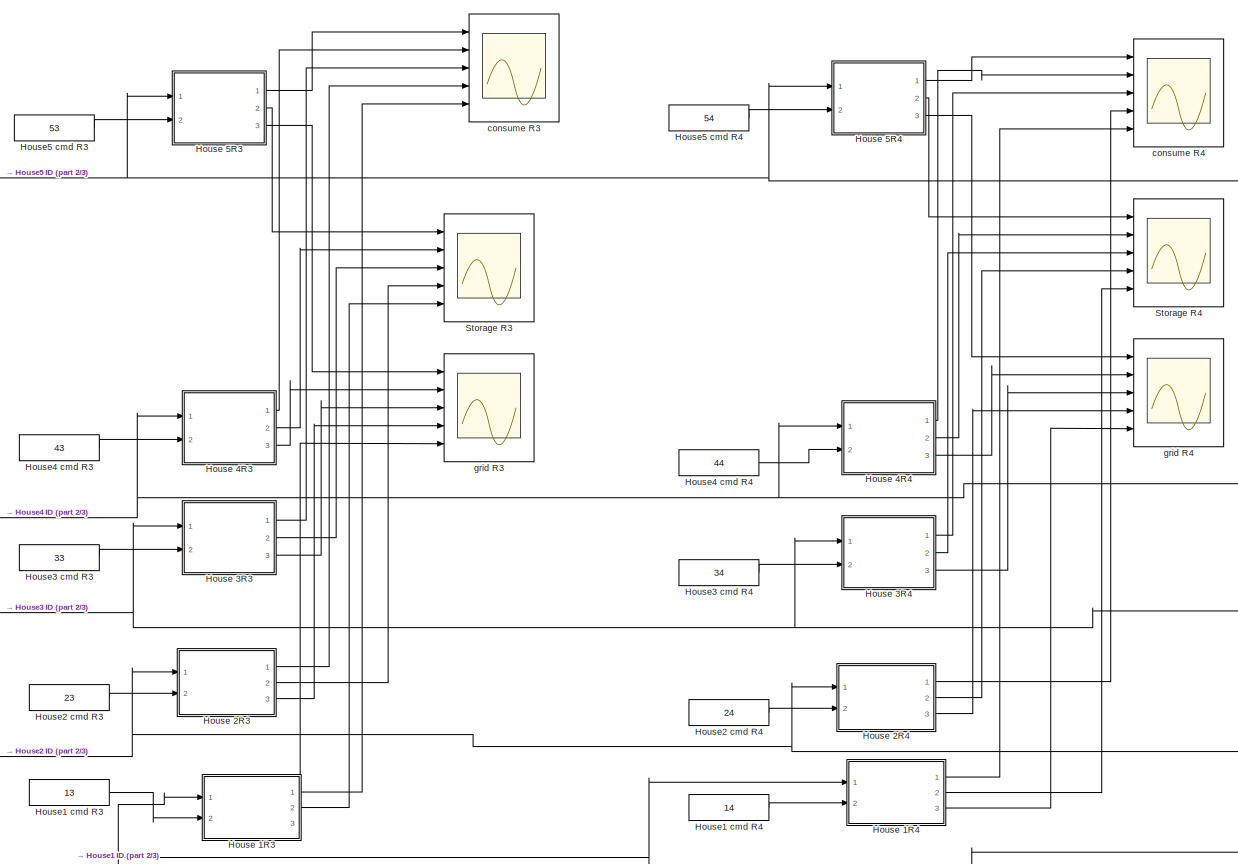
[diagram: root canvas - part 1/3, center side, full height]
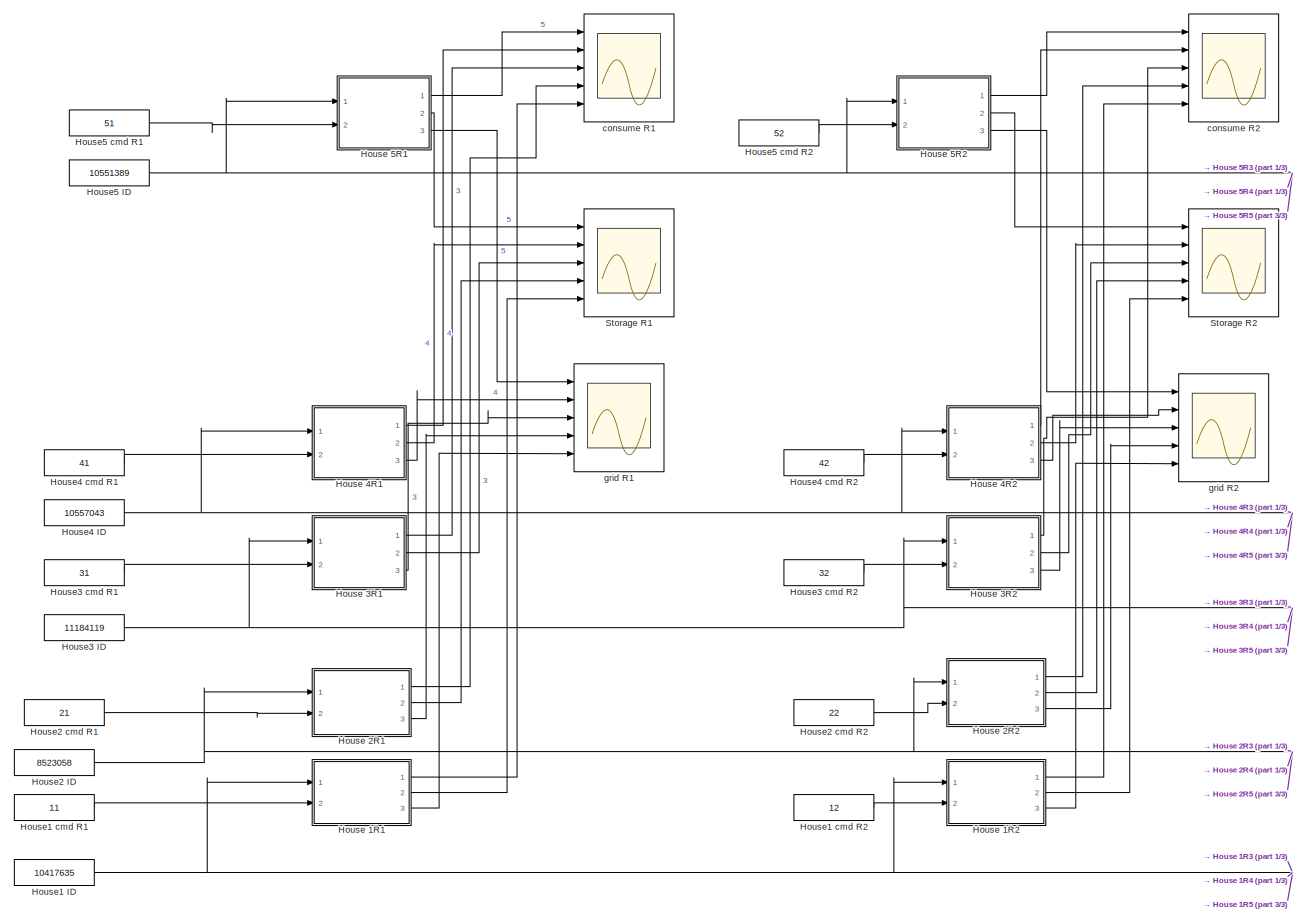
[diagram: root canvas - part 2/3, left side, full height]
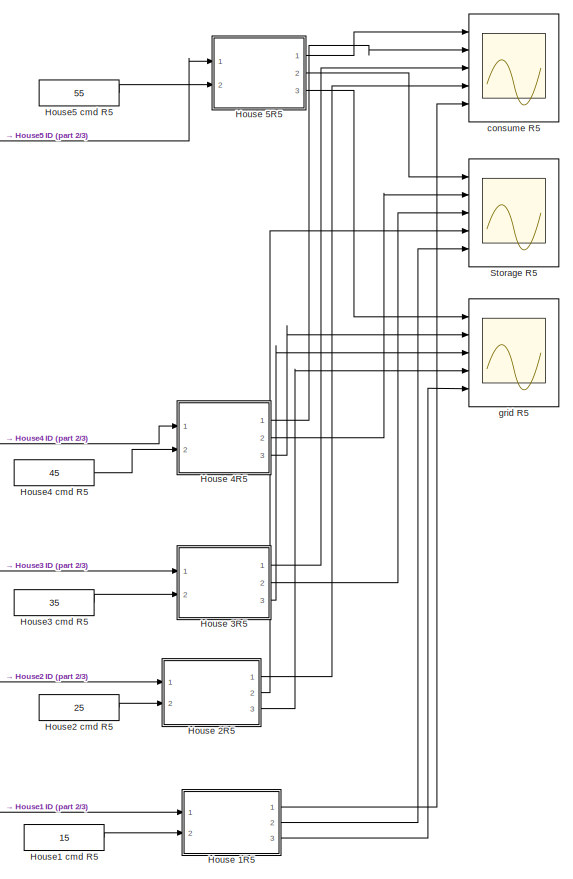
[diagram: root canvas - part 3/3, right side, full height]
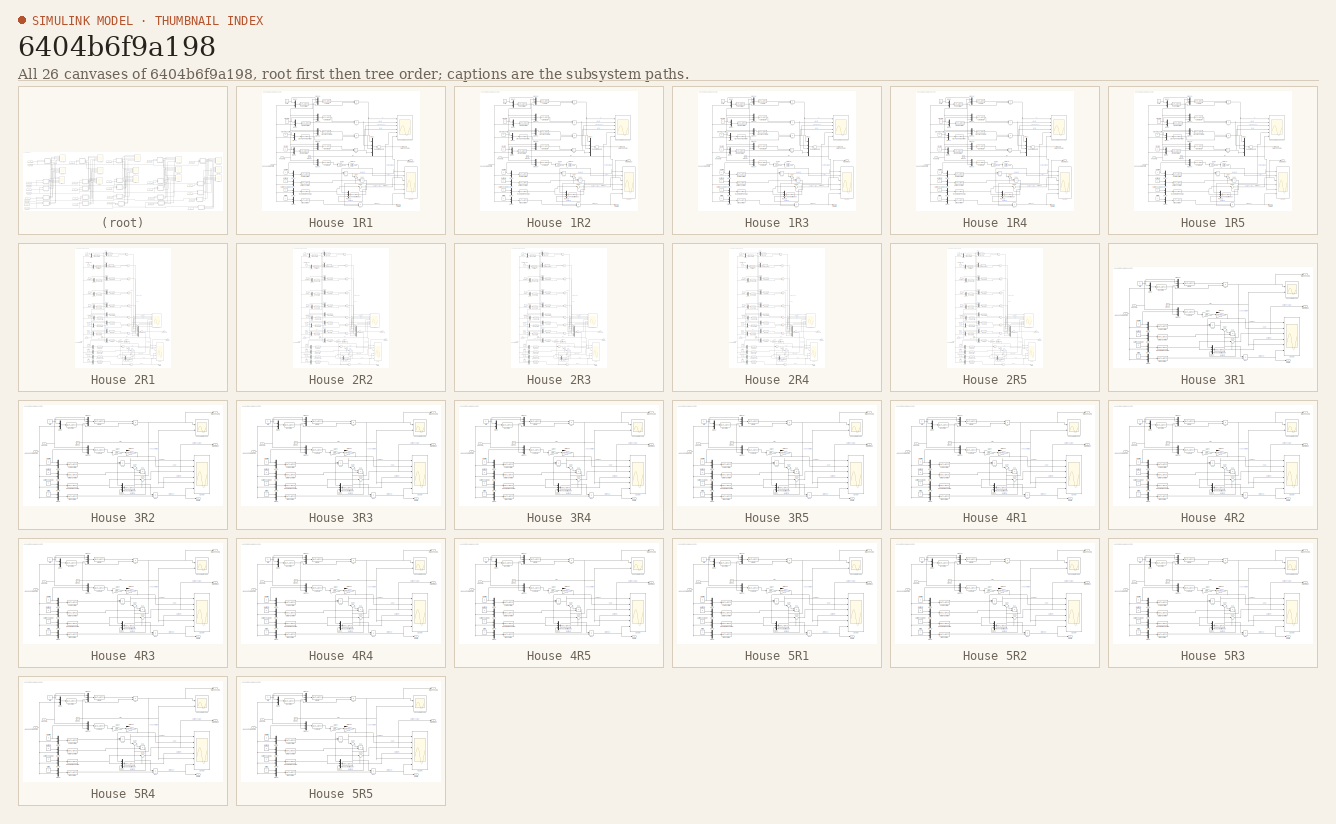
[diagram: thumbnail index - all 26 canvases of the model, root first then tree order]
MODEL slx_6404b6f9a198
KIND model
CONFIG AbsTol = auto
CONFIG EnableMultiTasking = off
CONFIG FixedStep = auto
CONFIG MaxStep = 60
CONFIG MinStep = auto
CONFIG PreLoadFcn = load('solar_load_data_24h.mat')
CONFIG RelTol = 1e-4
CONFIG SampleTimeConstraint = Unconstrained
CONFIG Solver = ode23tb
CONFIG SolverName = ode23tb
CONFIG StartTime = 0.0
CONFIG StopTime = 24*60*60
BLOCK [SubSystem] House 1R1
  Ports = [2, 3]
  RequestExecContextInheritance = off
BLOCK [Constant] House 1R1/Battery Charge ID
  Value = 2
BLOCK [MATLABFcn] House 1R1/Battery Controller
  MATLABFcn = ControllerFunc
  OutputSignalType = real
  Ports = [1, 1]
BLOCK [Constant] House 1R1/Battery ID
  Value = 3
BLOCK [Clock] House 1R1/Clock1
  Decimation = 1
BLOCK [Scope] House 1R1/Consumer Scope1R1
  Floating = off
  NumInputPorts = 6
  Ports = [6]
  ScopeSpecificationString = Simulink.scopes.TimeScopeBlockCfg('CurrentConfiguration', extmgr.ConfigurationSet(extmgr.Configuration('Core','General UI',true),extmgr.Configuration('Core','Source UI',true),extmgr.Configuration('Sources','WiredSimulink',true,'DataLoggingVariableName','ConsumeDataH1R1','DataLogging',true,'DataLoggingSaveFormat','StructureWithTime'),extmgr.Configuration('Visuals','Time Domain',true,'SerializedDisp...<+4846ch>
BLOCK [MATLABFcn] House 1R1/DishWasher Data
  MATLABFcn = LookupTable
  OutputSignalType = real
  Ports = [1, 1]
BLOCK [Constant] House 1R1/DishWasher ID
  Value = 6
BLOCK [MATLABFcn] House 1R1/Dishwasher Controller
  MATLABFcn = ControllerFunc
  OutputSignalType = real
  Ports = [1, 1]
BLOCK [MATLABFcn] House 1R1/Dryer Controller
  MATLABFcn = ControllerFunc
  OutputSignalType = real
  Ports = [1, 1]
BLOCK [MATLABFcn] House 1R1/Dryer Data
  MATLABFcn = LookupTable
  OutputSignalType = real
  Ports = [1, 1]
BLOCK [Constant] House 1R1/Dryer ID
  Value = 5
BLOCK [Gain] House 1R1/Gain10
  Gain = sqrt(2)
  OutDataTypeStr = Inherit: Inherit via internal rule
  ParamDataTypeStr = Inherit: Inherit via internal rule
  SaturateOnIntegerOverflow = off
BLOCK [Gain] House 1R1/Gain4
  Gain = 1/400
  OutDataTypeStr = Inherit: Inherit via internal rule
  ParamDataTypeStr = Inherit: Inherit via internal rule
  SaturateOnIntegerOverflow = off
BLOCK [Constant] House 1R1/Grid ID
BLOCK [Inport] House 1R1/House CommandID
  IconDisplay = Port number
  Port = 2
BLOCK [Inport] House 1R1/House ID
  IconDisplay = Port number
BLOCK [MATLABFcn] House 1R1/Light Controller
  MATLABFcn = ControllerFunc
  OutputSignalType = real
  Ports = [1, 1]
BLOCK [MATLABFcn] House 1R1/Light Data
  MATLABFcn = LookupTable
  OutputSignalType = real
  Ports = [1, 1]
BLOCK [Constant] House 1R1/Lights ID
  Value = 7
BLOCK [Mux] House 1R1/Mux1
  DisplayOption = bar
  Ports = [4, 1]
BLOCK [Mux] House 1R1/Mux10
  DisplayOption = bar
  Inputs = 3
  Ports = [3, 1]
BLOCK [Mux] House 1R1/Mux11
  DisplayOption = bar
  Inputs = 3
  Ports = [3, 1]
BLOCK [Mux] House 1R1/Mux12
  DisplayOption = bar
  Inputs = 3
  Ports = [3, 1]
BLOCK [Mux] House 1R1/Mux13
  DisplayOption = bar
  Inputs = 3
  Ports = [3, 1]
BLOCK [Mux] House 1R1/Mux14
  DisplayOption = bar
  Inputs = 3
  Ports = [3, 1]
BLOCK [Mux] House 1R1/Mux2
  DisplayOption = bar
  Inputs = 2
  Ports = [2, 1]
BLOCK [Mux] House 1R1/Mux23
  DisplayOption = bar
  Inputs = 3
  Ports = [3, 1]
BLOCK [Mux] House 1R1/Mux3
  DisplayOption = bar
  Inputs = 2
  Ports = [2, 1]
BLOCK [Mux] House 1R1/Mux4
  DisplayOption = bar
  Inputs = 2
  Ports = [2, 1]
BLOCK [Mux] House 1R1/Mux5
  DisplayOption = bar
  Inputs = 2
  Ports = [2, 1]
BLOCK [Mux] House 1R1/Mux6
  DisplayOption = bar
  Inputs = 2
  Ports = [2, 1]
BLOCK [Mux] House 1R1/Mux7
  DisplayOption = bar
  Inputs = 2
  Ports = [2, 1]
BLOCK [Mux] House 1R1/Mux8
  DisplayOption = bar
  Inputs = 2
  Ports = [2, 1]
BLOCK [Mux] House 1R1/Mux9
  DisplayOption = bar
  Inputs = 2
  Ports = [2, 1]
BLOCK [MATLABFcn] House 1R1/ProcessBatteryOut
  MATLABFcn = ProcessBatteryOutHFunc
  OutputSignalType = real
  Ports = [1, 1]
BLOCK [MATLABFcn] House 1R1/Read Batery Charge
  MATLABFcn = ControllerFunc
  OutputSignalType = real
  Ports = [1, 1]
BLOCK [Scope] House 1R1/Scope
  Floating = off
  NumInputPorts = 6
  Ports = [6]
  ScopeSpecificationString = Simulink.scopes.TimeScopeBlockCfg('CurrentConfiguration', extmgr.ConfigurationSet(extmgr.Configuration('Core','General UI',true),extmgr.Configuration('Core','Source UI',true),extmgr.Configuration('Sources','WiredSimulink',true,'DataLoggingVariableName','LinkDataH1R1','DataLogging',true,'DataLoggingSaveFormat','StructureWithTime'),extmgr.Configuration('Visuals','Time Domain',true,'SerializedDisplay...<+4765ch>
BLOCK [MATLABFcn] House 1R1/Solar Controller
  MATLABFcn = ControllerFunc
  OutputSignalType = real
  Ports = [1, 1]
BLOCK [MATLABFcn] House 1R1/Solar Data
  MATLABFcn = LookupTable
  OutputSignalType = real
  Ports = [1, 1]
BLOCK [Constant] House 1R1/Solar ID
  Value = 4
BLOCK [Sum] House 1R1/Sum
  IconShape = round
  InputSameDT = off
  Inputs = |+-
  OutDataTypeStr = Inherit: Inherit via internal rule
  Ports = [2, 1]
  SaturateOnIntegerOverflow = off
BLOCK [Sum] House 1R1/Sum of Elements
  InputSameDT = off
  Inputs = +
  OutDataTypeStr = Inherit: Inherit via internal rule
  Ports = [1, 1]
  SaturateOnIntegerOverflow = off
BLOCK [Sum] House 1R1/Sum1
  IconShape = round
  InputSameDT = off
  Inputs = |++
  OutDataTypeStr = Inherit: Inherit via internal rule
  Ports = [2, 1]
  SaturateOnIntegerOverflow = off
BLOCK [MATLABFcn] House 1R1/TV Controller
  MATLABFcn = ControllerFunc
  OutputSignalType = real
  Ports = [1, 1]
BLOCK [MATLABFcn] House 1R1/TV Data
  MATLABFcn = LookupTable
  OutputSignalType = real
  Ports = [1, 1]
BLOCK [Constant] House 1R1/TV ID
  Value = 8
BLOCK [MATLABFcn] House 1R1/grid Controller
  MATLABFcn = ControllerFunc
  OutputSignalType = real
  Ports = [1, 1]
BLOCK [Product] House 1R1/p1
  InputSameDT = off
  OutDataTypeStr = Inherit: Inherit via internal rule
  Ports = [2, 1]
  RndMeth = Floor
  SaturateOnIntegerOverflow = off
BLOCK [Product] House 1R1/p15
  InputSameDT = off
  OutDataTypeStr = Inherit: Inherit via internal rule
  Ports = [2, 1]
  RndMeth = Floor
  SaturateOnIntegerOverflow = off
BLOCK [Product] House 1R1/p16
  InputSameDT = off
  OutDataTypeStr = Inherit: Inherit via internal rule
  Ports = [2, 1]
  RndMeth = Floor
  SaturateOnIntegerOverflow = off
BLOCK [Product] House 1R1/p17
  InputSameDT = off
  OutDataTypeStr = Inherit: Inherit via internal rule
  Ports = [2, 1]
  RndMeth = Floor
  SaturateOnIntegerOverflow = off
BLOCK [Product] House 1R1/p2
  InputSameDT = off
  OutDataTypeStr = Inherit: Inherit via internal rule
  Ports = [2, 1]
  RndMeth = Floor
  SaturateOnIntegerOverflow = off
BLOCK [Product] House 1R1/p3
  InputSameDT = off
  OutDataTypeStr = Inherit: Inherit via internal rule
  Ports = [2, 1]
  RndMeth = Floor
  SaturateOnIntegerOverflow = off
BLOCK [Product] House 1R1/p4
  InputSameDT = off
  OutDataTypeStr = Inherit: Inherit via internal rule
  Ports = [2, 1]
  RndMeth = Floor
  SaturateOnIntegerOverflow = off
BLOCK [Outport] House 1R1/total consume
  IconDisplay = Port number
BLOCK [Outport] House 1R1/total grid
  IconDisplay = Port number
  Port = 3
BLOCK [Outport] House 1R1/total storage
  IconDisplay = Port number
  Port = 2
BLOCK [SubSystem] House 1R2
  Ports = [2, 3]
  RequestExecContextInheritance = off
BLOCK [Constant] House 1R2/Battery Charge ID
  Value = 2
BLOCK [MATLABFcn] House 1R2/Battery Controller
  MATLABFcn = ControllerFunc
  OutputSignalType = real
  Ports = [1, 1]
BLOCK [Constant] House 1R2/Battery ID
  Value = 3
BLOCK [Clock] House 1R2/Clock1
  Decimation = 1
BLOCK [Scope] House 1R2/Consumer Scope1R1
  Floating = off
  NumInputPorts = 6
  Ports = [6]
  ScopeSpecificationString = Simulink.scopes.TimeScopeBlockCfg('CurrentConfiguration', extmgr.ConfigurationSet(extmgr.Configuration('Core','General UI',true),extmgr.Configuration('Core','Source UI',true),extmgr.Configuration('Sources','WiredSimulink',true,'DataLoggingVariableName','ConsumeDataH1R2','DataLogging',true,'DataLoggingSaveFormat','StructureWithTime'),extmgr.Configuration('Visuals','Time Domain',true,'SerializedDisp...<+4846ch>
BLOCK [MATLABFcn] House 1R2/DishWasher Data
  MATLABFcn = LookupTable
  OutputSignalType = real
  Ports = [1, 1]
BLOCK [Constant] House 1R2/DishWasher ID
  Value = 6
BLOCK [MATLABFcn] House 1R2/Dishwasher Controller
  MATLABFcn = ControllerFunc
  OutputSignalType = real
  Ports = [1, 1]
BLOCK [MATLABFcn] House 1R2/Dryer Controller
  MATLABFcn = ControllerFunc
  OutputSignalType = real
  Ports = [1, 1]
BLOCK [MATLABFcn] House 1R2/Dryer Data
  MATLABFcn = LookupTable
  OutputSignalType = real
  Ports = [1, 1]
BLOCK [Constant] House 1R2/Dryer ID
  Value = 5
BLOCK [Gain] House 1R2/Gain10
  Gain = sqrt(2)
  OutDataTypeStr = Inherit: Inherit via internal rule
  ParamDataTypeStr = Inherit: Inherit via internal rule
  SaturateOnIntegerOverflow = off
BLOCK [Gain] House 1R2/Gain4
  Gain = 1/400
  OutDataTypeStr = Inherit: Inherit via internal rule
  ParamDataTypeStr = Inherit: Inherit via internal rule
  SaturateOnIntegerOverflow = off
BLOCK [Constant] House 1R2/Grid ID
BLOCK [Inport] House 1R2/House CommandID
  IconDisplay = Port number
  Port = 2
BLOCK [Inport] House 1R2/House ID
  IconDisplay = Port number
BLOCK [MATLABFcn] House 1R2/Light Controller
  MATLABFcn = ControllerFunc
  OutputSignalType = real
  Ports = [1, 1]
BLOCK [MATLABFcn] House 1R2/Light Data
  MATLABFcn = LookupTable
  OutputSignalType = real
  Ports = [1, 1]
BLOCK [Constant] House 1R2/Lights ID
  Value = 7
BLOCK [Mux] House 1R2/Mux1
  DisplayOption = bar
  Ports = [4, 1]
BLOCK [Mux] House 1R2/Mux10
  DisplayOption = bar
  Inputs = 3
  Ports = [3, 1]
BLOCK [Mux] House 1R2/Mux11
  DisplayOption = bar
  Inputs = 3
  Ports = [3, 1]
BLOCK [Mux] House 1R2/Mux12
  DisplayOption = bar
  Inputs = 3
  Ports = [3, 1]
BLOCK [Mux] House 1R2/Mux13
  DisplayOption = bar
  Inputs = 3
  Ports = [3, 1]
BLOCK [Mux] House 1R2/Mux14
  DisplayOption = bar
  Inputs = 3
  Ports = [3, 1]
BLOCK [Mux] House 1R2/Mux2
  DisplayOption = bar
  Inputs = 2
  Ports = [2, 1]
BLOCK [Mux] House 1R2/Mux23
  DisplayOption = bar
  Inputs = 3
  Ports = [3, 1]
BLOCK [Mux] House 1R2/Mux3
  DisplayOption = bar
  Inputs = 2
  Ports = [2, 1]
BLOCK [Mux] House 1R2/Mux4
  DisplayOption = bar
  Inputs = 2
  Ports = [2, 1]
BLOCK [Mux] House 1R2/Mux5
  DisplayOption = bar
  Inputs = 2
  Ports = [2, 1]
BLOCK [Mux] House 1R2/Mux6
  DisplayOption = bar
  Inputs = 2
  Ports = [2, 1]
BLOCK [Mux] House 1R2/Mux7
  DisplayOption = bar
  Inputs = 2
  Ports = [2, 1]
BLOCK [Mux] House 1R2/Mux8
  DisplayOption = bar
  Inputs = 2
  Ports = [2, 1]
BLOCK [Mux] House 1R2/Mux9
  DisplayOption = bar
  Inputs = 2
  Ports = [2, 1]
BLOCK [MATLABFcn] House 1R2/ProcessBatteryOut
  MATLABFcn = ProcessBatteryOutHFunc
  OutputSignalType = real
  Ports = [1, 1]
BLOCK [MATLABFcn] House 1R2/Read Batery Charge
  MATLABFcn = ControllerFunc
  OutputSignalType = real
  Ports = [1, 1]
BLOCK [Scope] House 1R2/Scope
  Floating = off
  NumInputPorts = 6
  Ports = [6]
  ScopeSpecificationString = Simulink.scopes.TimeScopeBlockCfg('CurrentConfiguration', extmgr.ConfigurationSet(extmgr.Configuration('Core','General UI',true),extmgr.Configuration('Core','Source UI',true),extmgr.Configuration('Sources','WiredSimulink',true,'DataLoggingVariableName','LinkDataH1R2','DataLogging',true,'DataLoggingSaveFormat','StructureWithTime'),extmgr.Configuration('Visuals','Time Domain',true,'SerializedDisplay...<+4764ch>
BLOCK [MATLABFcn] House 1R2/Solar Controller
  MATLABFcn = ControllerFunc
  OutputSignalType = real
  Ports = [1, 1]
BLOCK [MATLABFcn] House 1R2/Solar Data
  MATLABFcn = LookupTable
  OutputSignalType = real
  Ports = [1, 1]
BLOCK [Constant] House 1R2/Solar ID
  Value = 4
BLOCK [Sum] House 1R2/Sum
  IconShape = round
  InputSameDT = off
  Inputs = |+-
  OutDataTypeStr = Inherit: Inherit via internal rule
  Ports = [2, 1]
  SaturateOnIntegerOverflow = off
BLOCK [Sum] House 1R2/Sum of Elements
  InputSameDT = off
  Inputs = +
  OutDataTypeStr = Inherit: Inherit via internal rule
  Ports = [1, 1]
  SaturateOnIntegerOverflow = off
BLOCK [Sum] House 1R2/Sum1
  IconShape = round
  InputSameDT = off
  Inputs = |++
  OutDataTypeStr = Inherit: Inherit via internal rule
  Ports = [2, 1]
  SaturateOnIntegerOverflow = off
BLOCK [MATLABFcn] House 1R2/TV Controller
  MATLABFcn = ControllerFunc
  OutputSignalType = real
  Ports = [1, 1]
BLOCK [MATLABFcn] House 1R2/TV Data
  MATLABFcn = LookupTable
  OutputSignalType = real
  Ports = [1, 1]
BLOCK [Constant] House 1R2/TV ID
  Value = 8
BLOCK [MATLABFcn] House 1R2/grid Controller
  MATLABFcn = ControllerFunc
  OutputSignalType = real
  Ports = [1, 1]
BLOCK [Product] House 1R2/p1
  InputSameDT = off
  OutDataTypeStr = Inherit: Inherit via internal rule
  Ports = [2, 1]
  RndMeth = Floor
  SaturateOnIntegerOverflow = off
BLOCK [Product] House 1R2/p15
  InputSameDT = off
  OutDataTypeStr = Inherit: Inherit via internal rule
  Ports = [2, 1]
  RndMeth = Floor
  SaturateOnIntegerOverflow = off
BLOCK [Product] House 1R2/p16
  InputSameDT = off
  OutDataTypeStr = Inherit: Inherit via internal rule
  Ports = [2, 1]
  RndMeth = Floor
  SaturateOnIntegerOverflow = off
BLOCK [Product] House 1R2/p17
  InputSameDT = off
  OutDataTypeStr = Inherit: Inherit via internal rule
  Ports = [2, 1]
  RndMeth = Floor
  SaturateOnIntegerOverflow = off
BLOCK [Product] House 1R2/p2
  InputSameDT = off
  OutDataTypeStr = Inherit: Inherit via internal rule
  Ports = [2, 1]
  RndMeth = Floor
  SaturateOnIntegerOverflow = off
BLOCK [Product] House 1R2/p3
  InputSameDT = off
  OutDataTypeStr = Inherit: Inherit via internal rule
  Ports = [2, 1]
  RndMeth = Floor
  SaturateOnIntegerOverflow = off
BLOCK [Product] House 1R2/p4
  InputSameDT = off
  OutDataTypeStr = Inherit: Inherit via internal rule
  Ports = [2, 1]
  RndMeth = Floor
  SaturateOnIntegerOverflow = off
BLOCK [Outport] House 1R2/total consume
  IconDisplay = Port number
BLOCK [Outport] House 1R2/total grid
  IconDisplay = Port number
  Port = 3
BLOCK [Outport] House 1R2/total storage
  IconDisplay = Port number
  Port = 2
BLOCK [SubSystem] House 1R3
  Ports = [2, 3]
  RequestExecContextInheritance = off
BLOCK [Constant] House 1R3/Battery Charge ID
  Value = 2
BLOCK [MATLABFcn] House 1R3/Battery Controller
  MATLABFcn = ControllerFunc
  OutputSignalType = real
  Ports = [1, 1]
BLOCK [Constant] House 1R3/Battery ID
  Value = 3
BLOCK [Clock] House 1R3/Clock1
  Decimation = 1
BLOCK [Scope] House 1R3/Consumer Scope1R1
  Floating = off
  NumInputPorts = 6
  Ports = [6]
  ScopeSpecificationString = Simulink.scopes.TimeScopeBlockCfg('CurrentConfiguration', extmgr.ConfigurationSet(extmgr.Configuration('Core','General UI',true),extmgr.Configuration('Core','Source UI',true),extmgr.Configuration('Sources','WiredSimulink',true,'DataLoggingVariableName','ConsumeDataH1R3','DataLogging',true,'DataLoggingSaveFormat','StructureWithTime'),extmgr.Configuration('Visuals','Time Domain',true,'SerializedDisp...<+4846ch>
BLOCK [MATLABFcn] House 1R3/DishWasher Data
  MATLABFcn = LookupTable
  OutputSignalType = real
  Ports = [1, 1]
BLOCK [Constant] House 1R3/DishWasher ID
  Value = 6
BLOCK [MATLABFcn] House 1R3/Dishwasher Controller
  MATLABFcn = ControllerFunc
  OutputSignalType = real
  Ports = [1, 1]
BLOCK [MATLABFcn] House 1R3/Dryer Controller
  MATLABFcn = ControllerFunc
  OutputSignalType = real
  Ports = [1, 1]
BLOCK [MATLABFcn] House 1R3/Dryer Data
  MATLABFcn = LookupTable
  OutputSignalType = real
  Ports = [1, 1]
BLOCK [Constant] House 1R3/Dryer ID
  Value = 5
BLOCK [Gain] House 1R3/Gain10
  Gain = sqrt(2)
  OutDataTypeStr = Inherit: Inherit via internal rule
  ParamDataTypeStr = Inherit: Inherit via internal rule
  SaturateOnIntegerOverflow = off
BLOCK [Gain] House 1R3/Gain4
  Gain = 1/400
  OutDataTypeStr = Inherit: Inherit via internal rule
  ParamDataTypeStr = Inherit: Inherit via internal rule
  SaturateOnIntegerOverflow = off
BLOCK [Constant] House 1R3/Grid ID
BLOCK [Inport] House 1R3/House CommandID
  IconDisplay = Port number
  Port = 2
BLOCK [Inport] House 1R3/House ID
  IconDisplay = Port number
BLOCK [MATLABFcn] House 1R3/Light Controller
  MATLABFcn = ControllerFunc
  OutputSignalType = real
  Ports = [1, 1]
BLOCK [MATLABFcn] House 1R3/Light Data
  MATLABFcn = LookupTable
  OutputSignalType = real
  Ports = [1, 1]
BLOCK [Constant] House 1R3/Lights ID
  Value = 7
BLOCK [Mux] House 1R3/Mux1
  DisplayOption = bar
  Ports = [4, 1]
BLOCK [Mux] House 1R3/Mux10
  DisplayOption = bar
  Inputs = 3
  Ports = [3, 1]
BLOCK [Mux] House 1R3/Mux11
  DisplayOption = bar
  Inputs = 3
  Ports = [3, 1]
BLOCK [Mux] House 1R3/Mux12
  DisplayOption = bar
  Inputs = 3
  Ports = [3, 1]
BLOCK [Mux] House 1R3/Mux13
  DisplayOption = bar
  Inputs = 3
  Ports = [3, 1]
BLOCK [Mux] House 1R3/Mux14
  DisplayOption = bar
  Inputs = 3
  Ports = [3, 1]
BLOCK [Mux] House 1R3/Mux2
  DisplayOption = bar
  Inputs = 2
  Ports = [2, 1]
BLOCK [Mux] House 1R3/Mux23
  DisplayOption = bar
  Inputs = 3
  Ports = [3, 1]
BLOCK [Mux] House 1R3/Mux3
  DisplayOption = bar
  Inputs = 2
  Ports = [2, 1]
BLOCK [Mux] House 1R3/Mux4
  DisplayOption = bar
  Inputs = 2
  Ports = [2, 1]
BLOCK [Mux] House 1R3/Mux5
  DisplayOption = bar
  Inputs = 2
  Ports = [2, 1]
BLOCK [Mux] House 1R3/Mux6
  DisplayOption = bar
  Inputs = 2
  Ports = [2, 1]
BLOCK [Mux] House 1R3/Mux7
  DisplayOption = bar
  Inputs = 2
  Ports = [2, 1]
BLOCK [Mux] House 1R3/Mux8
  DisplayOption = bar
  Inputs = 2
  Ports = [2, 1]
BLOCK [Mux] House 1R3/Mux9
  DisplayOption = bar
  Inputs = 2
  Ports = [2, 1]
BLOCK [MATLABFcn] House 1R3/ProcessBatteryOut
  MATLABFcn = ProcessBatteryOutHFunc
  OutputSignalType = real
  Ports = [1, 1]
BLOCK [MATLABFcn] House 1R3/Read Batery Charge
  MATLABFcn = ControllerFunc
  OutputSignalType = real
  Ports = [1, 1]
BLOCK [Scope] House 1R3/Scope
  Floating = off
  NumInputPorts = 6
  Ports = [6]
  ScopeSpecificationString = Simulink.scopes.TimeScopeBlockCfg('CurrentConfiguration', extmgr.ConfigurationSet(extmgr.Configuration('Core','General UI',true),extmgr.Configuration('Core','Source UI',true),extmgr.Configuration('Sources','WiredSimulink',true,'DataLoggingVariableName','LinkDataH1R3','DataLogging',true,'DataLoggingSaveFormat','StructureWithTime'),extmgr.Configuration('Visuals','Time Domain',true,'SerializedDisplay...<+4764ch>
BLOCK [MATLABFcn] House 1R3/Solar Controller
  MATLABFcn = ControllerFunc
  OutputSignalType = real
  Ports = [1, 1]
BLOCK [MATLABFcn] House 1R3/Solar Data
  MATLABFcn = LookupTable
  OutputSignalType = real
  Ports = [1, 1]
BLOCK [Constant] House 1R3/Solar ID
  Value = 4
BLOCK [Sum] House 1R3/Sum
  IconShape = round
  InputSameDT = off
  Inputs = |+-
  OutDataTypeStr = Inherit: Inherit via internal rule
  Ports = [2, 1]
  SaturateOnIntegerOverflow = off
BLOCK [Sum] House 1R3/Sum of Elements
  InputSameDT = off
  Inputs = +
  OutDataTypeStr = Inherit: Inherit via internal rule
  Ports = [1, 1]
  SaturateOnIntegerOverflow = off
BLOCK [Sum] House 1R3/Sum1
  IconShape = round
  InputSameDT = off
  Inputs = |++
  OutDataTypeStr = Inherit: Inherit via internal rule
  Ports = [2, 1]
  SaturateOnIntegerOverflow = off
BLOCK [MATLABFcn] House 1R3/TV Controller
  MATLABFcn = ControllerFunc
  OutputSignalType = real
  Ports = [1, 1]
BLOCK [MATLABFcn] House 1R3/TV Data
  MATLABFcn = LookupTable
  OutputSignalType = real
  Ports = [1, 1]
BLOCK [Constant] House 1R3/TV ID
  Value = 8
BLOCK [MATLABFcn] House 1R3/grid Controller
  MATLABFcn = ControllerFunc
  OutputSignalType = real
  Ports = [1, 1]
BLOCK [Product] House 1R3/p1
  InputSameDT = off
  OutDataTypeStr = Inherit: Inherit via internal rule
  Ports = [2, 1]
  RndMeth = Floor
  SaturateOnIntegerOverflow = off
BLOCK [Product] House 1R3/p15
  InputSameDT = off
  OutDataTypeStr = Inherit: Inherit via internal rule
  Ports = [2, 1]
  RndMeth = Floor
  SaturateOnIntegerOverflow = off
BLOCK [Product] House 1R3/p16
  InputSameDT = off
  OutDataTypeStr = Inherit: Inherit via internal rule
  Ports = [2, 1]
  RndMeth = Floor
  SaturateOnIntegerOverflow = off
BLOCK [Product] House 1R3/p17
  InputSameDT = off
  OutDataTypeStr = Inherit: Inherit via internal rule
  Ports = [2, 1]
  RndMeth = Floor
  SaturateOnIntegerOverflow = off
BLOCK [Product] House 1R3/p2
  InputSameDT = off
  OutDataTypeStr = Inherit: Inherit via internal rule
  Ports = [2, 1]
  RndMeth = Floor
  SaturateOnIntegerOverflow = off
BLOCK [Product] House 1R3/p3
  InputSameDT = off
  OutDataTypeStr = Inherit: Inherit via internal rule
  Ports = [2, 1]
  RndMeth = Floor
  SaturateOnIntegerOverflow = off
BLOCK [Product] House 1R3/p4
  InputSameDT = off
  OutDataTypeStr = Inherit: Inherit via internal rule
  Ports = [2, 1]
  RndMeth = Floor
  SaturateOnIntegerOverflow = off
BLOCK [Outport] House 1R3/total consume
  IconDisplay = Port number
BLOCK [Outport] House 1R3/total grid
  IconDisplay = Port number
  Port = 3
BLOCK [Outport] House 1R3/total storage
  IconDisplay = Port number
  Port = 2
BLOCK [SubSystem] House 1R4
  Ports = [2, 3]
  RequestExecContextInheritance = off
BLOCK [Constant] House 1R4/Battery Charge ID
  Value = 2
BLOCK [MATLABFcn] House 1R4/Battery Controller
  MATLABFcn = ControllerFunc
  OutputSignalType = real
  Ports = [1, 1]
BLOCK [Constant] House 1R4/Battery ID
  Value = 3
BLOCK [Clock] House 1R4/Clock1
  Decimation = 1
BLOCK [Scope] House 1R4/Consumer Scope1R1
  Floating = off
  NumInputPorts = 6
  Ports = [6]
  ScopeSpecificationString = Simulink.scopes.TimeScopeBlockCfg('CurrentConfiguration', extmgr.ConfigurationSet(extmgr.Configuration('Core','General UI',true),extmgr.Configuration('Core','Source UI',true),extmgr.Configuration('Sources','WiredSimulink',true,'DataLoggingVariableName','ConsumeDataH1R4','DataLogging',true,'DataLoggingSaveFormat','StructureWithTime'),extmgr.Configuration('Visuals','Time Domain',true,'SerializedDisp...<+4846ch>
BLOCK [MATLABFcn] House 1R4/DishWasher Data
  MATLABFcn = LookupTable
  OutputSignalType = real
  Ports = [1, 1]
BLOCK [Constant] House 1R4/DishWasher ID
  Value = 6
BLOCK [MATLABFcn] House 1R4/Dishwasher Controller
  MATLABFcn = ControllerFunc
  OutputSignalType = real
  Ports = [1, 1]
BLOCK [MATLABFcn] House 1R4/Dryer Controller
  MATLABFcn = ControllerFunc
  OutputSignalType = real
  Ports = [1, 1]
BLOCK [MATLABFcn] House 1R4/Dryer Data
  MATLABFcn = LookupTable
  OutputSignalType = real
  Ports = [1, 1]
BLOCK [Constant] House 1R4/Dryer ID
  Value = 5
BLOCK [Gain] House 1R4/Gain10
  Gain = sqrt(2)
  OutDataTypeStr = Inherit: Inherit via internal rule
  ParamDataTypeStr = Inherit: Inherit via internal rule
  SaturateOnIntegerOverflow = off
BLOCK [Gain] House 1R4/Gain4
  Gain = 1/400
  OutDataTypeStr = Inherit: Inherit via internal rule
  ParamDataTypeStr = Inherit: Inherit via internal rule
  SaturateOnIntegerOverflow = off
BLOCK [Constant] House 1R4/Grid ID
BLOCK [Inport] House 1R4/House CommandID
  IconDisplay = Port number
  Port = 2
BLOCK [Inport] House 1R4/House ID
  IconDisplay = Port number
BLOCK [MATLABFcn] House 1R4/Light Controller
  MATLABFcn = ControllerFunc
  OutputSignalType = real
  Ports = [1, 1]
BLOCK [MATLABFcn] House 1R4/Light Data
  MATLABFcn = LookupTable
  OutputSignalType = real
  Ports = [1, 1]
BLOCK [Constant] House 1R4/Lights ID
  Value = 7
BLOCK [Mux] House 1R4/Mux1
  DisplayOption = bar
  Ports = [4, 1]
BLOCK [Mux] House 1R4/Mux10
  DisplayOption = bar
  Inputs = 3
  Ports = [3, 1]
BLOCK [Mux] House 1R4/Mux11
  DisplayOption = bar
  Inputs = 3
  Ports = [3, 1]
BLOCK [Mux] House 1R4/Mux12
  DisplayOption = bar
  Inputs = 3
  Ports = [3, 1]
BLOCK [Mux] House 1R4/Mux13
  DisplayOption = bar
  Inputs = 3
  Ports = [3, 1]
BLOCK [Mux] House 1R4/Mux14
  DisplayOption = bar
  Inputs = 3
  Ports = [3, 1]
BLOCK [Mux] House 1R4/Mux2
  DisplayOption = bar
  Inputs = 2
  Ports = [2, 1]
BLOCK [Mux] House 1R4/Mux23
  DisplayOption = bar
  Inputs = 3
  Ports = [3, 1]
BLOCK [Mux] House 1R4/Mux3
  DisplayOption = bar
  Inputs = 2
  Ports = [2, 1]
BLOCK [Mux] House 1R4/Mux4
  DisplayOption = bar
  Inputs = 2
  Ports = [2, 1]
BLOCK [Mux] House 1R4/Mux5
  DisplayOption = bar
  Inputs = 2
  Ports = [2, 1]
BLOCK [Mux] House 1R4/Mux6
  DisplayOption = bar
  Inputs = 2
  Ports = [2, 1]
BLOCK [Mux] House 1R4/Mux7
  DisplayOption = bar
  Inputs = 2
  Ports = [2, 1]
BLOCK [Mux] House 1R4/Mux8
  DisplayOption = bar
  Inputs = 2
  Ports = [2, 1]
BLOCK [Mux] House 1R4/Mux9
  DisplayOption = bar
  Inputs = 2
  Ports = [2, 1]
BLOCK [MATLABFcn] House 1R4/ProcessBatteryOut
  MATLABFcn = ProcessBatteryOutHFunc
  OutputSignalType = real
  Ports = [1, 1]
BLOCK [MATLABFcn] House 1R4/Read Batery Charge
  MATLABFcn = ControllerFunc
  OutputSignalType = real
  Ports = [1, 1]
BLOCK [Scope] House 1R4/Scope
  Floating = off
  NumInputPorts = 6
  Ports = [6]
  ScopeSpecificationString = Simulink.scopes.TimeScopeBlockCfg('CurrentConfiguration', extmgr.ConfigurationSet(extmgr.Configuration('Core','General UI',true),extmgr.Configuration('Core','Source UI',true),extmgr.Configuration('Sources','WiredSimulink',true,'DataLoggingVariableName','LinkDataH1R4','DataLogging',true,'DataLoggingSaveFormat','StructureWithTime'),extmgr.Configuration('Visuals','Time Domain',true,'SerializedDisplay...<+4764ch>
BLOCK [MATLABFcn] House 1R4/Solar Controller
  MATLABFcn = ControllerFunc
  OutputSignalType = real
  Ports = [1, 1]
BLOCK [MATLABFcn] House 1R4/Solar Data
  MATLABFcn = LookupTable
  OutputSignalType = real
  Ports = [1, 1]
BLOCK [Constant] House 1R4/Solar ID
  Value = 4
BLOCK [Sum] House 1R4/Sum
  IconShape = round
  InputSameDT = off
  Inputs = |+-
  OutDataTypeStr = Inherit: Inherit via internal rule
  Ports = [2, 1]
  SaturateOnIntegerOverflow = off
BLOCK [Sum] House 1R4/Sum of Elements
  InputSameDT = off
  Inputs = +
  OutDataTypeStr = Inherit: Inherit via internal rule
  Ports = [1, 1]
  SaturateOnIntegerOverflow = off
BLOCK [Sum] House 1R4/Sum1
  IconShape = round
  InputSameDT = off
  Inputs = |++
  OutDataTypeStr = Inherit: Inherit via internal rule
  Ports = [2, 1]
  SaturateOnIntegerOverflow = off
BLOCK [MATLABFcn] House 1R4/TV Controller
  MATLABFcn = ControllerFunc
  OutputSignalType = real
  Ports = [1, 1]
BLOCK [MATLABFcn] House 1R4/TV Data
  MATLABFcn = LookupTable
  OutputSignalType = real
  Ports = [1, 1]
BLOCK [Constant] House 1R4/TV ID
  Value = 8
BLOCK [MATLABFcn] House 1R4/grid Controller
  MATLABFcn = ControllerFunc
  OutputSignalType = real
  Ports = [1, 1]
BLOCK [Product] House 1R4/p1
  InputSameDT = off
  OutDataTypeStr = Inherit: Inherit via internal rule
  Ports = [2, 1]
  RndMeth = Floor
  SaturateOnIntegerOverflow = off
BLOCK [Product] House 1R4/p15
  InputSameDT = off
  OutDataTypeStr = Inherit: Inherit via internal rule
  Ports = [2, 1]
  RndMeth = Floor
  SaturateOnIntegerOverflow = off
BLOCK [Product] House 1R4/p16
  InputSameDT = off
  OutDataTypeStr = Inherit: Inherit via internal rule
  Ports = [2, 1]
  RndMeth = Floor
  SaturateOnIntegerOverflow = off
BLOCK [Product] House 1R4/p17
  InputSameDT = off
  OutDataTypeStr = Inherit: Inherit via internal rule
  Ports = [2, 1]
  RndMeth = Floor
  SaturateOnIntegerOverflow = off
BLOCK [Product] House 1R4/p2
  InputSameDT = off
  OutDataTypeStr = Inherit: Inherit via internal rule
  Ports = [2, 1]
  RndMeth = Floor
  SaturateOnIntegerOverflow = off
BLOCK [Product] House 1R4/p3
  InputSameDT = off
  OutDataTypeStr = Inherit: Inherit via internal rule
  Ports = [2, 1]
  RndMeth = Floor
  SaturateOnIntegerOverflow = off
BLOCK [Product] House 1R4/p4
  InputSameDT = off
  OutDataTypeStr = Inherit: Inherit via internal rule
  Ports = [2, 1]
  RndMeth = Floor
  SaturateOnIntegerOverflow = off
BLOCK [Outport] House 1R4/total consume
  IconDisplay = Port number
BLOCK [Outport] House 1R4/total grid
  IconDisplay = Port number
  Port = 3
BLOCK [Outport] House 1R4/total storage
  IconDisplay = Port number
  Port = 2
BLOCK [SubSystem] House 1R5
  Ports = [2, 3]
  RequestExecContextInheritance = off
BLOCK [Constant] House 1R5/Battery Charge ID
  Value = 2
BLOCK [MATLABFcn] House 1R5/Battery Controller
  MATLABFcn = ControllerFunc
  OutputSignalType = real
  Ports = [1, 1]
BLOCK [Constant] House 1R5/Battery ID
  Value = 3
BLOCK [Clock] House 1R5/Clock1
  Decimation = 1
BLOCK [Scope] House 1R5/Consumer Scope1R1
  Floating = off
  NumInputPorts = 6
  Ports = [6]
  ScopeSpecificationString = Simulink.scopes.TimeScopeBlockCfg('CurrentConfiguration', extmgr.ConfigurationSet(extmgr.Configuration('Core','General UI',true),extmgr.Configuration('Core','Source UI',true),extmgr.Configuration('Sources','WiredSimulink',true,'DataLoggingVariableName','ConsumeDataH1R5','DataLogging',true,'DataLoggingSaveFormat','StructureWithTime'),extmgr.Configuration('Visuals','Time Domain',true,'SerializedDisp...<+4846ch>
BLOCK [MATLABFcn] House 1R5/DishWasher Data
  MATLABFcn = LookupTable
  OutputSignalType = real
  Ports = [1, 1]
BLOCK [Constant] House 1R5/DishWasher ID
  Value = 6
BLOCK [MATLABFcn] House 1R5/Dishwasher Controller
  MATLABFcn = ControllerFunc
  OutputSignalType = real
  Ports = [1, 1]
BLOCK [MATLABFcn] House 1R5/Dryer Controller
  MATLABFcn = ControllerFunc
  OutputSignalType = real
  Ports = [1, 1]
BLOCK [MATLABFcn] House 1R5/Dryer Data
  MATLABFcn = LookupTable
  OutputSignalType = real
  Ports = [1, 1]
BLOCK [Constant] House 1R5/Dryer ID
  Value = 5
BLOCK [Gain] House 1R5/Gain10
  Gain = sqrt(2)
  OutDataTypeStr = Inherit: Inherit via internal rule
  ParamDataTypeStr = Inherit: Inherit via internal rule
  SaturateOnIntegerOverflow = off
BLOCK [Gain] House 1R5/Gain4
  Gain = 1/400
  OutDataTypeStr = Inherit: Inherit via internal rule
  ParamDataTypeStr = Inherit: Inherit via internal rule
  SaturateOnIntegerOverflow = off
BLOCK [Constant] House 1R5/Grid ID
BLOCK [Inport] House 1R5/House CommandID
  IconDisplay = Port number
  Port = 2
BLOCK [Inport] House 1R5/House ID
  IconDisplay = Port number
BLOCK [MATLABFcn] House 1R5/Light Controller
  MATLABFcn = ControllerFunc
  OutputSignalType = real
  Ports = [1, 1]
BLOCK [MATLABFcn] House 1R5/Light Data
  MATLABFcn = LookupTable
  OutputSignalType = real
  Ports = [1, 1]
BLOCK [Constant] House 1R5/Lights ID
  Value = 7
BLOCK [Mux] House 1R5/Mux1
  DisplayOption = bar
  Ports = [4, 1]
BLOCK [Mux] House 1R5/Mux10
  DisplayOption = bar
  Inputs = 3
  Ports = [3, 1]
BLOCK [Mux] House 1R5/Mux11
  DisplayOption = bar
  Inputs = 3
  Ports = [3, 1]
BLOCK [Mux] House 1R5/Mux12
  DisplayOption = bar
  Inputs = 3
  Ports = [3, 1]
BLOCK [Mux] House 1R5/Mux13
  DisplayOption = bar
  Inputs = 3
  Ports = [3, 1]
BLOCK [Mux] House 1R5/Mux14
  DisplayOption = bar
  Inputs = 3
  Ports = [3, 1]
BLOCK [Mux] House 1R5/Mux2
  DisplayOption = bar
  Inputs = 2
  Ports = [2, 1]
BLOCK [Mux] House 1R5/Mux23
  DisplayOption = bar
  Inputs = 3
  Ports = [3, 1]
BLOCK [Mux] House 1R5/Mux3
  DisplayOption = bar
  Inputs = 2
  Ports = [2, 1]
BLOCK [Mux] House 1R5/Mux4
  DisplayOption = bar
  Inputs = 2
  Ports = [2, 1]
BLOCK [Mux] House 1R5/Mux5
  DisplayOption = bar
  Inputs = 2
  Ports = [2, 1]
BLOCK [Mux] House 1R5/Mux6
  DisplayOption = bar
  Inputs = 2
  Ports = [2, 1]
BLOCK [Mux] House 1R5/Mux7
  DisplayOption = bar
  Inputs = 2
  Ports = [2, 1]
BLOCK [Mux] House 1R5/Mux8
  DisplayOption = bar
  Inputs = 2
  Ports = [2, 1]
BLOCK [Mux] House 1R5/Mux9
  DisplayOption = bar
  Inputs = 2
  Ports = [2, 1]
BLOCK [MATLABFcn] House 1R5/ProcessBatteryOut
  MATLABFcn = ProcessBatteryOutHFunc
  OutputSignalType = real
  Ports = [1, 1]
BLOCK [MATLABFcn] House 1R5/Read Batery Charge
  MATLABFcn = ControllerFunc
  OutputSignalType = real
  Ports = [1, 1]
BLOCK [Scope] House 1R5/Scope
  Floating = off
  NumInputPorts = 6
  Ports = [6]
  ScopeSpecificationString = Simulink.scopes.TimeScopeBlockCfg('CurrentConfiguration', extmgr.ConfigurationSet(extmgr.Configuration('Core','General UI',true),extmgr.Configuration('Core','Source UI',true),extmgr.Configuration('Sources','WiredSimulink',true,'DataLoggingVariableName','LinkDataH1R5','DataLogging',true,'DataLoggingSaveFormat','StructureWithTime'),extmgr.Configuration('Visuals','Time Domain',true,'SerializedDisplay...<+4764ch>
BLOCK [MATLABFcn] House 1R5/Solar Controller
  MATLABFcn = ControllerFunc
  OutputSignalType = real
  Ports = [1, 1]
BLOCK [MATLABFcn] House 1R5/Solar Data
  MATLABFcn = LookupTable
  OutputSignalType = real
  Ports = [1, 1]
BLOCK [Constant] House 1R5/Solar ID
  Value = 4
BLOCK [Sum] House 1R5/Sum
  IconShape = round
  InputSameDT = off
  Inputs = |+-
  OutDataTypeStr = Inherit: Inherit via internal rule
  Ports = [2, 1]
  SaturateOnIntegerOverflow = off
BLOCK [Sum] House 1R5/Sum of Elements
  InputSameDT = off
  Inputs = +
  OutDataTypeStr = Inherit: Inherit via internal rule
  Ports = [1, 1]
  SaturateOnIntegerOverflow = off
BLOCK [Sum] House 1R5/Sum1
  IconShape = round
  InputSameDT = off
  Inputs = |++
  OutDataTypeStr = Inherit: Inherit via internal rule
  Ports = [2, 1]
  SaturateOnIntegerOverflow = off
BLOCK [MATLABFcn] House 1R5/TV Controller
  MATLABFcn = ControllerFunc
  OutputSignalType = real
  Ports = [1, 1]
BLOCK [MATLABFcn] House 1R5/TV Data
  MATLABFcn = LookupTable
  OutputSignalType = real
  Ports = [1, 1]
BLOCK [Constant] House 1R5/TV ID
  Value = 8
BLOCK [MATLABFcn] House 1R5/grid Controller
  MATLABFcn = ControllerFunc
  OutputSignalType = real
  Ports = [1, 1]
BLOCK [Product] House 1R5/p1
  InputSameDT = off
  OutDataTypeStr = Inherit: Inherit via internal rule
  Ports = [2, 1]
  RndMeth = Floor
  SaturateOnIntegerOverflow = off
BLOCK [Product] House 1R5/p15
  InputSameDT = off
  OutDataTypeStr = Inherit: Inherit via internal rule
  Ports = [2, 1]
  RndMeth = Floor
  SaturateOnIntegerOverflow = off
BLOCK [Product] House 1R5/p16
  InputSameDT = off
  OutDataTypeStr = Inherit: Inherit via internal rule
  Ports = [2, 1]
  RndMeth = Floor
  SaturateOnIntegerOverflow = off
BLOCK [Product] House 1R5/p17
  InputSameDT = off
  OutDataTypeStr = Inherit: Inherit via internal rule
  Ports = [2, 1]
  RndMeth = Floor
  SaturateOnIntegerOverflow = off
BLOCK [Product] House 1R5/p2
  InputSameDT = off
  OutDataTypeStr = Inherit: Inherit via internal rule
  Ports = [2, 1]
  RndMeth = Floor
  SaturateOnIntegerOverflow = off
BLOCK [Product] House 1R5/p3
  InputSameDT = off
  OutDataTypeStr = Inherit: Inherit via internal rule
  Ports = [2, 1]
  RndMeth = Floor
  SaturateOnIntegerOverflow = off
BLOCK [Product] House 1R5/p4
  InputSameDT = off
  OutDataTypeStr = Inherit: Inherit via internal rule
  Ports = [2, 1]
  RndMeth = Floor
  SaturateOnIntegerOverflow = off
BLOCK [Outport] House 1R5/total consume
  IconDisplay = Port number
BLOCK [Outport] House 1R5/total grid
  IconDisplay = Port number
  Port = 3
BLOCK [Outport] House 1R5/total storage
  IconDisplay = Port number
  Port = 2
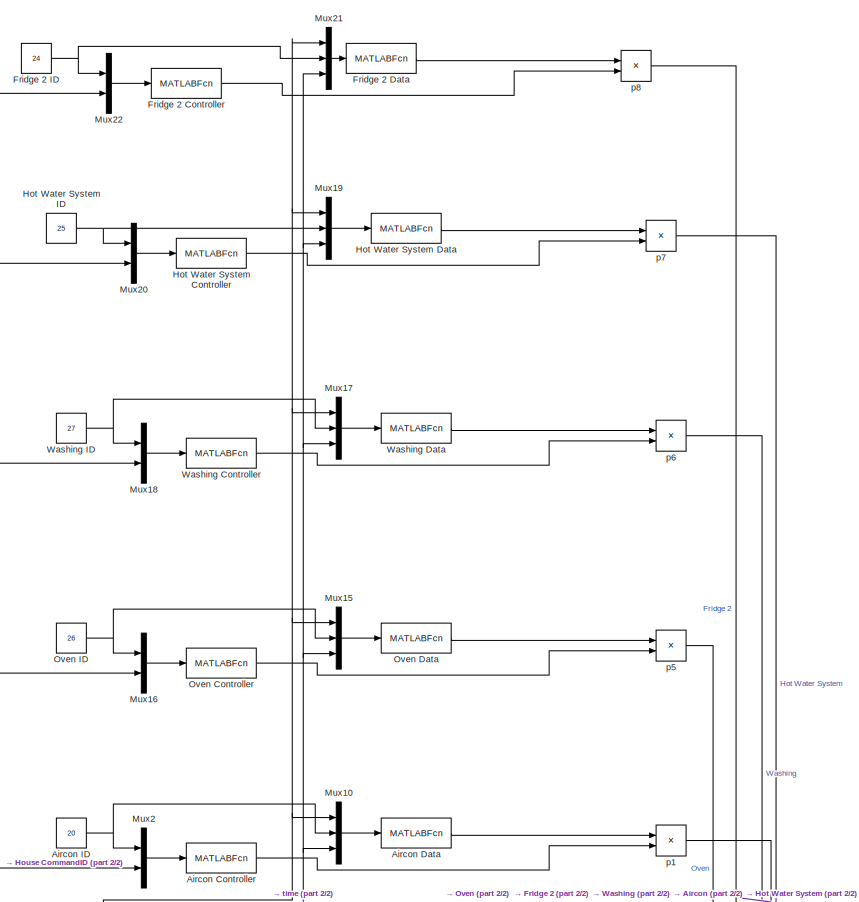
[diagram: House 2R1 - part 1/2, top center region]
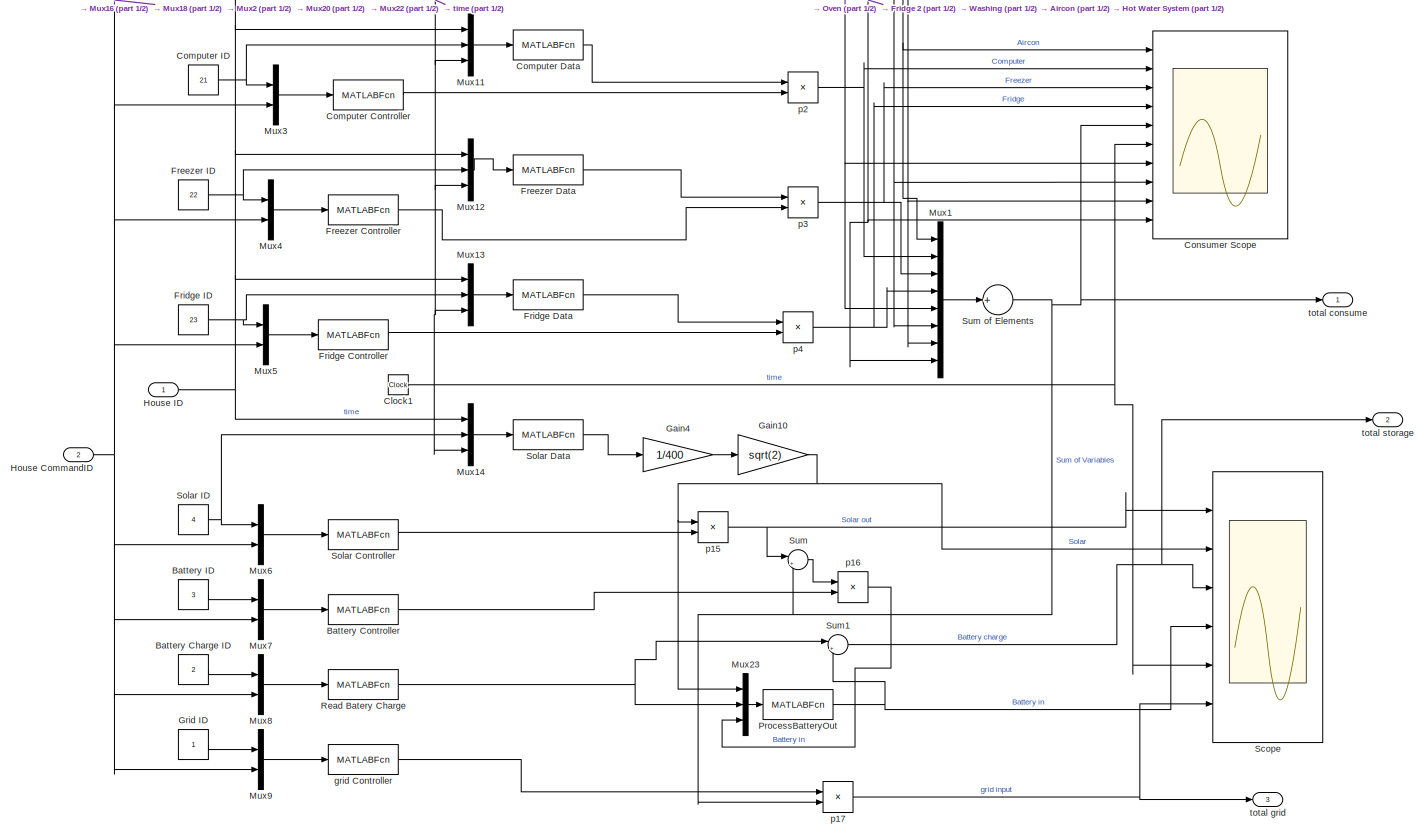
[diagram: House 2R1 - part 2/2, full width, bottom band]
BLOCK [SubSystem] House 2R1
  Ports = [2, 3]
  RequestExecContextInheritance = off
BLOCK [MATLABFcn] House 2R1/Aircon Controller
  MATLABFcn = ControllerFunc
  OutputSignalType = real
  Ports = [1, 1]
BLOCK [MATLABFcn] House 2R1/Aircon Data
  MATLABFcn = LookupTable
  OutputSignalType = real
  Ports = [1, 1]
BLOCK [Constant] House 2R1/Aircon ID
  Value = 20
BLOCK [Constant] House 2R1/Battery Charge ID
  Value = 2
BLOCK [MATLABFcn] House 2R1/Battery Controller
  MATLABFcn = ControllerFunc
  OutputSignalType = real
  Ports = [1, 1]
BLOCK [Constant] House 2R1/Battery ID
  Value = 3
BLOCK [Clock] House 2R1/Clock1
  Decimation = 1
BLOCK [MATLABFcn] House 2R1/Computer Controller
  MATLABFcn = ControllerFunc
  OutputSignalType = real
  Ports = [1, 1]
BLOCK [MATLABFcn] House 2R1/Computer Data
  MATLABFcn = LookupTable
  OutputSignalType = real
  Ports = [1, 1]
BLOCK [Constant] House 2R1/Computer ID
  Value = 21
BLOCK [Scope] House 2R1/Consumer Scope
  Floating = off
  NumInputPorts = 10
  Ports = [10]
  ScopeSpecificationString = Simulink.scopes.TimeScopeBlockCfg('CurrentConfiguration', extmgr.ConfigurationSet(extmgr.Configuration('Core','General UI',true),extmgr.Configuration('Core','Source UI',true),extmgr.Configuration('Sources','WiredSimulink',true,'DataLoggingVariableName','ConsumeDataH2R1','DataLogging',true,'DataLoggingSaveFormat','StructureWithTime'),extmgr.Configuration('Visuals','Time Domain',true,'SerializedDisp...<+8986ch>
BLOCK [MATLABFcn] House 2R1/Freezer Controller
  MATLABFcn = ControllerFunc
  OutputSignalType = real
  Ports = [1, 1]
BLOCK [MATLABFcn] House 2R1/Freezer Data
  MATLABFcn = LookupTable
  OutputSignalType = real
  Ports = [1, 1]
BLOCK [Constant] House 2R1/Freezer ID
  Value = 22
BLOCK [MATLABFcn] House 2R1/Fridge 2 Controller
  MATLABFcn = ControllerFunc
  OutputSignalType = real
  Ports = [1, 1]
BLOCK [MATLABFcn] House 2R1/Fridge 2 Data
  MATLABFcn = LookupTable
  OutputSignalType = real
  Ports = [1, 1]
BLOCK [Constant] House 2R1/Fridge 2 ID
  Value = 24
BLOCK [MATLABFcn] House 2R1/Fridge Controller
  MATLABFcn = ControllerFunc
  OutputSignalType = real
  Ports = [1, 1]
BLOCK [MATLABFcn] House 2R1/Fridge Data
  MATLABFcn = LookupTable
  OutputSignalType = real
  Ports = [1, 1]
BLOCK [Constant] House 2R1/Fridge ID
  Value = 23
BLOCK [Gain] House 2R1/Gain10
  Gain = sqrt(2)
  OutDataTypeStr = Inherit: Inherit via internal rule
  ParamDataTypeStr = Inherit: Inherit via internal rule
  SaturateOnIntegerOverflow = off
BLOCK [Gain] House 2R1/Gain4
  Gain = 1/400
  OutDataTypeStr = Inherit: Inherit via internal rule
  ParamDataTypeStr = Inherit: Inherit via internal rule
  SaturateOnIntegerOverflow = off
BLOCK [Constant] House 2R1/Grid ID
BLOCK [MATLABFcn] House 2R1/Hot Water System Controller
  MATLABFcn = ControllerFunc
  OutputSignalType = real
  Ports = [1, 1]
BLOCK [MATLABFcn] House 2R1/Hot Water System Data
  MATLABFcn = LookupTable
  OutputSignalType = real
  Ports = [1, 1]
BLOCK [Constant] House 2R1/Hot Water System ID
  Value = 25
BLOCK [Inport] House 2R1/House CommandID
  IconDisplay = Port number
  Port = 2
BLOCK [Inport] House 2R1/House ID
  IconDisplay = Port number
BLOCK [Mux] House 2R1/Mux1
  DisplayOption = bar
  Inputs = 8
  Ports = [8, 1]
BLOCK [Mux] House 2R1/Mux10
  DisplayOption = bar
  Inputs = 3
  Ports = [3, 1]
BLOCK [Mux] House 2R1/Mux11
  DisplayOption = bar
  Inputs = 3
  Ports = [3, 1]
BLOCK [Mux] House 2R1/Mux12
  DisplayOption = bar
  Inputs = 3
  Ports = [3, 1]
BLOCK [Mux] House 2R1/Mux13
  DisplayOption = bar
  Inputs = 3
  Ports = [3, 1]
BLOCK [Mux] House 2R1/Mux14
  DisplayOption = bar
  Inputs = 3
  Ports = [3, 1]
BLOCK [Mux] House 2R1/Mux15
  DisplayOption = bar
  Inputs = 3
  Ports = [3, 1]
BLOCK [Mux] House 2R1/Mux16
  DisplayOption = bar
  Inputs = 2
  Ports = [2, 1]
BLOCK [Mux] House 2R1/Mux17
  DisplayOption = bar
  Inputs = 3
  Ports = [3, 1]
BLOCK [Mux] House 2R1/Mux18
  DisplayOption = bar
  Inputs = 2
  Ports = [2, 1]
BLOCK [Mux] House 2R1/Mux19
  DisplayOption = bar
  Inputs = 3
  Ports = [3, 1]
BLOCK [Mux] House 2R1/Mux2
  DisplayOption = bar
  Inputs = 2
  Ports = [2, 1]
BLOCK [Mux] House 2R1/Mux20
  DisplayOption = bar
  Inputs = 2
  Ports = [2, 1]
BLOCK [Mux] House 2R1/Mux21
  DisplayOption = bar
  Inputs = 3
  Ports = [3, 1]
BLOCK [Mux] House 2R1/Mux22
  DisplayOption = bar
  Inputs = 2
  Ports = [2, 1]
BLOCK [Mux] House 2R1/Mux23
  DisplayOption = bar
  Inputs = 3
  Ports = [3, 1]
BLOCK [Mux] House 2R1/Mux3
  DisplayOption = bar
  Inputs = 2
  Ports = [2, 1]
BLOCK [Mux] House 2R1/Mux4
  DisplayOption = bar
  Inputs = 2
  Ports = [2, 1]
BLOCK [Mux] House 2R1/Mux5
  DisplayOption = bar
  Inputs = 2
  Ports = [2, 1]
BLOCK [Mux] House 2R1/Mux6
  DisplayOption = bar
  Inputs = 2
  Ports = [2, 1]
BLOCK [Mux] House 2R1/Mux7
  DisplayOption = bar
  Inputs = 2
  Ports = [2, 1]
BLOCK [Mux] House 2R1/Mux8
  DisplayOption = bar
  Inputs = 2
  Ports = [2, 1]
BLOCK [Mux] House 2R1/Mux9
  DisplayOption = bar
  Inputs = 2
  Ports = [2, 1]
BLOCK [MATLABFcn] House 2R1/Oven Controller
  MATLABFcn = ControllerFunc
  OutputSignalType = real
  Ports = [1, 1]
BLOCK [MATLABFcn] House 2R1/Oven Data
  MATLABFcn = LookupTable
  OutputSignalType = real
  Ports = [1, 1]
BLOCK [Constant] House 2R1/Oven ID
  Value = 26
BLOCK [MATLABFcn] House 2R1/ProcessBatteryOut
  MATLABFcn = ProcessBatteryOutHFunc
  OutputSignalType = real
  Ports = [1, 1]
BLOCK [MATLABFcn] House 2R1/Read Batery Charge
  MATLABFcn = ControllerFunc
  OutputSignalType = real
  Ports = [1, 1]
BLOCK [Scope] House 2R1/Scope
  Floating = off
  NumInputPorts = 6
  Ports = [6]
  ScopeSpecificationString = Simulink.scopes.TimeScopeBlockCfg('CurrentConfiguration', extmgr.ConfigurationSet(extmgr.Configuration('Core','General UI',true),extmgr.Configuration('Core','Source UI',true),extmgr.Configuration('Sources','WiredSimulink',true,'DataLoggingVariableName','LinkDataH2R1','DataLogging',true,'DataLoggingSaveFormat','StructureWithTime'),extmgr.Configuration('Visuals','Time Domain',true,'SerializedDisplay...<+4767ch>
BLOCK [MATLABFcn] House 2R1/Solar Controller
  MATLABFcn = ControllerFunc
  OutputSignalType = real
  Ports = [1, 1]
BLOCK [MATLABFcn] House 2R1/Solar Data
  MATLABFcn = LookupTable
  OutputSignalType = real
  Ports = [1, 1]
BLOCK [Constant] House 2R1/Solar ID
  Value = 4
BLOCK [Sum] House 2R1/Sum
  IconShape = round
  InputSameDT = off
  Inputs = |+-
  OutDataTypeStr = Inherit: Inherit via internal rule
  Ports = [2, 1]
  SaturateOnIntegerOverflow = off
BLOCK [Sum] House 2R1/Sum of Elements
  InputSameDT = off
  Inputs = +
  OutDataTypeStr = Inherit: Inherit via internal rule
  Ports = [1, 1]
  SaturateOnIntegerOverflow = off
BLOCK [Sum] House 2R1/Sum1
  IconShape = round
  InputSameDT = off
  Inputs = |++
  OutDataTypeStr = Inherit: Inherit via internal rule
  Ports = [2, 1]
  SaturateOnIntegerOverflow = off
BLOCK [MATLABFcn] House 2R1/Washing Controller
  MATLABFcn = ControllerFunc
  OutputSignalType = real
  Ports = [1, 1]
BLOCK [MATLABFcn] House 2R1/Washing Data
  MATLABFcn = LookupTable
  OutputSignalType = real
  Ports = [1, 1]
BLOCK [Constant] House 2R1/Washing ID
  Value = 27
BLOCK [MATLABFcn] House 2R1/grid Controller
  MATLABFcn = ControllerFunc
  OutputSignalType = real
  Ports = [1, 1]
BLOCK [Product] House 2R1/p1
  InputSameDT = off
  OutDataTypeStr = Inherit: Inherit via internal rule
  Ports = [2, 1]
  RndMeth = Floor
  SaturateOnIntegerOverflow = off
BLOCK [Product] House 2R1/p15
  InputSameDT = off
  OutDataTypeStr = Inherit: Inherit via internal rule
  Ports = [2, 1]
  RndMeth = Floor
  SaturateOnIntegerOverflow = off
BLOCK [Product] House 2R1/p16
  InputSameDT = off
  OutDataTypeStr = Inherit: Inherit via internal rule
  Ports = [2, 1]
  RndMeth = Floor
  SaturateOnIntegerOverflow = off
BLOCK [Product] House 2R1/p17
  InputSameDT = off
  OutDataTypeStr = Inherit: Inherit via internal rule
  Ports = [2, 1]
  RndMeth = Floor
  SaturateOnIntegerOverflow = off
BLOCK [Product] House 2R1/p2
  InputSameDT = off
  OutDataTypeStr = Inherit: Inherit via internal rule
  Ports = [2, 1]
  RndMeth = Floor
  SaturateOnIntegerOverflow = off
BLOCK [Product] House 2R1/p3
  InputSameDT = off
  OutDataTypeStr = Inherit: Inherit via internal rule
  Ports = [2, 1]
  RndMeth = Floor
  SaturateOnIntegerOverflow = off
BLOCK [Product] House 2R1/p4
  InputSameDT = off
  OutDataTypeStr = Inherit: Inherit via internal rule
  Ports = [2, 1]
  RndMeth = Floor
  SaturateOnIntegerOverflow = off
BLOCK [Product] House 2R1/p5
  InputSameDT = off
  OutDataTypeStr = Inherit: Inherit via internal rule
  Ports = [2, 1]
  RndMeth = Floor
  SaturateOnIntegerOverflow = off
BLOCK [Product] House 2R1/p6
  InputSameDT = off
  OutDataTypeStr = Inherit: Inherit via internal rule
  Ports = [2, 1]
  RndMeth = Floor
  SaturateOnIntegerOverflow = off
BLOCK [Product] House 2R1/p7
  InputSameDT = off
  OutDataTypeStr = Inherit: Inherit via internal rule
  Ports = [2, 1]
  RndMeth = Floor
  SaturateOnIntegerOverflow = off
BLOCK [Product] House 2R1/p8
  InputSameDT = off
  OutDataTypeStr = Inherit: Inherit via internal rule
  Ports = [2, 1]
  RndMeth = Floor
  SaturateOnIntegerOverflow = off
BLOCK [Outport] House 2R1/total consume
  IconDisplay = Port number
BLOCK [Outport] House 2R1/total grid
  IconDisplay = Port number
  Port = 3
BLOCK [Outport] House 2R1/total storage
  IconDisplay = Port number
  Port = 2
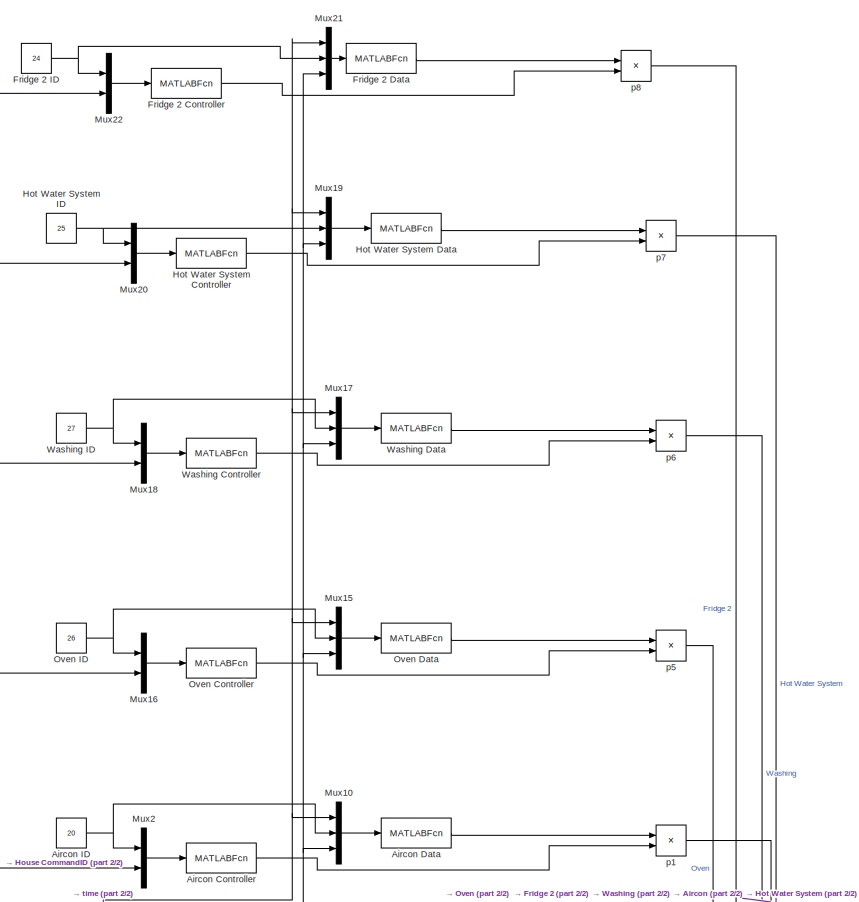
[diagram: House 2R2 - part 1/2, top center region]
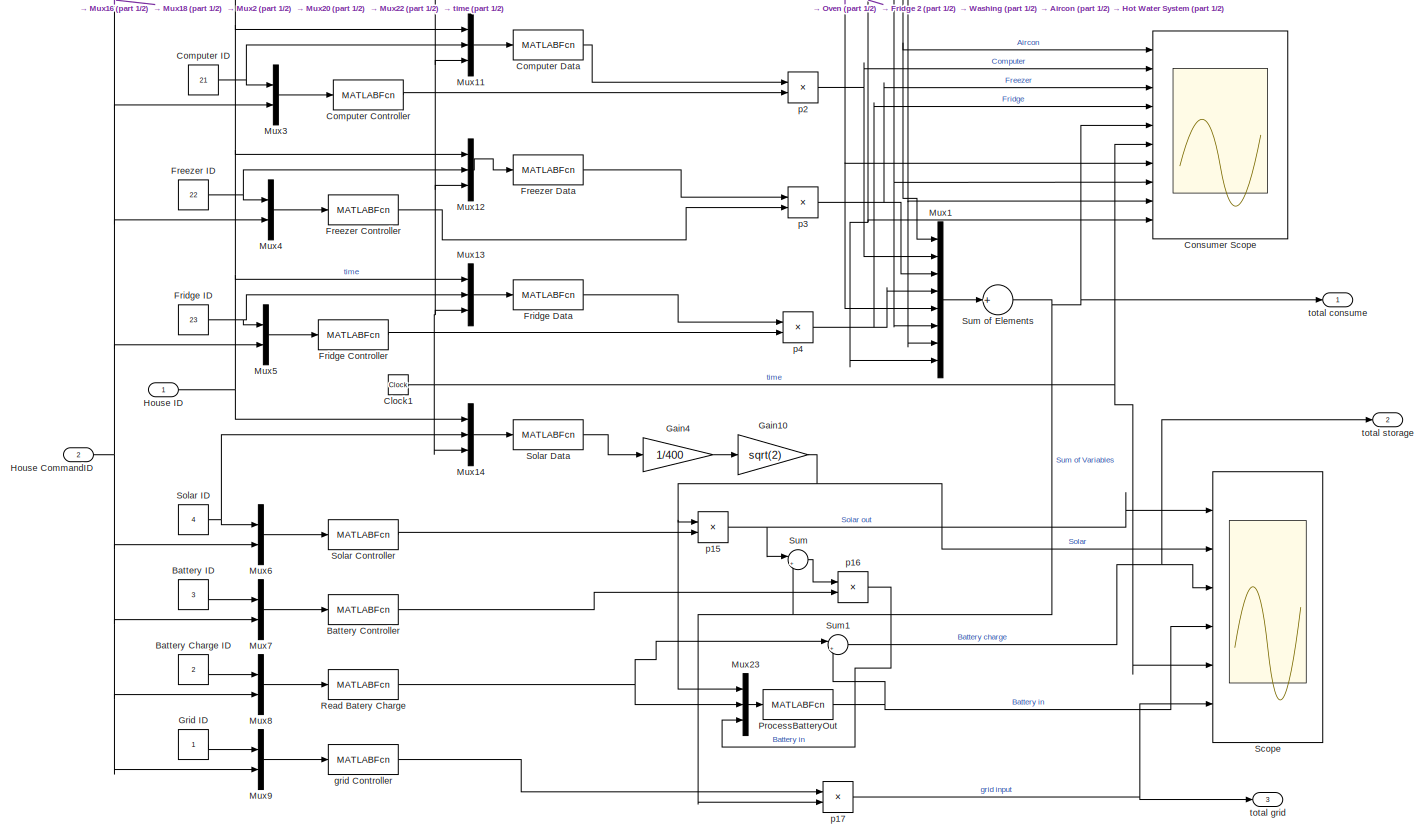
[diagram: House 2R2 - part 2/2, full width, bottom band]
BLOCK [SubSystem] House 2R2
  Ports = [2, 3]
  RequestExecContextInheritance = off
BLOCK [MATLABFcn] House 2R2/Aircon Controller
  MATLABFcn = ControllerFunc
  OutputSignalType = real
  Ports = [1, 1]
BLOCK [MATLABFcn] House 2R2/Aircon Data
  MATLABFcn = LookupTable
  OutputSignalType = real
  Ports = [1, 1]
BLOCK [Constant] House 2R2/Aircon ID
  Value = 20
BLOCK [Constant] House 2R2/Battery Charge ID
  Value = 2
BLOCK [MATLABFcn] House 2R2/Battery Controller
  MATLABFcn = ControllerFunc
  OutputSignalType = real
  Ports = [1, 1]
BLOCK [Constant] House 2R2/Battery ID
  Value = 3
BLOCK [Clock] House 2R2/Clock1
  Decimation = 1
BLOCK [MATLABFcn] House 2R2/Computer Controller
  MATLABFcn = ControllerFunc
  OutputSignalType = real
  Ports = [1, 1]
BLOCK [MATLABFcn] House 2R2/Computer Data
  MATLABFcn = LookupTable
  OutputSignalType = real
  Ports = [1, 1]
BLOCK [Constant] House 2R2/Computer ID
  Value = 21
BLOCK [Scope] House 2R2/Consumer Scope
  Floating = off
  NumInputPorts = 10
  Ports = [10]
  ScopeSpecificationString = Simulink.scopes.TimeScopeBlockCfg('CurrentConfiguration', extmgr.ConfigurationSet(extmgr.Configuration('Core','General UI',true),extmgr.Configuration('Core','Source UI',true),extmgr.Configuration('Sources','WiredSimulink',true,'DataLoggingVariableName','ConsumeDataH2R2','DataLogging',true,'DataLoggingSaveFormat','StructureWithTime'),extmgr.Configuration('Visuals','Time Domain',true,'SerializedDisp...<+4897ch>
BLOCK [MATLABFcn] House 2R2/Freezer Controller
  MATLABFcn = ControllerFunc
  OutputSignalType = real
  Ports = [1, 1]
BLOCK [MATLABFcn] House 2R2/Freezer Data
  MATLABFcn = LookupTable
  OutputSignalType = real
  Ports = [1, 1]
BLOCK [Constant] House 2R2/Freezer ID
  Value = 22
BLOCK [MATLABFcn] House 2R2/Fridge 2 Controller
  MATLABFcn = ControllerFunc
  OutputSignalType = real
  Ports = [1, 1]
BLOCK [MATLABFcn] House 2R2/Fridge 2 Data
  MATLABFcn = LookupTable
  OutputSignalType = real
  Ports = [1, 1]
BLOCK [Constant] House 2R2/Fridge 2 ID
  Value = 24
BLOCK [MATLABFcn] House 2R2/Fridge Controller
  MATLABFcn = ControllerFunc
  OutputSignalType = real
  Ports = [1, 1]
BLOCK [MATLABFcn] House 2R2/Fridge Data
  MATLABFcn = LookupTable
  OutputSignalType = real
  Ports = [1, 1]
BLOCK [Constant] House 2R2/Fridge ID
  Value = 23
BLOCK [Gain] House 2R2/Gain10
  Gain = sqrt(2)
  OutDataTypeStr = Inherit: Inherit via internal rule
  ParamDataTypeStr = Inherit: Inherit via internal rule
  SaturateOnIntegerOverflow = off
BLOCK [Gain] House 2R2/Gain4
  Gain = 1/400
  OutDataTypeStr = Inherit: Inherit via internal rule
  ParamDataTypeStr = Inherit: Inherit via internal rule
  SaturateOnIntegerOverflow = off
BLOCK [Constant] House 2R2/Grid ID
BLOCK [MATLABFcn] House 2R2/Hot Water System Controller
  MATLABFcn = ControllerFunc
  OutputSignalType = real
  Ports = [1, 1]
BLOCK [MATLABFcn] House 2R2/Hot Water System Data
  MATLABFcn = LookupTable
  OutputSignalType = real
  Ports = [1, 1]
BLOCK [Constant] House 2R2/Hot Water System ID
  Value = 25
BLOCK [Inport] House 2R2/House CommandID
  IconDisplay = Port number
  Port = 2
BLOCK [Inport] House 2R2/House ID
  IconDisplay = Port number
BLOCK [Mux] House 2R2/Mux1
  DisplayOption = bar
  Inputs = 8
  Ports = [8, 1]
BLOCK [Mux] House 2R2/Mux10
  DisplayOption = bar
  Inputs = 3
  Ports = [3, 1]
BLOCK [Mux] House 2R2/Mux11
  DisplayOption = bar
  Inputs = 3
  Ports = [3, 1]
BLOCK [Mux] House 2R2/Mux12
  DisplayOption = bar
  Inputs = 3
  Ports = [3, 1]
BLOCK [Mux] House 2R2/Mux13
  DisplayOption = bar
  Inputs = 3
  Ports = [3, 1]
BLOCK [Mux] House 2R2/Mux14
  DisplayOption = bar
  Inputs = 3
  Ports = [3, 1]
BLOCK [Mux] House 2R2/Mux15
  DisplayOption = bar
  Inputs = 3
  Ports = [3, 1]
BLOCK [Mux] House 2R2/Mux16
  DisplayOption = bar
  Inputs = 2
  Ports = [2, 1]
BLOCK [Mux] House 2R2/Mux17
  DisplayOption = bar
  Inputs = 3
  Ports = [3, 1]
BLOCK [Mux] House 2R2/Mux18
  DisplayOption = bar
  Inputs = 2
  Ports = [2, 1]
BLOCK [Mux] House 2R2/Mux19
  DisplayOption = bar
  Inputs = 3
  Ports = [3, 1]
BLOCK [Mux] House 2R2/Mux2
  DisplayOption = bar
  Inputs = 2
  Ports = [2, 1]
BLOCK [Mux] House 2R2/Mux20
  DisplayOption = bar
  Inputs = 2
  Ports = [2, 1]
BLOCK [Mux] House 2R2/Mux21
  DisplayOption = bar
  Inputs = 3
  Ports = [3, 1]
BLOCK [Mux] House 2R2/Mux22
  DisplayOption = bar
  Inputs = 2
  Ports = [2, 1]
BLOCK [Mux] House 2R2/Mux23
  DisplayOption = bar
  Inputs = 3
  Ports = [3, 1]
BLOCK [Mux] House 2R2/Mux3
  DisplayOption = bar
  Inputs = 2
  Ports = [2, 1]
BLOCK [Mux] House 2R2/Mux4
  DisplayOption = bar
  Inputs = 2
  Ports = [2, 1]
BLOCK [Mux] House 2R2/Mux5
  DisplayOption = bar
  Inputs = 2
  Ports = [2, 1]
BLOCK [Mux] House 2R2/Mux6
  DisplayOption = bar
  Inputs = 2
  Ports = [2, 1]
BLOCK [Mux] House 2R2/Mux7
  DisplayOption = bar
  Inputs = 2
  Ports = [2, 1]
BLOCK [Mux] House 2R2/Mux8
  DisplayOption = bar
  Inputs = 2
  Ports = [2, 1]
BLOCK [Mux] House 2R2/Mux9
  DisplayOption = bar
  Inputs = 2
  Ports = [2, 1]
BLOCK [MATLABFcn] House 2R2/Oven Controller
  MATLABFcn = ControllerFunc
  OutputSignalType = real
  Ports = [1, 1]
BLOCK [MATLABFcn] House 2R2/Oven Data
  MATLABFcn = LookupTable
  OutputSignalType = real
  Ports = [1, 1]
BLOCK [Constant] House 2R2/Oven ID
  Value = 26
BLOCK [MATLABFcn] House 2R2/ProcessBatteryOut
  MATLABFcn = ProcessBatteryOutHFunc
  OutputSignalType = real
  Ports = [1, 1]
BLOCK [MATLABFcn] House 2R2/Read Batery Charge
  MATLABFcn = ControllerFunc
  OutputSignalType = real
  Ports = [1, 1]
BLOCK [Scope] House 2R2/Scope
  Floating = off
  NumInputPorts = 6
  Ports = [6]
  ScopeSpecificationString = Simulink.scopes.TimeScopeBlockCfg('CurrentConfiguration', extmgr.ConfigurationSet(extmgr.Configuration('Core','General UI',true),extmgr.Configuration('Core','Source UI',true),extmgr.Configuration('Sources','WiredSimulink',true,'DataLoggingVariableName','LinkDataH2R2','DataLogging',true,'DataLoggingSaveFormat','StructureWithTime'),extmgr.Configuration('Visuals','Time Domain',true,'SerializedDisplay...<+4768ch>
BLOCK [MATLABFcn] House 2R2/Solar Controller
  MATLABFcn = ControllerFunc
  OutputSignalType = real
  Ports = [1, 1]
BLOCK [MATLABFcn] House 2R2/Solar Data
  MATLABFcn = LookupTable
  OutputSignalType = real
  Ports = [1, 1]
BLOCK [Constant] House 2R2/Solar ID
  Value = 4
BLOCK [Sum] House 2R2/Sum
  IconShape = round
  InputSameDT = off
  Inputs = |+-
  OutDataTypeStr = Inherit: Inherit via internal rule
  Ports = [2, 1]
  SaturateOnIntegerOverflow = off
BLOCK [Sum] House 2R2/Sum of Elements
  InputSameDT = off
  Inputs = +
  OutDataTypeStr = Inherit: Inherit via internal rule
  Ports = [1, 1]
  SaturateOnIntegerOverflow = off
BLOCK [Sum] House 2R2/Sum1
  IconShape = round
  InputSameDT = off
  Inputs = |++
  OutDataTypeStr = Inherit: Inherit via internal rule
  Ports = [2, 1]
  SaturateOnIntegerOverflow = off
BLOCK [MATLABFcn] House 2R2/Washing Controller
  MATLABFcn = ControllerFunc
  OutputSignalType = real
  Ports = [1, 1]
BLOCK [MATLABFcn] House 2R2/Washing Data
  MATLABFcn = LookupTable
  OutputSignalType = real
  Ports = [1, 1]
BLOCK [Constant] House 2R2/Washing ID
  Value = 27
BLOCK [MATLABFcn] House 2R2/grid Controller
  MATLABFcn = ControllerFunc
  OutputSignalType = real
  Ports = [1, 1]
BLOCK [Product] House 2R2/p1
  InputSameDT = off
  OutDataTypeStr = Inherit: Inherit via internal rule
  Ports = [2, 1]
  RndMeth = Floor
  SaturateOnIntegerOverflow = off
BLOCK [Product] House 2R2/p15
  InputSameDT = off
  OutDataTypeStr = Inherit: Inherit via internal rule
  Ports = [2, 1]
  RndMeth = Floor
  SaturateOnIntegerOverflow = off
BLOCK [Product] House 2R2/p16
  InputSameDT = off
  OutDataTypeStr = Inherit: Inherit via internal rule
  Ports = [2, 1]
  RndMeth = Floor
  SaturateOnIntegerOverflow = off
BLOCK [Product] House 2R2/p17
  InputSameDT = off
  OutDataTypeStr = Inherit: Inherit via internal rule
  Ports = [2, 1]
  RndMeth = Floor
  SaturateOnIntegerOverflow = off
BLOCK [Product] House 2R2/p2
  InputSameDT = off
  OutDataTypeStr = Inherit: Inherit via internal rule
  Ports = [2, 1]
  RndMeth = Floor
  SaturateOnIntegerOverflow = off
BLOCK [Product] House 2R2/p3
  InputSameDT = off
  OutDataTypeStr = Inherit: Inherit via internal rule
  Ports = [2, 1]
  RndMeth = Floor
  SaturateOnIntegerOverflow = off
BLOCK [Product] House 2R2/p4
  InputSameDT = off
  OutDataTypeStr = Inherit: Inherit via internal rule
  Ports = [2, 1]
  RndMeth = Floor
  SaturateOnIntegerOverflow = off
BLOCK [Product] House 2R2/p5
  InputSameDT = off
  OutDataTypeStr = Inherit: Inherit via internal rule
  Ports = [2, 1]
  RndMeth = Floor
  SaturateOnIntegerOverflow = off
BLOCK [Product] House 2R2/p6
  InputSameDT = off
  OutDataTypeStr = Inherit: Inherit via internal rule
  Ports = [2, 1]
  RndMeth = Floor
  SaturateOnIntegerOverflow = off
BLOCK [Product] House 2R2/p7
  InputSameDT = off
  OutDataTypeStr = Inherit: Inherit via internal rule
  Ports = [2, 1]
  RndMeth = Floor
  SaturateOnIntegerOverflow = off
BLOCK [Product] House 2R2/p8
  InputSameDT = off
  OutDataTypeStr = Inherit: Inherit via internal rule
  Ports = [2, 1]
  RndMeth = Floor
  SaturateOnIntegerOverflow = off
BLOCK [Outport] House 2R2/total consume
  IconDisplay = Port number
BLOCK [Outport] House 2R2/total grid
  IconDisplay = Port number
  Port = 3
BLOCK [Outport] House 2R2/total storage
  IconDisplay = Port number
  Port = 2
BLOCK [SubSystem] House 2R3
  Ports = [2, 3]
  RequestExecContextInheritance = off
BLOCK [MATLABFcn] House 2R3/Aircon Controller
  MATLABFcn = ControllerFunc
  OutputSignalType = real
  Ports = [1, 1]
BLOCK [MATLABFcn] House 2R3/Aircon Data
  MATLABFcn = LookupTable
  OutputSignalType = real
  Ports = [1, 1]
BLOCK [Constant] House 2R3/Aircon ID
  Value = 20
BLOCK [Constant] House 2R3/Battery Charge ID
  Value = 2
BLOCK [MATLABFcn] House 2R3/Battery Controller
  MATLABFcn = ControllerFunc
  OutputSignalType = real
  Ports = [1, 1]
BLOCK [Constant] House 2R3/Battery ID
  Value = 3
BLOCK [Clock] House 2R3/Clock1
  Decimation = 1
BLOCK [MATLABFcn] House 2R3/Computer Controller
  MATLABFcn = ControllerFunc
  OutputSignalType = real
  Ports = [1, 1]
BLOCK [MATLABFcn] House 2R3/Computer Data
  MATLABFcn = LookupTable
  OutputSignalType = real
  Ports = [1, 1]
BLOCK [Constant] House 2R3/Computer ID
  Value = 21
BLOCK [Scope] House 2R3/Consumer Scope
  Floating = off
  NumInputPorts = 10
  Ports = [10]
  ScopeSpecificationString = Simulink.scopes.TimeScopeBlockCfg('CurrentConfiguration', extmgr.ConfigurationSet(extmgr.Configuration('Core','General UI',true),extmgr.Configuration('Core','Source UI',true),extmgr.Configuration('Sources','WiredSimulink',true,'DataLoggingVariableName','ConsumeDataH2R3','DataLogging',true,'DataLoggingSaveFormat','StructureWithTime'),extmgr.Configuration('Visuals','Time Domain',true,'SerializedDisp...<+4897ch>
BLOCK [MATLABFcn] House 2R3/Freezer Controller
  MATLABFcn = ControllerFunc
  OutputSignalType = real
  Ports = [1, 1]
BLOCK [MATLABFcn] House 2R3/Freezer Data
  MATLABFcn = LookupTable
  OutputSignalType = real
  Ports = [1, 1]
BLOCK [Constant] House 2R3/Freezer ID
  Value = 22
BLOCK [MATLABFcn] House 2R3/Fridge 2 Controller
  MATLABFcn = ControllerFunc
  OutputSignalType = real
  Ports = [1, 1]
BLOCK [MATLABFcn] House 2R3/Fridge 2 Data
  MATLABFcn = LookupTable
  OutputSignalType = real
  Ports = [1, 1]
BLOCK [Constant] House 2R3/Fridge 2 ID
  Value = 24
BLOCK [MATLABFcn] House 2R3/Fridge Controller
  MATLABFcn = ControllerFunc
  OutputSignalType = real
  Ports = [1, 1]
BLOCK [MATLABFcn] House 2R3/Fridge Data
  MATLABFcn = LookupTable
  OutputSignalType = real
  Ports = [1, 1]
BLOCK [Constant] House 2R3/Fridge ID
  Value = 23
BLOCK [Gain] House 2R3/Gain10
  Gain = sqrt(2)
  OutDataTypeStr = Inherit: Inherit via internal rule
  ParamDataTypeStr = Inherit: Inherit via internal rule
  SaturateOnIntegerOverflow = off
BLOCK [Gain] House 2R3/Gain4
  Gain = 1/400
  OutDataTypeStr = Inherit: Inherit via internal rule
  ParamDataTypeStr = Inherit: Inherit via internal rule
  SaturateOnIntegerOverflow = off
BLOCK [Constant] House 2R3/Grid ID
BLOCK [MATLABFcn] House 2R3/Hot Water System Controller
  MATLABFcn = ControllerFunc
  OutputSignalType = real
  Ports = [1, 1]
BLOCK [MATLABFcn] House 2R3/Hot Water System Data
  MATLABFcn = LookupTable
  OutputSignalType = real
  Ports = [1, 1]
BLOCK [Constant] House 2R3/Hot Water System ID
  Value = 25
BLOCK [Inport] House 2R3/House CommandID
  IconDisplay = Port number
  Port = 2
BLOCK [Inport] House 2R3/House ID
  IconDisplay = Port number
BLOCK [Mux] House 2R3/Mux1
  DisplayOption = bar
  Inputs = 8
  Ports = [8, 1]
BLOCK [Mux] House 2R3/Mux10
  DisplayOption = bar
  Inputs = 3
  Ports = [3, 1]
BLOCK [Mux] House 2R3/Mux11
  DisplayOption = bar
  Inputs = 3
  Ports = [3, 1]
BLOCK [Mux] House 2R3/Mux12
  DisplayOption = bar
  Inputs = 3
  Ports = [3, 1]
BLOCK [Mux] House 2R3/Mux13
  DisplayOption = bar
  Inputs = 3
  Ports = [3, 1]
BLOCK [Mux] House 2R3/Mux14
  DisplayOption = bar
  Inputs = 3
  Ports = [3, 1]
BLOCK [Mux] House 2R3/Mux15
  DisplayOption = bar
  Inputs = 3
  Ports = [3, 1]
BLOCK [Mux] House 2R3/Mux16
  DisplayOption = bar
  Inputs = 2
  Ports = [2, 1]
BLOCK [Mux] House 2R3/Mux17
  DisplayOption = bar
  Inputs = 3
  Ports = [3, 1]
BLOCK [Mux] House 2R3/Mux18
  DisplayOption = bar
  Inputs = 2
  Ports = [2, 1]
BLOCK [Mux] House 2R3/Mux19
  DisplayOption = bar
  Inputs = 3
  Ports = [3, 1]
BLOCK [Mux] House 2R3/Mux2
  DisplayOption = bar
  Inputs = 2
  Ports = [2, 1]
BLOCK [Mux] House 2R3/Mux20
  DisplayOption = bar
  Inputs = 2
  Ports = [2, 1]
BLOCK [Mux] House 2R3/Mux21
  DisplayOption = bar
  Inputs = 3
  Ports = [3, 1]
BLOCK [Mux] House 2R3/Mux22
  DisplayOption = bar
  Inputs = 2
  Ports = [2, 1]
BLOCK [Mux] House 2R3/Mux23
  DisplayOption = bar
  Inputs = 3
  Ports = [3, 1]
BLOCK [Mux] House 2R3/Mux3
  DisplayOption = bar
  Inputs = 2
  Ports = [2, 1]
BLOCK [Mux] House 2R3/Mux4
  DisplayOption = bar
  Inputs = 2
  Ports = [2, 1]
BLOCK [Mux] House 2R3/Mux5
  DisplayOption = bar
  Inputs = 2
  Ports = [2, 1]
BLOCK [Mux] House 2R3/Mux6
  DisplayOption = bar
  Inputs = 2
  Ports = [2, 1]
BLOCK [Mux] House 2R3/Mux7
  DisplayOption = bar
  Inputs = 2
  Ports = [2, 1]
BLOCK [Mux] House 2R3/Mux8
  DisplayOption = bar
  Inputs = 2
  Ports = [2, 1]
BLOCK [Mux] House 2R3/Mux9
  DisplayOption = bar
  Inputs = 2
  Ports = [2, 1]
BLOCK [MATLABFcn] House 2R3/Oven Controller
  MATLABFcn = ControllerFunc
  OutputSignalType = real
  Ports = [1, 1]
BLOCK [MATLABFcn] House 2R3/Oven Data
  MATLABFcn = LookupTable
  OutputSignalType = real
  Ports = [1, 1]
BLOCK [Constant] House 2R3/Oven ID
  Value = 26
BLOCK [MATLABFcn] House 2R3/ProcessBatteryOut
  MATLABFcn = ProcessBatteryOutHFunc
  OutputSignalType = real
  Ports = [1, 1]
BLOCK [MATLABFcn] House 2R3/Read Batery Charge
  MATLABFcn = ControllerFunc
  OutputSignalType = real
  Ports = [1, 1]
BLOCK [Scope] House 2R3/Scope
  Floating = off
  NumInputPorts = 6
  Ports = [6]
  ScopeSpecificationString = Simulink.scopes.TimeScopeBlockCfg('CurrentConfiguration', extmgr.ConfigurationSet(extmgr.Configuration('Core','General UI',true),extmgr.Configuration('Core','Source UI',true),extmgr.Configuration('Sources','WiredSimulink',true,'DataLoggingVariableName','LinkDataH2R3','DataLogging',true,'DataLoggingSaveFormat','StructureWithTime'),extmgr.Configuration('Visuals','Time Domain',true,'SerializedDisplay...<+4768ch>
BLOCK [MATLABFcn] House 2R3/Solar Controller
  MATLABFcn = ControllerFunc
  OutputSignalType = real
  Ports = [1, 1]
BLOCK [MATLABFcn] House 2R3/Solar Data
  MATLABFcn = LookupTable
  OutputSignalType = real
  Ports = [1, 1]
BLOCK [Constant] House 2R3/Solar ID
  Value = 4
BLOCK [Sum] House 2R3/Sum
  IconShape = round
  InputSameDT = off
  Inputs = |+-
  OutDataTypeStr = Inherit: Inherit via internal rule
  Ports = [2, 1]
  SaturateOnIntegerOverflow = off
BLOCK [Sum] House 2R3/Sum of Elements
  InputSameDT = off
  Inputs = +
  OutDataTypeStr = Inherit: Inherit via internal rule
  Ports = [1, 1]
  SaturateOnIntegerOverflow = off
BLOCK [Sum] House 2R3/Sum1
  IconShape = round
  InputSameDT = off
  Inputs = |++
  OutDataTypeStr = Inherit: Inherit via internal rule
  Ports = [2, 1]
  SaturateOnIntegerOverflow = off
BLOCK [MATLABFcn] House 2R3/Washing Controller
  MATLABFcn = ControllerFunc
  OutputSignalType = real
  Ports = [1, 1]
BLOCK [MATLABFcn] House 2R3/Washing Data
  MATLABFcn = LookupTable
  OutputSignalType = real
  Ports = [1, 1]
BLOCK [Constant] House 2R3/Washing ID
  Value = 27
BLOCK [MATLABFcn] House 2R3/grid Controller
  MATLABFcn = ControllerFunc
  OutputSignalType = real
  Ports = [1, 1]
BLOCK [Product] House 2R3/p1
  InputSameDT = off
  OutDataTypeStr = Inherit: Inherit via internal rule
  Ports = [2, 1]
  RndMeth = Floor
  SaturateOnIntegerOverflow = off
BLOCK [Product] House 2R3/p15
  InputSameDT = off
  OutDataTypeStr = Inherit: Inherit via internal rule
  Ports = [2, 1]
  RndMeth = Floor
  SaturateOnIntegerOverflow = off
BLOCK [Product] House 2R3/p16
  InputSameDT = off
  OutDataTypeStr = Inherit: Inherit via internal rule
  Ports = [2, 1]
  RndMeth = Floor
  SaturateOnIntegerOverflow = off
BLOCK [Product] House 2R3/p17
  InputSameDT = off
  OutDataTypeStr = Inherit: Inherit via internal rule
  Ports = [2, 1]
  RndMeth = Floor
  SaturateOnIntegerOverflow = off
BLOCK [Product] House 2R3/p2
  InputSameDT = off
  OutDataTypeStr = Inherit: Inherit via internal rule
  Ports = [2, 1]
  RndMeth = Floor
  SaturateOnIntegerOverflow = off
BLOCK [Product] House 2R3/p3
  InputSameDT = off
  OutDataTypeStr = Inherit: Inherit via internal rule
  Ports = [2, 1]
  RndMeth = Floor
  SaturateOnIntegerOverflow = off
BLOCK [Product] House 2R3/p4
  InputSameDT = off
  OutDataTypeStr = Inherit: Inherit via internal rule
  Ports = [2, 1]
  RndMeth = Floor
  SaturateOnIntegerOverflow = off
BLOCK [Product] House 2R3/p5
  InputSameDT = off
  OutDataTypeStr = Inherit: Inherit via internal rule
  Ports = [2, 1]
  RndMeth = Floor
  SaturateOnIntegerOverflow = off
BLOCK [Product] House 2R3/p6
  InputSameDT = off
  OutDataTypeStr = Inherit: Inherit via internal rule
  Ports = [2, 1]
  RndMeth = Floor
  SaturateOnIntegerOverflow = off
BLOCK [Product] House 2R3/p7
  InputSameDT = off
  OutDataTypeStr = Inherit: Inherit via internal rule
  Ports = [2, 1]
  RndMeth = Floor
  SaturateOnIntegerOverflow = off
BLOCK [Product] House 2R3/p8
  InputSameDT = off
  OutDataTypeStr = Inherit: Inherit via internal rule
  Ports = [2, 1]
  RndMeth = Floor
  SaturateOnIntegerOverflow = off
BLOCK [Outport] House 2R3/total consume
  IconDisplay = Port number
BLOCK [Outport] House 2R3/total grid
  IconDisplay = Port number
  Port = 3
BLOCK [Outport] House 2R3/total storage
  IconDisplay = Port number
  Port = 2
BLOCK [SubSystem] House 2R4
  Ports = [2, 3]
  RequestExecContextInheritance = off
BLOCK [MATLABFcn] House 2R4/Aircon Controller
  MATLABFcn = ControllerFunc
  OutputSignalType = real
  Ports = [1, 1]
BLOCK [MATLABFcn] House 2R4/Aircon Data
  MATLABFcn = LookupTable
  OutputSignalType = real
  Ports = [1, 1]
BLOCK [Constant] House 2R4/Aircon ID
  Value = 20
BLOCK [Constant] House 2R4/Battery Charge ID
  Value = 2
BLOCK [MATLABFcn] House 2R4/Battery Controller
  MATLABFcn = ControllerFunc
  OutputSignalType = real
  Ports = [1, 1]
BLOCK [Constant] House 2R4/Battery ID
  Value = 3
BLOCK [Clock] House 2R4/Clock1
  Decimation = 1
BLOCK [MATLABFcn] House 2R4/Computer Controller
  MATLABFcn = ControllerFunc
  OutputSignalType = real
  Ports = [1, 1]
BLOCK [MATLABFcn] House 2R4/Computer Data
  MATLABFcn = LookupTable
  OutputSignalType = real
  Ports = [1, 1]
BLOCK [Constant] House 2R4/Computer ID
  Value = 21
BLOCK [Scope] House 2R4/Consumer Scope
  Floating = off
  NumInputPorts = 10
  Ports = [10]
  ScopeSpecificationString = Simulink.scopes.TimeScopeBlockCfg('CurrentConfiguration', extmgr.ConfigurationSet(extmgr.Configuration('Core','General UI',true),extmgr.Configuration('Core','Source UI',true),extmgr.Configuration('Sources','WiredSimulink',true,'DataLoggingVariableName','ConsumeDataH2R4','DataLogging',true,'DataLoggingSaveFormat','StructureWithTime'),extmgr.Configuration('Visuals','Time Domain',true,'SerializedDisp...<+4897ch>
BLOCK [MATLABFcn] House 2R4/Freezer Controller
  MATLABFcn = ControllerFunc
  OutputSignalType = real
  Ports = [1, 1]
BLOCK [MATLABFcn] House 2R4/Freezer Data
  MATLABFcn = LookupTable
  OutputSignalType = real
  Ports = [1, 1]
BLOCK [Constant] House 2R4/Freezer ID
  Value = 22
BLOCK [MATLABFcn] House 2R4/Fridge 2 Controller
  MATLABFcn = ControllerFunc
  OutputSignalType = real
  Ports = [1, 1]
BLOCK [MATLABFcn] House 2R4/Fridge 2 Data
  MATLABFcn = LookupTable
  OutputSignalType = real
  Ports = [1, 1]
BLOCK [Constant] House 2R4/Fridge 2 ID
  Value = 24
BLOCK [MATLABFcn] House 2R4/Fridge Controller
  MATLABFcn = ControllerFunc
  OutputSignalType = real
  Ports = [1, 1]
BLOCK [MATLABFcn] House 2R4/Fridge Data
  MATLABFcn = LookupTable
  OutputSignalType = real
  Ports = [1, 1]
BLOCK [Constant] House 2R4/Fridge ID
  Value = 23
BLOCK [Gain] House 2R4/Gain10
  Gain = sqrt(2)
  OutDataTypeStr = Inherit: Inherit via internal rule
  ParamDataTypeStr = Inherit: Inherit via internal rule
  SaturateOnIntegerOverflow = off
BLOCK [Gain] House 2R4/Gain4
  Gain = 1/400
  OutDataTypeStr = Inherit: Inherit via internal rule
  ParamDataTypeStr = Inherit: Inherit via internal rule
  SaturateOnIntegerOverflow = off
BLOCK [Constant] House 2R4/Grid ID
BLOCK [MATLABFcn] House 2R4/Hot Water System Controller
  MATLABFcn = ControllerFunc
  OutputSignalType = real
  Ports = [1, 1]
BLOCK [MATLABFcn] House 2R4/Hot Water System Data
  MATLABFcn = LookupTable
  OutputSignalType = real
  Ports = [1, 1]
BLOCK [Constant] House 2R4/Hot Water System ID
  Value = 25
BLOCK [Inport] House 2R4/House CommandID
  IconDisplay = Port number
  Port = 2
BLOCK [Inport] House 2R4/House ID
  IconDisplay = Port number
BLOCK [Mux] House 2R4/Mux1
  DisplayOption = bar
  Inputs = 8
  Ports = [8, 1]
BLOCK [Mux] House 2R4/Mux10
  DisplayOption = bar
  Inputs = 3
  Ports = [3, 1]
BLOCK [Mux] House 2R4/Mux11
  DisplayOption = bar
  Inputs = 3
  Ports = [3, 1]
BLOCK [Mux] House 2R4/Mux12
  DisplayOption = bar
  Inputs = 3
  Ports = [3, 1]
BLOCK [Mux] House 2R4/Mux13
  DisplayOption = bar
  Inputs = 3
  Ports = [3, 1]
BLOCK [Mux] House 2R4/Mux14
  DisplayOption = bar
  Inputs = 3
  Ports = [3, 1]
BLOCK [Mux] House 2R4/Mux15
  DisplayOption = bar
  Inputs = 3
  Ports = [3, 1]
BLOCK [Mux] House 2R4/Mux16
  DisplayOption = bar
  Inputs = 2
  Ports = [2, 1]
BLOCK [Mux] House 2R4/Mux17
  DisplayOption = bar
  Inputs = 3
  Ports = [3, 1]
BLOCK [Mux] House 2R4/Mux18
  DisplayOption = bar
  Inputs = 2
  Ports = [2, 1]
BLOCK [Mux] House 2R4/Mux19
  DisplayOption = bar
  Inputs = 3
  Ports = [3, 1]
BLOCK [Mux] House 2R4/Mux2
  DisplayOption = bar
  Inputs = 2
  Ports = [2, 1]
BLOCK [Mux] House 2R4/Mux20
  DisplayOption = bar
  Inputs = 2
  Ports = [2, 1]
BLOCK [Mux] House 2R4/Mux21
  DisplayOption = bar
  Inputs = 3
  Ports = [3, 1]
BLOCK [Mux] House 2R4/Mux22
  DisplayOption = bar
  Inputs = 2
  Ports = [2, 1]
BLOCK [Mux] House 2R4/Mux23
  DisplayOption = bar
  Inputs = 3
  Ports = [3, 1]
BLOCK [Mux] House 2R4/Mux3
  DisplayOption = bar
  Inputs = 2
  Ports = [2, 1]
BLOCK [Mux] House 2R4/Mux4
  DisplayOption = bar
  Inputs = 2
  Ports = [2, 1]
BLOCK [Mux] House 2R4/Mux5
  DisplayOption = bar
  Inputs = 2
  Ports = [2, 1]
BLOCK [Mux] House 2R4/Mux6
  DisplayOption = bar
  Inputs = 2
  Ports = [2, 1]
BLOCK [Mux] House 2R4/Mux7
  DisplayOption = bar
  Inputs = 2
  Ports = [2, 1]
BLOCK [Mux] House 2R4/Mux8
  DisplayOption = bar
  Inputs = 2
  Ports = [2, 1]
BLOCK [Mux] House 2R4/Mux9
  DisplayOption = bar
  Inputs = 2
  Ports = [2, 1]
BLOCK [MATLABFcn] House 2R4/Oven Controller
  MATLABFcn = ControllerFunc
  OutputSignalType = real
  Ports = [1, 1]
BLOCK [MATLABFcn] House 2R4/Oven Data
  MATLABFcn = LookupTable
  OutputSignalType = real
  Ports = [1, 1]
BLOCK [Constant] House 2R4/Oven ID
  Value = 26
BLOCK [MATLABFcn] House 2R4/ProcessBatteryOut
  MATLABFcn = ProcessBatteryOutHFunc
  OutputSignalType = real
  Ports = [1, 1]
BLOCK [MATLABFcn] House 2R4/Read Batery Charge
  MATLABFcn = ControllerFunc
  OutputSignalType = real
  Ports = [1, 1]
BLOCK [Scope] House 2R4/Scope
  Floating = off
  NumInputPorts = 6
  Ports = [6]
  ScopeSpecificationString = Simulink.scopes.TimeScopeBlockCfg('CurrentConfiguration', extmgr.ConfigurationSet(extmgr.Configuration('Core','General UI',true),extmgr.Configuration('Core','Source UI',true),extmgr.Configuration('Sources','WiredSimulink',true,'DataLoggingVariableName','LinkDataH2R4','DataLogging',true,'DataLoggingSaveFormat','StructureWithTime'),extmgr.Configuration('Visuals','Time Domain',true,'SerializedDisplay...<+4768ch>
BLOCK [MATLABFcn] House 2R4/Solar Controller
  MATLABFcn = ControllerFunc
  OutputSignalType = real
  Ports = [1, 1]
BLOCK [MATLABFcn] House 2R4/Solar Data
  MATLABFcn = LookupTable
  OutputSignalType = real
  Ports = [1, 1]
BLOCK [Constant] House 2R4/Solar ID
  Value = 4
BLOCK [Sum] House 2R4/Sum
  IconShape = round
  InputSameDT = off
  Inputs = |+-
  OutDataTypeStr = Inherit: Inherit via internal rule
  Ports = [2, 1]
  SaturateOnIntegerOverflow = off
BLOCK [Sum] House 2R4/Sum of Elements
  InputSameDT = off
  Inputs = +
  OutDataTypeStr = Inherit: Inherit via internal rule
  Ports = [1, 1]
  SaturateOnIntegerOverflow = off
BLOCK [Sum] House 2R4/Sum1
  IconShape = round
  InputSameDT = off
  Inputs = |++
  OutDataTypeStr = Inherit: Inherit via internal rule
  Ports = [2, 1]
  SaturateOnIntegerOverflow = off
BLOCK [MATLABFcn] House 2R4/Washing Controller
  MATLABFcn = ControllerFunc
  OutputSignalType = real
  Ports = [1, 1]
BLOCK [MATLABFcn] House 2R4/Washing Data
  MATLABFcn = LookupTable
  OutputSignalType = real
  Ports = [1, 1]
BLOCK [Constant] House 2R4/Washing ID
  Value = 27
BLOCK [MATLABFcn] House 2R4/grid Controller
  MATLABFcn = ControllerFunc
  OutputSignalType = real
  Ports = [1, 1]
BLOCK [Product] House 2R4/p1
  InputSameDT = off
  OutDataTypeStr = Inherit: Inherit via internal rule
  Ports = [2, 1]
  RndMeth = Floor
  SaturateOnIntegerOverflow = off
BLOCK [Product] House 2R4/p15
  InputSameDT = off
  OutDataTypeStr = Inherit: Inherit via internal rule
  Ports = [2, 1]
  RndMeth = Floor
  SaturateOnIntegerOverflow = off
BLOCK [Product] House 2R4/p16
  InputSameDT = off
  OutDataTypeStr = Inherit: Inherit via internal rule
  Ports = [2, 1]
  RndMeth = Floor
  SaturateOnIntegerOverflow = off
BLOCK [Product] House 2R4/p17
  InputSameDT = off
  OutDataTypeStr = Inherit: Inherit via internal rule
  Ports = [2, 1]
  RndMeth = Floor
  SaturateOnIntegerOverflow = off
BLOCK [Product] House 2R4/p2
  InputSameDT = off
  OutDataTypeStr = Inherit: Inherit via internal rule
  Ports = [2, 1]
  RndMeth = Floor
  SaturateOnIntegerOverflow = off
BLOCK [Product] House 2R4/p3
  InputSameDT = off
  OutDataTypeStr = Inherit: Inherit via internal rule
  Ports = [2, 1]
  RndMeth = Floor
  SaturateOnIntegerOverflow = off
BLOCK [Product] House 2R4/p4
  InputSameDT = off
  OutDataTypeStr = Inherit: Inherit via internal rule
  Ports = [2, 1]
  RndMeth = Floor
  SaturateOnIntegerOverflow = off
BLOCK [Product] House 2R4/p5
  InputSameDT = off
  OutDataTypeStr = Inherit: Inherit via internal rule
  Ports = [2, 1]
  RndMeth = Floor
  SaturateOnIntegerOverflow = off
BLOCK [Product] House 2R4/p6
  InputSameDT = off
  OutDataTypeStr = Inherit: Inherit via internal rule
  Ports = [2, 1]
  RndMeth = Floor
  SaturateOnIntegerOverflow = off
BLOCK [Product] House 2R4/p7
  InputSameDT = off
  OutDataTypeStr = Inherit: Inherit via internal rule
  Ports = [2, 1]
  RndMeth = Floor
  SaturateOnIntegerOverflow = off
BLOCK [Product] House 2R4/p8
  InputSameDT = off
  OutDataTypeStr = Inherit: Inherit via internal rule
  Ports = [2, 1]
  RndMeth = Floor
  SaturateOnIntegerOverflow = off
BLOCK [Outport] House 2R4/total consume
  IconDisplay = Port number
BLOCK [Outport] House 2R4/total grid
  IconDisplay = Port number
  Port = 3
BLOCK [Outport] House 2R4/total storage
  IconDisplay = Port number
  Port = 2
BLOCK [SubSystem] House 2R5
  Ports = [2, 3]
  RequestExecContextInheritance = off
BLOCK [MATLABFcn] House 2R5/Aircon Controller
  MATLABFcn = ControllerFunc
  OutputSignalType = real
  Ports = [1, 1]
BLOCK [MATLABFcn] House 2R5/Aircon Data
  MATLABFcn = LookupTable
  OutputSignalType = real
  Ports = [1, 1]
BLOCK [Constant] House 2R5/Aircon ID
  Value = 20
BLOCK [Constant] House 2R5/Battery Charge ID
  Value = 2
BLOCK [MATLABFcn] House 2R5/Battery Controller
  MATLABFcn = ControllerFunc
  OutputSignalType = real
  Ports = [1, 1]
BLOCK [Constant] House 2R5/Battery ID
  Value = 3
BLOCK [Clock] House 2R5/Clock1
  Decimation = 1
BLOCK [MATLABFcn] House 2R5/Computer Controller
  MATLABFcn = ControllerFunc
  OutputSignalType = real
  Ports = [1, 1]
BLOCK [MATLABFcn] House 2R5/Computer Data
  MATLABFcn = LookupTable
  OutputSignalType = real
  Ports = [1, 1]
BLOCK [Constant] House 2R5/Computer ID
  Value = 21
BLOCK [Scope] House 2R5/Consumer Scope
  Floating = off
  NumInputPorts = 10
  Ports = [10]
  ScopeSpecificationString = Simulink.scopes.TimeScopeBlockCfg('CurrentConfiguration', extmgr.ConfigurationSet(extmgr.Configuration('Core','General UI',true),extmgr.Configuration('Core','Source UI',true),extmgr.Configuration('Sources','WiredSimulink',true,'DataLoggingVariableName','ConsumeDataH2R5','DataLogging',true,'DataLoggingSaveFormat','StructureWithTime'),extmgr.Configuration('Visuals','Time Domain',true,'SerializedDisp...<+4897ch>
BLOCK [MATLABFcn] House 2R5/Freezer Controller
  MATLABFcn = ControllerFunc
  OutputSignalType = real
  Ports = [1, 1]
BLOCK [MATLABFcn] House 2R5/Freezer Data
  MATLABFcn = LookupTable
  OutputSignalType = real
  Ports = [1, 1]
BLOCK [Constant] House 2R5/Freezer ID
  Value = 22
BLOCK [MATLABFcn] House 2R5/Fridge 2 Controller
  MATLABFcn = ControllerFunc
  OutputSignalType = real
  Ports = [1, 1]
BLOCK [MATLABFcn] House 2R5/Fridge 2 Data
  MATLABFcn = LookupTable
  OutputSignalType = real
  Ports = [1, 1]
BLOCK [Constant] House 2R5/Fridge 2 ID
  Value = 24
BLOCK [MATLABFcn] House 2R5/Fridge Controller
  MATLABFcn = ControllerFunc
  OutputSignalType = real
  Ports = [1, 1]
BLOCK [MATLABFcn] House 2R5/Fridge Data
  MATLABFcn = LookupTable
  OutputSignalType = real
  Ports = [1, 1]
BLOCK [Constant] House 2R5/Fridge ID
  Value = 23
BLOCK [Gain] House 2R5/Gain10
  Gain = sqrt(2)
  OutDataTypeStr = Inherit: Inherit via internal rule
  ParamDataTypeStr = Inherit: Inherit via internal rule
  SaturateOnIntegerOverflow = off
BLOCK [Gain] House 2R5/Gain4
  Gain = 1/400
  OutDataTypeStr = Inherit: Inherit via internal rule
  ParamDataTypeStr = Inherit: Inherit via internal rule
  SaturateOnIntegerOverflow = off
BLOCK [Constant] House 2R5/Grid ID
BLOCK [MATLABFcn] House 2R5/Hot Water System Controller
  MATLABFcn = ControllerFunc
  OutputSignalType = real
  Ports = [1, 1]
BLOCK [MATLABFcn] House 2R5/Hot Water System Data
  MATLABFcn = LookupTable
  OutputSignalType = real
  Ports = [1, 1]
BLOCK [Constant] House 2R5/Hot Water System ID
  Value = 25
BLOCK [Inport] House 2R5/House CommandID
  IconDisplay = Port number
  Port = 2
BLOCK [Inport] House 2R5/House ID
  IconDisplay = Port number
BLOCK [Mux] House 2R5/Mux1
  DisplayOption = bar
  Inputs = 8
  Ports = [8, 1]
BLOCK [Mux] House 2R5/Mux10
  DisplayOption = bar
  Inputs = 3
  Ports = [3, 1]
BLOCK [Mux] House 2R5/Mux11
  DisplayOption = bar
  Inputs = 3
  Ports = [3, 1]
BLOCK [Mux] House 2R5/Mux12
  DisplayOption = bar
  Inputs = 3
  Ports = [3, 1]
BLOCK [Mux] House 2R5/Mux13
  DisplayOption = bar
  Inputs = 3
  Ports = [3, 1]
BLOCK [Mux] House 2R5/Mux14
  DisplayOption = bar
  Inputs = 3
  Ports = [3, 1]
BLOCK [Mux] House 2R5/Mux15
  DisplayOption = bar
  Inputs = 3
  Ports = [3, 1]
BLOCK [Mux] House 2R5/Mux16
  DisplayOption = bar
  Inputs = 2
  Ports = [2, 1]
BLOCK [Mux] House 2R5/Mux17
  DisplayOption = bar
  Inputs = 3
  Ports = [3, 1]
BLOCK [Mux] House 2R5/Mux18
  DisplayOption = bar
  Inputs = 2
  Ports = [2, 1]
BLOCK [Mux] House 2R5/Mux19
  DisplayOption = bar
  Inputs = 3
  Ports = [3, 1]
BLOCK [Mux] House 2R5/Mux2
  DisplayOption = bar
  Inputs = 2
  Ports = [2, 1]
BLOCK [Mux] House 2R5/Mux20
  DisplayOption = bar
  Inputs = 2
  Ports = [2, 1]
BLOCK [Mux] House 2R5/Mux21
  DisplayOption = bar
  Inputs = 3
  Ports = [3, 1]
BLOCK [Mux] House 2R5/Mux22
  DisplayOption = bar
  Inputs = 2
  Ports = [2, 1]
BLOCK [Mux] House 2R5/Mux23
  DisplayOption = bar
  Inputs = 3
  Ports = [3, 1]
BLOCK [Mux] House 2R5/Mux3
  DisplayOption = bar
  Inputs = 2
  Ports = [2, 1]
BLOCK [Mux] House 2R5/Mux4
  DisplayOption = bar
  Inputs = 2
  Ports = [2, 1]
BLOCK [Mux] House 2R5/Mux5
  DisplayOption = bar
  Inputs = 2
  Ports = [2, 1]
BLOCK [Mux] House 2R5/Mux6
  DisplayOption = bar
  Inputs = 2
  Ports = [2, 1]
BLOCK [Mux] House 2R5/Mux7
  DisplayOption = bar
  Inputs = 2
  Ports = [2, 1]
BLOCK [Mux] House 2R5/Mux8
  DisplayOption = bar
  Inputs = 2
  Ports = [2, 1]
BLOCK [Mux] House 2R5/Mux9
  DisplayOption = bar
  Inputs = 2
  Ports = [2, 1]
BLOCK [MATLABFcn] House 2R5/Oven Controller
  MATLABFcn = ControllerFunc
  OutputSignalType = real
  Ports = [1, 1]
BLOCK [MATLABFcn] House 2R5/Oven Data
  MATLABFcn = LookupTable
  OutputSignalType = real
  Ports = [1, 1]
BLOCK [Constant] House 2R5/Oven ID
  Value = 26
BLOCK [MATLABFcn] House 2R5/ProcessBatteryOut
  MATLABFcn = ProcessBatteryOutHFunc
  OutputSignalType = real
  Ports = [1, 1]
BLOCK [MATLABFcn] House 2R5/Read Batery Charge
  MATLABFcn = ControllerFunc
  OutputSignalType = real
  Ports = [1, 1]
BLOCK [Scope] House 2R5/Scope
  Floating = off
  NumInputPorts = 6
  Ports = [6]
  ScopeSpecificationString = Simulink.scopes.TimeScopeBlockCfg('CurrentConfiguration', extmgr.ConfigurationSet(extmgr.Configuration('Core','General UI',true),extmgr.Configuration('Core','Source UI',true),extmgr.Configuration('Sources','WiredSimulink',true,'DataLoggingVariableName','LinkDataH2R5','DataLogging',true,'DataLoggingSaveFormat','StructureWithTime'),extmgr.Configuration('Visuals','Time Domain',true,'SerializedDisplay...<+4768ch>
BLOCK [MATLABFcn] House 2R5/Solar Controller
  MATLABFcn = ControllerFunc
  OutputSignalType = real
  Ports = [1, 1]
BLOCK [MATLABFcn] House 2R5/Solar Data
  MATLABFcn = LookupTable
  OutputSignalType = real
  Ports = [1, 1]
BLOCK [Constant] House 2R5/Solar ID
  Value = 4
BLOCK [Sum] House 2R5/Sum
  IconShape = round
  InputSameDT = off
  Inputs = |+-
  OutDataTypeStr = Inherit: Inherit via internal rule
  Ports = [2, 1]
  SaturateOnIntegerOverflow = off
BLOCK [Sum] House 2R5/Sum of Elements
  InputSameDT = off
  Inputs = +
  OutDataTypeStr = Inherit: Inherit via internal rule
  Ports = [1, 1]
  SaturateOnIntegerOverflow = off
BLOCK [Sum] House 2R5/Sum1
  IconShape = round
  InputSameDT = off
  Inputs = |++
  OutDataTypeStr = Inherit: Inherit via internal rule
  Ports = [2, 1]
  SaturateOnIntegerOverflow = off
BLOCK [MATLABFcn] House 2R5/Washing Controller
  MATLABFcn = ControllerFunc
  OutputSignalType = real
  Ports = [1, 1]
BLOCK [MATLABFcn] House 2R5/Washing Data
  MATLABFcn = LookupTable
  OutputSignalType = real
  Ports = [1, 1]
BLOCK [Constant] House 2R5/Washing ID
  Value = 27
BLOCK [MATLABFcn] House 2R5/grid Controller
  MATLABFcn = ControllerFunc
  OutputSignalType = real
  Ports = [1, 1]
BLOCK [Product] House 2R5/p1
  InputSameDT = off
  OutDataTypeStr = Inherit: Inherit via internal rule
  Ports = [2, 1]
  RndMeth = Floor
  SaturateOnIntegerOverflow = off
BLOCK [Product] House 2R5/p15
  InputSameDT = off
  OutDataTypeStr = Inherit: Inherit via internal rule
  Ports = [2, 1]
  RndMeth = Floor
  SaturateOnIntegerOverflow = off
BLOCK [Product] House 2R5/p16
  InputSameDT = off
  OutDataTypeStr = Inherit: Inherit via internal rule
  Ports = [2, 1]
  RndMeth = Floor
  SaturateOnIntegerOverflow = off
BLOCK [Product] House 2R5/p17
  InputSameDT = off
  OutDataTypeStr = Inherit: Inherit via internal rule
  Ports = [2, 1]
  RndMeth = Floor
  SaturateOnIntegerOverflow = off
BLOCK [Product] House 2R5/p2
  InputSameDT = off
  OutDataTypeStr = Inherit: Inherit via internal rule
  Ports = [2, 1]
  RndMeth = Floor
  SaturateOnIntegerOverflow = off
BLOCK [Product] House 2R5/p3
  InputSameDT = off
  OutDataTypeStr = Inherit: Inherit via internal rule
  Ports = [2, 1]
  RndMeth = Floor
  SaturateOnIntegerOverflow = off
BLOCK [Product] House 2R5/p4
  InputSameDT = off
  OutDataTypeStr = Inherit: Inherit via internal rule
  Ports = [2, 1]
  RndMeth = Floor
  SaturateOnIntegerOverflow = off
BLOCK [Product] House 2R5/p5
  InputSameDT = off
  OutDataTypeStr = Inherit: Inherit via internal rule
  Ports = [2, 1]
  RndMeth = Floor
  SaturateOnIntegerOverflow = off
BLOCK [Product] House 2R5/p6
  InputSameDT = off
  OutDataTypeStr = Inherit: Inherit via internal rule
  Ports = [2, 1]
  RndMeth = Floor
  SaturateOnIntegerOverflow = off
BLOCK [Product] House 2R5/p7
  InputSameDT = off
  OutDataTypeStr = Inherit: Inherit via internal rule
  Ports = [2, 1]
  RndMeth = Floor
  SaturateOnIntegerOverflow = off
BLOCK [Product] House 2R5/p8
  InputSameDT = off
  OutDataTypeStr = Inherit: Inherit via internal rule
  Ports = [2, 1]
  RndMeth = Floor
  SaturateOnIntegerOverflow = off
BLOCK [Outport] House 2R5/total consume
  IconDisplay = Port number
BLOCK [Outport] House 2R5/total grid
  IconDisplay = Port number
  Port = 3
BLOCK [Outport] House 2R5/total storage
  IconDisplay = Port number
  Port = 2
BLOCK [SubSystem] House 3R1
  Ports = [2, 3]
  RequestExecContextInheritance = off
BLOCK [Constant] House 3R1/Battery Charge ID
  Value = 2
BLOCK [MATLABFcn] House 3R1/Battery Controller
  MATLABFcn = ControllerFunc
  OutputSignalType = real
  Ports = [1, 1]
BLOCK [Constant] House 3R1/Battery ID
  Value = 3
BLOCK [Clock] House 3R1/Clock1
  Decimation = 1
BLOCK [Scope] House 3R1/Consumer Scope
  Floating = off
  NumInputPorts = 2
  Ports = [2]
  ScopeSpecificationString = Simulink.scopes.TimeScopeBlockCfg('CurrentConfiguration', extmgr.ConfigurationSet(extmgr.Configuration('Core','General UI',true),extmgr.Configuration('Core','Source UI',true),extmgr.Configuration('Sources','WiredSimulink',true,'DataLoggingVariableName','ConsumeDataH3R1','DataLogging',true,'DataLoggingSaveFormat','StructureWithTime'),extmgr.Configuration('Visuals','Time Domain',true,'SerializedDisp...<+4812ch>
BLOCK [Gain] House 3R1/Gain10
  Gain = sqrt(2)
  OutDataTypeStr = Inherit: Inherit via internal rule
  ParamDataTypeStr = Inherit: Inherit via internal rule
  SaturateOnIntegerOverflow = off
BLOCK [Gain] House 3R1/Gain4
  Gain = 1/20
  OutDataTypeStr = Inherit: Inherit via internal rule
  ParamDataTypeStr = Inherit: Inherit via internal rule
  SaturateOnIntegerOverflow = off
BLOCK [Constant] House 3R1/Grid ID
BLOCK [Inport] House 3R1/House CommandID
  IconDisplay = Port number
  Port = 2
BLOCK [Inport] House 3R1/House ID
  IconDisplay = Port number
BLOCK [Mux] House 3R1/Mux1
  DisplayOption = bar
  Inputs = 3
  Ports = [3, 1]
BLOCK [Mux] House 3R1/Mux10
  DisplayOption = bar
  Inputs = 3
  Ports = [3, 1]
BLOCK [Mux] House 3R1/Mux14
  DisplayOption = bar
  Inputs = 3
  Ports = [3, 1]
BLOCK [Mux] House 3R1/Mux2
  DisplayOption = bar
  Inputs = 2
  Ports = [2, 1]
BLOCK [Mux] House 3R1/Mux6
  DisplayOption = bar
  Inputs = 2
  Ports = [2, 1]
BLOCK [Mux] House 3R1/Mux7
  DisplayOption = bar
  Inputs = 2
  Ports = [2, 1]
BLOCK [Mux] House 3R1/Mux8
  DisplayOption = bar
  Inputs = 2
  Ports = [2, 1]
BLOCK [Mux] House 3R1/Mux9
  DisplayOption = bar
  Inputs = 2
  Ports = [2, 1]
BLOCK [MATLABFcn] House 3R1/ProcessBatteryOut
  MATLABFcn = ProcessBatteryOutWFunc
  OutputSignalType = real
  Ports = [1, 1]
BLOCK [MATLABFcn] House 3R1/Read Batery Charge
  MATLABFcn = ControllerFunc
  OutputSignalType = real
  Ports = [1, 1]
BLOCK [Scope] House 3R1/Scope
  Floating = off
  NumInputPorts = 6
  Ports = [6]
  ScopeSpecificationString = Simulink.scopes.TimeScopeBlockCfg('CurrentConfiguration', extmgr.ConfigurationSet(extmgr.Configuration('Core','General UI',true),extmgr.Configuration('Core','Source UI',true),extmgr.Configuration('Sources','WiredSimulink',true,'DataLoggingVariableName','LinkDataH3R1','DataLogging',true,'DataLoggingSaveFormat','StructureWithTime'),extmgr.Configuration('Visuals','Time Domain',true,'SerializedDisplay...<+4799ch>
BLOCK [MATLABFcn] House 3R1/Solar Controller
  MATLABFcn = ControllerFunc
  OutputSignalType = real
  Ports = [1, 1]
BLOCK [MATLABFcn] House 3R1/Solar Data
  MATLABFcn = LookupTable
  OutputSignalType = real
  Ports = [1, 1]
BLOCK [Constant] House 3R1/Solar ID
  Value = 4
BLOCK [Sum] House 3R1/Sum
  IconShape = round
  InputSameDT = off
  Inputs = |+-
  OutDataTypeStr = Inherit: Inherit via internal rule
  Ports = [2, 1]
  SaturateOnIntegerOverflow = off
BLOCK [Sum] House 3R1/Sum1
  IconShape = round
  InputSameDT = off
  Inputs = |++
  OutDataTypeStr = Inherit: Inherit via internal rule
  Ports = [2, 1]
  SaturateOnIntegerOverflow = off
BLOCK [MATLABFcn] House 3R1/W Controller
  MATLABFcn = ControllerFunc
  OutputSignalType = real
  Ports = [1, 1]
BLOCK [MATLABFcn] House 3R1/W Data
  MATLABFcn = LookupTable
  OutputSignalType = real
  Ports = [1, 1]
BLOCK [Constant] House 3R1/W ID
  Value = 9
BLOCK [MATLABFcn] House 3R1/grid Controller
  MATLABFcn = ControllerFunc
  OutputSignalType = real
  Ports = [1, 1]
BLOCK [Product] House 3R1/p1
  InputSameDT = off
  OutDataTypeStr = Inherit: Inherit via internal rule
  Ports = [2, 1]
  RndMeth = Floor
  SaturateOnIntegerOverflow = off
BLOCK [Product] House 3R1/p15
  InputSameDT = off
  OutDataTypeStr = Inherit: Inherit via internal rule
  Ports = [2, 1]
  RndMeth = Floor
  SaturateOnIntegerOverflow = off
BLOCK [Product] House 3R1/p16
  InputSameDT = off
  OutDataTypeStr = Inherit: Inherit via internal rule
  Ports = [2, 1]
  RndMeth = Floor
  SaturateOnIntegerOverflow = off
BLOCK [Product] House 3R1/p17
  InputSameDT = off
  OutDataTypeStr = Inherit: Inherit via internal rule
  Ports = [2, 1]
  RndMeth = Floor
  SaturateOnIntegerOverflow = off
BLOCK [Outport] House 3R1/total consump
  IconDisplay = Port number
BLOCK [Outport] House 3R1/total grid
  IconDisplay = Port number
  Port = 3
BLOCK [Outport] House 3R1/total storage
  IconDisplay = Port number
  Port = 2
BLOCK [SubSystem] House 3R2
  Ports = [2, 3]
  RequestExecContextInheritance = off
BLOCK [Constant] House 3R2/Battery Charge ID
  Value = 2
BLOCK [MATLABFcn] House 3R2/Battery Controller
  MATLABFcn = ControllerFunc
  OutputSignalType = real
  Ports = [1, 1]
BLOCK [Constant] House 3R2/Battery ID
  Value = 3
BLOCK [Clock] House 3R2/Clock1
  Decimation = 1
BLOCK [Scope] House 3R2/Consumer Scope
  Floating = off
  NumInputPorts = 2
  Ports = [2]
  ScopeSpecificationString = Simulink.scopes.TimeScopeBlockCfg('CurrentConfiguration', extmgr.ConfigurationSet(extmgr.Configuration('Core','General UI',true),extmgr.Configuration('Core','Source UI',true),extmgr.Configuration('Sources','WiredSimulink',true,'DataLoggingVariableName','ConsumeDataH3R2','DataLogging',true,'DataLoggingSaveFormat','StructureWithTime'),extmgr.Configuration('Visuals','Time Domain',true,'SerializedDisp...<+4812ch>
BLOCK [Gain] House 3R2/Gain10
  Gain = sqrt(2)
  OutDataTypeStr = Inherit: Inherit via internal rule
  ParamDataTypeStr = Inherit: Inherit via internal rule
  SaturateOnIntegerOverflow = off
BLOCK [Gain] House 3R2/Gain4
  Gain = 1/20
  OutDataTypeStr = Inherit: Inherit via internal rule
  ParamDataTypeStr = Inherit: Inherit via internal rule
  SaturateOnIntegerOverflow = off
BLOCK [Constant] House 3R2/Grid ID
BLOCK [Inport] House 3R2/House CommandID
  IconDisplay = Port number
  Port = 2
BLOCK [Inport] House 3R2/House ID
  IconDisplay = Port number
BLOCK [Mux] House 3R2/Mux1
  DisplayOption = bar
  Inputs = 3
  Ports = [3, 1]
BLOCK [Mux] House 3R2/Mux10
  DisplayOption = bar
  Inputs = 3
  Ports = [3, 1]
BLOCK [Mux] House 3R2/Mux14
  DisplayOption = bar
  Inputs = 3
  Ports = [3, 1]
BLOCK [Mux] House 3R2/Mux2
  DisplayOption = bar
  Inputs = 2
  Ports = [2, 1]
BLOCK [Mux] House 3R2/Mux6
  DisplayOption = bar
  Inputs = 2
  Ports = [2, 1]
BLOCK [Mux] House 3R2/Mux7
  DisplayOption = bar
  Inputs = 2
  Ports = [2, 1]
BLOCK [Mux] House 3R2/Mux8
  DisplayOption = bar
  Inputs = 2
  Ports = [2, 1]
BLOCK [Mux] House 3R2/Mux9
  DisplayOption = bar
  Inputs = 2
  Ports = [2, 1]
BLOCK [MATLABFcn] House 3R2/ProcessBatteryOut
  MATLABFcn = ProcessBatteryOutWFunc
  OutputSignalType = real
  Ports = [1, 1]
BLOCK [MATLABFcn] House 3R2/Read Batery Charge
  MATLABFcn = ControllerFunc
  OutputSignalType = real
  Ports = [1, 1]
BLOCK [Scope] House 3R2/Scope
  Floating = off
  NumInputPorts = 6
  Ports = [6]
  ScopeSpecificationString = Simulink.scopes.TimeScopeBlockCfg('CurrentConfiguration', extmgr.ConfigurationSet(extmgr.Configuration('Core','General UI',true),extmgr.Configuration('Core','Source UI',true),extmgr.Configuration('Sources','WiredSimulink',true,'DataLoggingVariableName','LinkDataH3R2','DataLogging',true,'DataLoggingSaveFormat','StructureWithTime'),extmgr.Configuration('Visuals','Time Domain',true,'SerializedDisplay...<+4771ch>
BLOCK [MATLABFcn] House 3R2/Solar Controller
  MATLABFcn = ControllerFunc
  OutputSignalType = real
  Ports = [1, 1]
BLOCK [MATLABFcn] House 3R2/Solar Data
  MATLABFcn = LookupTable
  OutputSignalType = real
  Ports = [1, 1]
BLOCK [Constant] House 3R2/Solar ID
  Value = 4
BLOCK [Sum] House 3R2/Sum
  IconShape = round
  InputSameDT = off
  Inputs = |+-
  OutDataTypeStr = Inherit: Inherit via internal rule
  Ports = [2, 1]
  SaturateOnIntegerOverflow = off
BLOCK [Sum] House 3R2/Sum1
  IconShape = round
  InputSameDT = off
  Inputs = |++
  OutDataTypeStr = Inherit: Inherit via internal rule
  Ports = [2, 1]
  SaturateOnIntegerOverflow = off
BLOCK [MATLABFcn] House 3R2/W Controller
  MATLABFcn = ControllerFunc
  OutputSignalType = real
  Ports = [1, 1]
BLOCK [MATLABFcn] House 3R2/W Data
  MATLABFcn = LookupTable
  OutputSignalType = real
  Ports = [1, 1]
BLOCK [Constant] House 3R2/W ID
  Value = 9
BLOCK [MATLABFcn] House 3R2/grid Controller
  MATLABFcn = ControllerFunc
  OutputSignalType = real
  Ports = [1, 1]
BLOCK [Product] House 3R2/p1
  InputSameDT = off
  OutDataTypeStr = Inherit: Inherit via internal rule
  Ports = [2, 1]
  RndMeth = Floor
  SaturateOnIntegerOverflow = off
BLOCK [Product] House 3R2/p15
  InputSameDT = off
  OutDataTypeStr = Inherit: Inherit via internal rule
  Ports = [2, 1]
  RndMeth = Floor
  SaturateOnIntegerOverflow = off
BLOCK [Product] House 3R2/p16
  InputSameDT = off
  OutDataTypeStr = Inherit: Inherit via internal rule
  Ports = [2, 1]
  RndMeth = Floor
  SaturateOnIntegerOverflow = off
BLOCK [Product] House 3R2/p17
  InputSameDT = off
  OutDataTypeStr = Inherit: Inherit via internal rule
  Ports = [2, 1]
  RndMeth = Floor
  SaturateOnIntegerOverflow = off
BLOCK [Outport] House 3R2/total consump
  IconDisplay = Port number
BLOCK [Outport] House 3R2/total grid
  IconDisplay = Port number
  Port = 3
BLOCK [Outport] House 3R2/total storage
  IconDisplay = Port number
  Port = 2
BLOCK [SubSystem] House 3R3
  Ports = [2, 3]
  RequestExecContextInheritance = off
BLOCK [Constant] House 3R3/Battery Charge ID
  Value = 2
BLOCK [MATLABFcn] House 3R3/Battery Controller
  MATLABFcn = ControllerFunc
  OutputSignalType = real
  Ports = [1, 1]
BLOCK [Constant] House 3R3/Battery ID
  Value = 3
BLOCK [Clock] House 3R3/Clock1
  Decimation = 1
BLOCK [Scope] House 3R3/Consumer Scope
  Floating = off
  NumInputPorts = 2
  Ports = [2]
  ScopeSpecificationString = Simulink.scopes.TimeScopeBlockCfg('CurrentConfiguration', extmgr.ConfigurationSet(extmgr.Configuration('Core','General UI',true),extmgr.Configuration('Core','Source UI',true),extmgr.Configuration('Sources','WiredSimulink',true,'DataLoggingVariableName','ConsumeDataH3R3','DataLogging',true,'DataLoggingSaveFormat','StructureWithTime'),extmgr.Configuration('Visuals','Time Domain',true,'SerializedDisp...<+4812ch>
BLOCK [Gain] House 3R3/Gain10
  Gain = sqrt(2)
  OutDataTypeStr = Inherit: Inherit via internal rule
  ParamDataTypeStr = Inherit: Inherit via internal rule
  SaturateOnIntegerOverflow = off
BLOCK [Gain] House 3R3/Gain4
  Gain = 1/20
  OutDataTypeStr = Inherit: Inherit via internal rule
  ParamDataTypeStr = Inherit: Inherit via internal rule
  SaturateOnIntegerOverflow = off
BLOCK [Constant] House 3R3/Grid ID
BLOCK [Inport] House 3R3/House CommandID
  IconDisplay = Port number
  Port = 2
BLOCK [Inport] House 3R3/House ID
  IconDisplay = Port number
BLOCK [Mux] House 3R3/Mux1
  DisplayOption = bar
  Inputs = 3
  Ports = [3, 1]
BLOCK [Mux] House 3R3/Mux10
  DisplayOption = bar
  Inputs = 3
  Ports = [3, 1]
BLOCK [Mux] House 3R3/Mux14
  DisplayOption = bar
  Inputs = 3
  Ports = [3, 1]
BLOCK [Mux] House 3R3/Mux2
  DisplayOption = bar
  Inputs = 2
  Ports = [2, 1]
BLOCK [Mux] House 3R3/Mux6
  DisplayOption = bar
  Inputs = 2
  Ports = [2, 1]
BLOCK [Mux] House 3R3/Mux7
  DisplayOption = bar
  Inputs = 2
  Ports = [2, 1]
BLOCK [Mux] House 3R3/Mux8
  DisplayOption = bar
  Inputs = 2
  Ports = [2, 1]
BLOCK [Mux] House 3R3/Mux9
  DisplayOption = bar
  Inputs = 2
  Ports = [2, 1]
BLOCK [MATLABFcn] House 3R3/ProcessBatteryOut
  MATLABFcn = ProcessBatteryOutWFunc
  OutputSignalType = real
  Ports = [1, 1]
BLOCK [MATLABFcn] House 3R3/Read Batery Charge
  MATLABFcn = ControllerFunc
  OutputSignalType = real
  Ports = [1, 1]
BLOCK [Scope] House 3R3/Scope
  Floating = off
  NumInputPorts = 6
  Ports = [6]
  ScopeSpecificationString = Simulink.scopes.TimeScopeBlockCfg('CurrentConfiguration', extmgr.ConfigurationSet(extmgr.Configuration('Core','General UI',true),extmgr.Configuration('Core','Source UI',true),extmgr.Configuration('Sources','WiredSimulink',true,'DataLoggingVariableName','LinkDataH3R3','DataLogging',true,'DataLoggingSaveFormat','StructureWithTime'),extmgr.Configuration('Visuals','Time Domain',true,'SerializedDisplay...<+4771ch>
BLOCK [MATLABFcn] House 3R3/Solar Controller
  MATLABFcn = ControllerFunc
  OutputSignalType = real
  Ports = [1, 1]
BLOCK [MATLABFcn] House 3R3/Solar Data
  MATLABFcn = LookupTable
  OutputSignalType = real
  Ports = [1, 1]
BLOCK [Constant] House 3R3/Solar ID
  Value = 4
BLOCK [Sum] House 3R3/Sum
  IconShape = round
  InputSameDT = off
  Inputs = |+-
  OutDataTypeStr = Inherit: Inherit via internal rule
  Ports = [2, 1]
  SaturateOnIntegerOverflow = off
BLOCK [Sum] House 3R3/Sum1
  IconShape = round
  InputSameDT = off
  Inputs = |++
  OutDataTypeStr = Inherit: Inherit via internal rule
  Ports = [2, 1]
  SaturateOnIntegerOverflow = off
BLOCK [MATLABFcn] House 3R3/W Controller
  MATLABFcn = ControllerFunc
  OutputSignalType = real
  Ports = [1, 1]
BLOCK [MATLABFcn] House 3R3/W Data
  MATLABFcn = LookupTable
  OutputSignalType = real
  Ports = [1, 1]
BLOCK [Constant] House 3R3/W ID
  Value = 9
BLOCK [MATLABFcn] House 3R3/grid Controller
  MATLABFcn = ControllerFunc
  OutputSignalType = real
  Ports = [1, 1]
BLOCK [Product] House 3R3/p1
  InputSameDT = off
  OutDataTypeStr = Inherit: Inherit via internal rule
  Ports = [2, 1]
  RndMeth = Floor
  SaturateOnIntegerOverflow = off
BLOCK [Product] House 3R3/p15
  InputSameDT = off
  OutDataTypeStr = Inherit: Inherit via internal rule
  Ports = [2, 1]
  RndMeth = Floor
  SaturateOnIntegerOverflow = off
BLOCK [Product] House 3R3/p16
  InputSameDT = off
  OutDataTypeStr = Inherit: Inherit via internal rule
  Ports = [2, 1]
  RndMeth = Floor
  SaturateOnIntegerOverflow = off
BLOCK [Product] House 3R3/p17
  InputSameDT = off
  OutDataTypeStr = Inherit: Inherit via internal rule
  Ports = [2, 1]
  RndMeth = Floor
  SaturateOnIntegerOverflow = off
BLOCK [Outport] House 3R3/total consump
  IconDisplay = Port number
BLOCK [Outport] House 3R3/total grid
  IconDisplay = Port number
  Port = 3
BLOCK [Outport] House 3R3/total storage
  IconDisplay = Port number
  Port = 2
BLOCK [SubSystem] House 3R4
  Ports = [2, 3]
  RequestExecContextInheritance = off
BLOCK [Constant] House 3R4/Battery Charge ID
  Value = 2
BLOCK [MATLABFcn] House 3R4/Battery Controller
  MATLABFcn = ControllerFunc
  OutputSignalType = real
  Ports = [1, 1]
BLOCK [Constant] House 3R4/Battery ID
  Value = 3
BLOCK [Clock] House 3R4/Clock1
  Decimation = 1
BLOCK [Scope] House 3R4/Consumer Scope
  Floating = off
  NumInputPorts = 2
  Ports = [2]
  ScopeSpecificationString = Simulink.scopes.TimeScopeBlockCfg('CurrentConfiguration', extmgr.ConfigurationSet(extmgr.Configuration('Core','General UI',true),extmgr.Configuration('Core','Source UI',true),extmgr.Configuration('Sources','WiredSimulink',true,'DataLoggingVariableName','ConsumeDataH3R4','DataLogging',true,'DataLoggingSaveFormat','StructureWithTime'),extmgr.Configuration('Visuals','Time Domain',true,'SerializedDisp...<+4812ch>
BLOCK [Gain] House 3R4/Gain10
  Gain = sqrt(2)
  OutDataTypeStr = Inherit: Inherit via internal rule
  ParamDataTypeStr = Inherit: Inherit via internal rule
  SaturateOnIntegerOverflow = off
BLOCK [Gain] House 3R4/Gain4
  Gain = 1/20
  OutDataTypeStr = Inherit: Inherit via internal rule
  ParamDataTypeStr = Inherit: Inherit via internal rule
  SaturateOnIntegerOverflow = off
BLOCK [Constant] House 3R4/Grid ID
BLOCK [Inport] House 3R4/House CommandID
  IconDisplay = Port number
  Port = 2
BLOCK [Inport] House 3R4/House ID
  IconDisplay = Port number
BLOCK [Mux] House 3R4/Mux1
  DisplayOption = bar
  Inputs = 3
  Ports = [3, 1]
BLOCK [Mux] House 3R4/Mux10
  DisplayOption = bar
  Inputs = 3
  Ports = [3, 1]
BLOCK [Mux] House 3R4/Mux14
  DisplayOption = bar
  Inputs = 3
  Ports = [3, 1]
BLOCK [Mux] House 3R4/Mux2
  DisplayOption = bar
  Inputs = 2
  Ports = [2, 1]
BLOCK [Mux] House 3R4/Mux6
  DisplayOption = bar
  Inputs = 2
  Ports = [2, 1]
BLOCK [Mux] House 3R4/Mux7
  DisplayOption = bar
  Inputs = 2
  Ports = [2, 1]
BLOCK [Mux] House 3R4/Mux8
  DisplayOption = bar
  Inputs = 2
  Ports = [2, 1]
BLOCK [Mux] House 3R4/Mux9
  DisplayOption = bar
  Inputs = 2
  Ports = [2, 1]
BLOCK [MATLABFcn] House 3R4/ProcessBatteryOut
  MATLABFcn = ProcessBatteryOutWFunc
  OutputSignalType = real
  Ports = [1, 1]
BLOCK [MATLABFcn] House 3R4/Read Batery Charge
  MATLABFcn = ControllerFunc
  OutputSignalType = real
  Ports = [1, 1]
BLOCK [Scope] House 3R4/Scope
  Floating = off
  NumInputPorts = 6
  Ports = [6]
  ScopeSpecificationString = Simulink.scopes.TimeScopeBlockCfg('CurrentConfiguration', extmgr.ConfigurationSet(extmgr.Configuration('Core','General UI',true),extmgr.Configuration('Core','Source UI',true),extmgr.Configuration('Sources','WiredSimulink',true,'DataLoggingVariableName','LinkDataH3R4','DataLogging',true,'DataLoggingSaveFormat','StructureWithTime'),extmgr.Configuration('Visuals','Time Domain',true,'SerializedDisplay...<+4771ch>
BLOCK [MATLABFcn] House 3R4/Solar Controller
  MATLABFcn = ControllerFunc
  OutputSignalType = real
  Ports = [1, 1]
BLOCK [MATLABFcn] House 3R4/Solar Data
  MATLABFcn = LookupTable
  OutputSignalType = real
  Ports = [1, 1]
BLOCK [Constant] House 3R4/Solar ID
  Value = 4
BLOCK [Sum] House 3R4/Sum
  IconShape = round
  InputSameDT = off
  Inputs = |+-
  OutDataTypeStr = Inherit: Inherit via internal rule
  Ports = [2, 1]
  SaturateOnIntegerOverflow = off
BLOCK [Sum] House 3R4/Sum1
  IconShape = round
  InputSameDT = off
  Inputs = |++
  OutDataTypeStr = Inherit: Inherit via internal rule
  Ports = [2, 1]
  SaturateOnIntegerOverflow = off
BLOCK [MATLABFcn] House 3R4/W Controller
  MATLABFcn = ControllerFunc
  OutputSignalType = real
  Ports = [1, 1]
BLOCK [MATLABFcn] House 3R4/W Data
  MATLABFcn = LookupTable
  OutputSignalType = real
  Ports = [1, 1]
BLOCK [Constant] House 3R4/W ID
  Value = 9
BLOCK [MATLABFcn] House 3R4/grid Controller
  MATLABFcn = ControllerFunc
  OutputSignalType = real
  Ports = [1, 1]
BLOCK [Product] House 3R4/p1
  InputSameDT = off
  OutDataTypeStr = Inherit: Inherit via internal rule
  Ports = [2, 1]
  RndMeth = Floor
  SaturateOnIntegerOverflow = off
BLOCK [Product] House 3R4/p15
  InputSameDT = off
  OutDataTypeStr = Inherit: Inherit via internal rule
  Ports = [2, 1]
  RndMeth = Floor
  SaturateOnIntegerOverflow = off
BLOCK [Product] House 3R4/p16
  InputSameDT = off
  OutDataTypeStr = Inherit: Inherit via internal rule
  Ports = [2, 1]
  RndMeth = Floor
  SaturateOnIntegerOverflow = off
BLOCK [Product] House 3R4/p17
  InputSameDT = off
  OutDataTypeStr = Inherit: Inherit via internal rule
  Ports = [2, 1]
  RndMeth = Floor
  SaturateOnIntegerOverflow = off
BLOCK [Outport] House 3R4/total consump
  IconDisplay = Port number
BLOCK [Outport] House 3R4/total grid
  IconDisplay = Port number
  Port = 3
BLOCK [Outport] House 3R4/total storage
  IconDisplay = Port number
  Port = 2
BLOCK [SubSystem] House 3R5
  Ports = [2, 3]
  RequestExecContextInheritance = off
BLOCK [Constant] House 3R5/Battery Charge ID
  Value = 2
BLOCK [MATLABFcn] House 3R5/Battery Controller
  MATLABFcn = ControllerFunc
  OutputSignalType = real
  Ports = [1, 1]
BLOCK [Constant] House 3R5/Battery ID
  Value = 3
BLOCK [Clock] House 3R5/Clock1
  Decimation = 1
BLOCK [Scope] House 3R5/Consumer Scope
  Floating = off
  NumInputPorts = 2
  Ports = [2]
  ScopeSpecificationString = Simulink.scopes.TimeScopeBlockCfg('CurrentConfiguration', extmgr.ConfigurationSet(extmgr.Configuration('Core','General UI',true),extmgr.Configuration('Core','Source UI',true),extmgr.Configuration('Sources','WiredSimulink',true,'DataLoggingVariableName','ConsumeDataH3R5','DataLogging',true,'DataLoggingSaveFormat','StructureWithTime'),extmgr.Configuration('Visuals','Time Domain',true,'SerializedDisp...<+4812ch>
BLOCK [Gain] House 3R5/Gain10
  Gain = sqrt(2)
  OutDataTypeStr = Inherit: Inherit via internal rule
  ParamDataTypeStr = Inherit: Inherit via internal rule
  SaturateOnIntegerOverflow = off
BLOCK [Gain] House 3R5/Gain4
  Gain = 1/20
  OutDataTypeStr = Inherit: Inherit via internal rule
  ParamDataTypeStr = Inherit: Inherit via internal rule
  SaturateOnIntegerOverflow = off
BLOCK [Constant] House 3R5/Grid ID
BLOCK [Inport] House 3R5/House CommandID
  IconDisplay = Port number
  Port = 2
BLOCK [Inport] House 3R5/House ID
  IconDisplay = Port number
BLOCK [Mux] House 3R5/Mux1
  DisplayOption = bar
  Inputs = 3
  Ports = [3, 1]
BLOCK [Mux] House 3R5/Mux10
  DisplayOption = bar
  Inputs = 3
  Ports = [3, 1]
BLOCK [Mux] House 3R5/Mux14
  DisplayOption = bar
  Inputs = 3
  Ports = [3, 1]
BLOCK [Mux] House 3R5/Mux2
  DisplayOption = bar
  Inputs = 2
  Ports = [2, 1]
BLOCK [Mux] House 3R5/Mux6
  DisplayOption = bar
  Inputs = 2
  Ports = [2, 1]
BLOCK [Mux] House 3R5/Mux7
  DisplayOption = bar
  Inputs = 2
  Ports = [2, 1]
BLOCK [Mux] House 3R5/Mux8
  DisplayOption = bar
  Inputs = 2
  Ports = [2, 1]
BLOCK [Mux] House 3R5/Mux9
  DisplayOption = bar
  Inputs = 2
  Ports = [2, 1]
BLOCK [MATLABFcn] House 3R5/ProcessBatteryOut
  MATLABFcn = ProcessBatteryOutWFunc
  OutputSignalType = real
  Ports = [1, 1]
BLOCK [MATLABFcn] House 3R5/Read Batery Charge
  MATLABFcn = ControllerFunc
  OutputSignalType = real
  Ports = [1, 1]
BLOCK [Scope] House 3R5/Scope
  Floating = off
  NumInputPorts = 6
  Ports = [6]
  ScopeSpecificationString = Simulink.scopes.TimeScopeBlockCfg('CurrentConfiguration', extmgr.ConfigurationSet(extmgr.Configuration('Core','General UI',true),extmgr.Configuration('Core','Source UI',true),extmgr.Configuration('Sources','WiredSimulink',true,'DataLoggingVariableName','LinkDataH3R5','DataLogging',true,'DataLoggingSaveFormat','StructureWithTime'),extmgr.Configuration('Visuals','Time Domain',true,'SerializedDisplay...<+4771ch>
BLOCK [MATLABFcn] House 3R5/Solar Controller
  MATLABFcn = ControllerFunc
  OutputSignalType = real
  Ports = [1, 1]
BLOCK [MATLABFcn] House 3R5/Solar Data
  MATLABFcn = LookupTable
  OutputSignalType = real
  Ports = [1, 1]
BLOCK [Constant] House 3R5/Solar ID
  Value = 4
BLOCK [Sum] House 3R5/Sum
  IconShape = round
  InputSameDT = off
  Inputs = |+-
  OutDataTypeStr = Inherit: Inherit via internal rule
  Ports = [2, 1]
  SaturateOnIntegerOverflow = off
BLOCK [Sum] House 3R5/Sum1
  IconShape = round
  InputSameDT = off
  Inputs = |++
  OutDataTypeStr = Inherit: Inherit via internal rule
  Ports = [2, 1]
  SaturateOnIntegerOverflow = off
BLOCK [MATLABFcn] House 3R5/W Controller
  MATLABFcn = ControllerFunc
  OutputSignalType = real
  Ports = [1, 1]
BLOCK [MATLABFcn] House 3R5/W Data
  MATLABFcn = LookupTable
  OutputSignalType = real
  Ports = [1, 1]
BLOCK [Constant] House 3R5/W ID
  Value = 9
BLOCK [MATLABFcn] House 3R5/grid Controller
  MATLABFcn = ControllerFunc
  OutputSignalType = real
  Ports = [1, 1]
BLOCK [Product] House 3R5/p1
  InputSameDT = off
  OutDataTypeStr = Inherit: Inherit via internal rule
  Ports = [2, 1]
  RndMeth = Floor
  SaturateOnIntegerOverflow = off
BLOCK [Product] House 3R5/p15
  InputSameDT = off
  OutDataTypeStr = Inherit: Inherit via internal rule
  Ports = [2, 1]
  RndMeth = Floor
  SaturateOnIntegerOverflow = off
BLOCK [Product] House 3R5/p16
  InputSameDT = off
  OutDataTypeStr = Inherit: Inherit via internal rule
  Ports = [2, 1]
  RndMeth = Floor
  SaturateOnIntegerOverflow = off
BLOCK [Product] House 3R5/p17
  InputSameDT = off
  OutDataTypeStr = Inherit: Inherit via internal rule
  Ports = [2, 1]
  RndMeth = Floor
  SaturateOnIntegerOverflow = off
BLOCK [Outport] House 3R5/total consump
  IconDisplay = Port number
BLOCK [Outport] House 3R5/total grid
  IconDisplay = Port number
  Port = 3
BLOCK [Outport] House 3R5/total storage
  IconDisplay = Port number
  Port = 2
BLOCK [SubSystem] House 4R1
  Ports = [2, 3]
  RequestExecContextInheritance = off
BLOCK [Constant] House 4R1/Battery Charge ID
  Value = 2
BLOCK [MATLABFcn] House 4R1/Battery Controller
  MATLABFcn = ControllerFunc
  OutputSignalType = real
  Ports = [1, 1]
BLOCK [Constant] House 4R1/Battery ID
  Value = 3
BLOCK [Clock] House 4R1/Clock1
  Decimation = 1
BLOCK [Scope] House 4R1/Consumer Scope
  Floating = off
  NumInputPorts = 2
  Ports = [2]
  ScopeSpecificationString = Simulink.scopes.TimeScopeBlockCfg('CurrentConfiguration', extmgr.ConfigurationSet(extmgr.Configuration('Core','General UI',true),extmgr.Configuration('Core','Source UI',true),extmgr.Configuration('Sources','WiredSimulink',true,'DataLoggingVariableName','ConsumeDataH4R1','DataLogging',true,'DataLoggingSaveFormat','StructureWithTime'),extmgr.Configuration('Visuals','Time Domain',true,'SerializedDisp...<+4811ch>
BLOCK [Gain] House 4R1/Gain10
  Gain = sqrt(2)
  OutDataTypeStr = Inherit: Inherit via internal rule
  ParamDataTypeStr = Inherit: Inherit via internal rule
  SaturateOnIntegerOverflow = off
BLOCK [Gain] House 4R1/Gain4
  Gain = 1/20
  OutDataTypeStr = Inherit: Inherit via internal rule
  ParamDataTypeStr = Inherit: Inherit via internal rule
  SaturateOnIntegerOverflow = off
BLOCK [Constant] House 4R1/Grid ID
BLOCK [Inport] House 4R1/House CommandID
  IconDisplay = Port number
  Port = 2
BLOCK [Inport] House 4R1/House ID
  IconDisplay = Port number
BLOCK [Mux] House 4R1/Mux1
  DisplayOption = bar
  Inputs = 3
  Ports = [3, 1]
BLOCK [Mux] House 4R1/Mux10
  DisplayOption = bar
  Inputs = 3
  Ports = [3, 1]
BLOCK [Mux] House 4R1/Mux14
  DisplayOption = bar
  Inputs = 3
  Ports = [3, 1]
BLOCK [Mux] House 4R1/Mux2
  DisplayOption = bar
  Inputs = 2
  Ports = [2, 1]
BLOCK [Mux] House 4R1/Mux6
  DisplayOption = bar
  Inputs = 2
  Ports = [2, 1]
BLOCK [Mux] House 4R1/Mux7
  DisplayOption = bar
  Inputs = 2
  Ports = [2, 1]
BLOCK [Mux] House 4R1/Mux8
  DisplayOption = bar
  Inputs = 2
  Ports = [2, 1]
BLOCK [Mux] House 4R1/Mux9
  DisplayOption = bar
  Inputs = 2
  Ports = [2, 1]
BLOCK [MATLABFcn] House 4R1/ProcessBatteryOut
  MATLABFcn = ProcessBatteryOutWFunc
  OutputSignalType = real
  Ports = [1, 1]
BLOCK [MATLABFcn] House 4R1/Read Batery Charge
  MATLABFcn = ControllerFunc
  OutputSignalType = real
  Ports = [1, 1]
BLOCK [Scope] House 4R1/Scope
  Floating = off
  NumInputPorts = 6
  Ports = [6]
  ScopeSpecificationString = Simulink.scopes.TimeScopeBlockCfg('CurrentConfiguration', extmgr.ConfigurationSet(extmgr.Configuration('Core','General UI',true),extmgr.Configuration('Core','Source UI',true),extmgr.Configuration('Sources','WiredSimulink',true,'DataLoggingVariableName','LinkDataH4R1','DataLogging',true,'DataLoggingSaveFormat','StructureWithTime'),extmgr.Configuration('Visuals','Time Domain',true,'SerializedDisplay...<+4808ch>
BLOCK [MATLABFcn] House 4R1/Solar Controller
  MATLABFcn = ControllerFunc
  OutputSignalType = real
  Ports = [1, 1]
BLOCK [MATLABFcn] House 4R1/Solar Data
  MATLABFcn = LookupTable
  OutputSignalType = real
  Ports = [1, 1]
BLOCK [Constant] House 4R1/Solar ID
  Value = 4
BLOCK [Sum] House 4R1/Sum
  IconShape = round
  InputSameDT = off
  Inputs = |+-
  OutDataTypeStr = Inherit: Inherit via internal rule
  Ports = [2, 1]
  SaturateOnIntegerOverflow = off
BLOCK [Sum] House 4R1/Sum1
  IconShape = round
  InputSameDT = off
  Inputs = |++
  OutDataTypeStr = Inherit: Inherit via internal rule
  Ports = [2, 1]
  SaturateOnIntegerOverflow = off
BLOCK [MATLABFcn] House 4R1/W Controller
  MATLABFcn = ControllerFunc
  OutputSignalType = real
  Ports = [1, 1]
BLOCK [MATLABFcn] House 4R1/W Data
  MATLABFcn = LookupTable
  OutputSignalType = real
  Ports = [1, 1]
BLOCK [Constant] House 4R1/W ID
  Value = 9
BLOCK [MATLABFcn] House 4R1/grid Controller
  MATLABFcn = ControllerFunc
  OutputSignalType = real
  Ports = [1, 1]
BLOCK [Product] House 4R1/p1
  InputSameDT = off
  OutDataTypeStr = Inherit: Inherit via internal rule
  Ports = [2, 1]
  RndMeth = Floor
  SaturateOnIntegerOverflow = off
BLOCK [Product] House 4R1/p15
  InputSameDT = off
  OutDataTypeStr = Inherit: Inherit via internal rule
  Ports = [2, 1]
  RndMeth = Floor
  SaturateOnIntegerOverflow = off
BLOCK [Product] House 4R1/p16
  InputSameDT = off
  OutDataTypeStr = Inherit: Inherit via internal rule
  Ports = [2, 1]
  RndMeth = Floor
  SaturateOnIntegerOverflow = off
BLOCK [Product] House 4R1/p17
  InputSameDT = off
  OutDataTypeStr = Inherit: Inherit via internal rule
  Ports = [2, 1]
  RndMeth = Floor
  SaturateOnIntegerOverflow = off
BLOCK [Outport] House 4R1/total consump
  IconDisplay = Port number
BLOCK [Outport] House 4R1/total grid
  IconDisplay = Port number
  Port = 3
BLOCK [Outport] House 4R1/total storage
  IconDisplay = Port number
  Port = 2
BLOCK [SubSystem] House 4R2
  Ports = [2, 3]
  RequestExecContextInheritance = off
BLOCK [Constant] House 4R2/Battery Charge ID
  Value = 2
BLOCK [MATLABFcn] House 4R2/Battery Controller
  MATLABFcn = ControllerFunc
  OutputSignalType = real
  Ports = [1, 1]
BLOCK [Constant] House 4R2/Battery ID
  Value = 3
BLOCK [Clock] House 4R2/Clock1
  Decimation = 1
BLOCK [Scope] House 4R2/Consumer Scope
  Floating = off
  NumInputPorts = 2
  Ports = [2]
  ScopeSpecificationString = Simulink.scopes.TimeScopeBlockCfg('CurrentConfiguration', extmgr.ConfigurationSet(extmgr.Configuration('Core','General UI',true),extmgr.Configuration('Core','Source UI',true),extmgr.Configuration('Sources','WiredSimulink',true,'DataLoggingVariableName','ConsumeDataH4R2','DataLogging',true,'DataLoggingSaveFormat','StructureWithTime'),extmgr.Configuration('Visuals','Time Domain',true,'SerializedDisp...<+4812ch>
BLOCK [Gain] House 4R2/Gain10
  Gain = sqrt(2)
  OutDataTypeStr = Inherit: Inherit via internal rule
  ParamDataTypeStr = Inherit: Inherit via internal rule
  SaturateOnIntegerOverflow = off
BLOCK [Gain] House 4R2/Gain4
  Gain = 1/20
  OutDataTypeStr = Inherit: Inherit via internal rule
  ParamDataTypeStr = Inherit: Inherit via internal rule
  SaturateOnIntegerOverflow = off
BLOCK [Constant] House 4R2/Grid ID
BLOCK [Inport] House 4R2/House CommandID
  IconDisplay = Port number
  Port = 2
BLOCK [Inport] House 4R2/House ID
  IconDisplay = Port number
BLOCK [Mux] House 4R2/Mux1
  DisplayOption = bar
  Inputs = 3
  Ports = [3, 1]
BLOCK [Mux] House 4R2/Mux10
  DisplayOption = bar
  Inputs = 3
  Ports = [3, 1]
BLOCK [Mux] House 4R2/Mux14
  DisplayOption = bar
  Inputs = 3
  Ports = [3, 1]
BLOCK [Mux] House 4R2/Mux2
  DisplayOption = bar
  Inputs = 2
  Ports = [2, 1]
BLOCK [Mux] House 4R2/Mux6
  DisplayOption = bar
  Inputs = 2
  Ports = [2, 1]
BLOCK [Mux] House 4R2/Mux7
  DisplayOption = bar
  Inputs = 2
  Ports = [2, 1]
BLOCK [Mux] House 4R2/Mux8
  DisplayOption = bar
  Inputs = 2
  Ports = [2, 1]
BLOCK [Mux] House 4R2/Mux9
  DisplayOption = bar
  Inputs = 2
  Ports = [2, 1]
BLOCK [MATLABFcn] House 4R2/ProcessBatteryOut
  MATLABFcn = ProcessBatteryOutWFunc
  OutputSignalType = real
  Ports = [1, 1]
BLOCK [MATLABFcn] House 4R2/Read Batery Charge
  MATLABFcn = ControllerFunc
  OutputSignalType = real
  Ports = [1, 1]
BLOCK [Scope] House 4R2/Scope
  Floating = off
  NumInputPorts = 6
  Ports = [6]
  ScopeSpecificationString = Simulink.scopes.TimeScopeBlockCfg('CurrentConfiguration', extmgr.ConfigurationSet(extmgr.Configuration('Core','General UI',true),extmgr.Configuration('Core','Source UI',true),extmgr.Configuration('Sources','WiredSimulink',true,'DataLoggingVariableName','LinkDataH4R2','DataLogging',true,'DataLoggingSaveFormat','StructureWithTime'),extmgr.Configuration('Visuals','Time Domain',true,'SerializedDisplay...<+4771ch>
BLOCK [MATLABFcn] House 4R2/Solar Controller
  MATLABFcn = ControllerFunc
  OutputSignalType = real
  Ports = [1, 1]
BLOCK [MATLABFcn] House 4R2/Solar Data
  MATLABFcn = LookupTable
  OutputSignalType = real
  Ports = [1, 1]
BLOCK [Constant] House 4R2/Solar ID
  Value = 4
BLOCK [Sum] House 4R2/Sum
  IconShape = round
  InputSameDT = off
  Inputs = |+-
  OutDataTypeStr = Inherit: Inherit via internal rule
  Ports = [2, 1]
  SaturateOnIntegerOverflow = off
BLOCK [Sum] House 4R2/Sum1
  IconShape = round
  InputSameDT = off
  Inputs = |++
  OutDataTypeStr = Inherit: Inherit via internal rule
  Ports = [2, 1]
  SaturateOnIntegerOverflow = off
BLOCK [MATLABFcn] House 4R2/W Controller
  MATLABFcn = ControllerFunc
  OutputSignalType = real
  Ports = [1, 1]
BLOCK [MATLABFcn] House 4R2/W Data
  MATLABFcn = LookupTable
  OutputSignalType = real
  Ports = [1, 1]
BLOCK [Constant] House 4R2/W ID
  Value = 9
BLOCK [MATLABFcn] House 4R2/grid Controller
  MATLABFcn = ControllerFunc
  OutputSignalType = real
  Ports = [1, 1]
BLOCK [Product] House 4R2/p1
  InputSameDT = off
  OutDataTypeStr = Inherit: Inherit via internal rule
  Ports = [2, 1]
  RndMeth = Floor
  SaturateOnIntegerOverflow = off
BLOCK [Product] House 4R2/p15
  InputSameDT = off
  OutDataTypeStr = Inherit: Inherit via internal rule
  Ports = [2, 1]
  RndMeth = Floor
  SaturateOnIntegerOverflow = off
BLOCK [Product] House 4R2/p16
  InputSameDT = off
  OutDataTypeStr = Inherit: Inherit via internal rule
  Ports = [2, 1]
  RndMeth = Floor
  SaturateOnIntegerOverflow = off
BLOCK [Product] House 4R2/p17
  InputSameDT = off
  OutDataTypeStr = Inherit: Inherit via internal rule
  Ports = [2, 1]
  RndMeth = Floor
  SaturateOnIntegerOverflow = off
BLOCK [Outport] House 4R2/total consump
  IconDisplay = Port number
BLOCK [Outport] House 4R2/total grid
  IconDisplay = Port number
  Port = 3
BLOCK [Outport] House 4R2/total storage
  IconDisplay = Port number
  Port = 2
BLOCK [SubSystem] House 4R3
  Ports = [2, 3]
  RequestExecContextInheritance = off
BLOCK [Constant] House 4R3/Battery Charge ID
  Value = 2
BLOCK [MATLABFcn] House 4R3/Battery Controller
  MATLABFcn = ControllerFunc
  OutputSignalType = real
  Ports = [1, 1]
BLOCK [Constant] House 4R3/Battery ID
  Value = 3
BLOCK [Clock] House 4R3/Clock1
  Decimation = 1
BLOCK [Scope] House 4R3/Consumer Scope
  Floating = off
  NumInputPorts = 2
  Ports = [2]
  ScopeSpecificationString = Simulink.scopes.TimeScopeBlockCfg('CurrentConfiguration', extmgr.ConfigurationSet(extmgr.Configuration('Core','General UI',true),extmgr.Configuration('Core','Source UI',true),extmgr.Configuration('Sources','WiredSimulink',true,'DataLoggingVariableName','ConsumeDataH4R3','DataLogging',true,'DataLoggingSaveFormat','StructureWithTime'),extmgr.Configuration('Visuals','Time Domain',true,'SerializedDisp...<+4812ch>
BLOCK [Gain] House 4R3/Gain10
  Gain = sqrt(2)
  OutDataTypeStr = Inherit: Inherit via internal rule
  ParamDataTypeStr = Inherit: Inherit via internal rule
  SaturateOnIntegerOverflow = off
BLOCK [Gain] House 4R3/Gain4
  Gain = 1/20
  OutDataTypeStr = Inherit: Inherit via internal rule
  ParamDataTypeStr = Inherit: Inherit via internal rule
  SaturateOnIntegerOverflow = off
BLOCK [Constant] House 4R3/Grid ID
BLOCK [Inport] House 4R3/House CommandID
  IconDisplay = Port number
  Port = 2
BLOCK [Inport] House 4R3/House ID
  IconDisplay = Port number
BLOCK [Mux] House 4R3/Mux1
  DisplayOption = bar
  Inputs = 3
  Ports = [3, 1]
BLOCK [Mux] House 4R3/Mux10
  DisplayOption = bar
  Inputs = 3
  Ports = [3, 1]
BLOCK [Mux] House 4R3/Mux14
  DisplayOption = bar
  Inputs = 3
  Ports = [3, 1]
BLOCK [Mux] House 4R3/Mux2
  DisplayOption = bar
  Inputs = 2
  Ports = [2, 1]
BLOCK [Mux] House 4R3/Mux6
  DisplayOption = bar
  Inputs = 2
  Ports = [2, 1]
BLOCK [Mux] House 4R3/Mux7
  DisplayOption = bar
  Inputs = 2
  Ports = [2, 1]
BLOCK [Mux] House 4R3/Mux8
  DisplayOption = bar
  Inputs = 2
  Ports = [2, 1]
BLOCK [Mux] House 4R3/Mux9
  DisplayOption = bar
  Inputs = 2
  Ports = [2, 1]
BLOCK [MATLABFcn] House 4R3/ProcessBatteryOut
  MATLABFcn = ProcessBatteryOutWFunc
  OutputSignalType = real
  Ports = [1, 1]
BLOCK [MATLABFcn] House 4R3/Read Batery Charge
  MATLABFcn = ControllerFunc
  OutputSignalType = real
  Ports = [1, 1]
BLOCK [Scope] House 4R3/Scope
  Floating = off
  NumInputPorts = 6
  Ports = [6]
  ScopeSpecificationString = Simulink.scopes.TimeScopeBlockCfg('CurrentConfiguration', extmgr.ConfigurationSet(extmgr.Configuration('Core','General UI',true),extmgr.Configuration('Core','Source UI',true),extmgr.Configuration('Sources','WiredSimulink',true,'DataLoggingVariableName','LinkDataH4R3','DataLogging',true,'DataLoggingSaveFormat','StructureWithTime'),extmgr.Configuration('Visuals','Time Domain',true,'SerializedDisplay...<+4771ch>
BLOCK [MATLABFcn] House 4R3/Solar Controller
  MATLABFcn = ControllerFunc
  OutputSignalType = real
  Ports = [1, 1]
BLOCK [MATLABFcn] House 4R3/Solar Data
  MATLABFcn = LookupTable
  OutputSignalType = real
  Ports = [1, 1]
BLOCK [Constant] House 4R3/Solar ID
  Value = 4
BLOCK [Sum] House 4R3/Sum
  IconShape = round
  InputSameDT = off
  Inputs = |+-
  OutDataTypeStr = Inherit: Inherit via internal rule
  Ports = [2, 1]
  SaturateOnIntegerOverflow = off
BLOCK [Sum] House 4R3/Sum1
  IconShape = round
  InputSameDT = off
  Inputs = |++
  OutDataTypeStr = Inherit: Inherit via internal rule
  Ports = [2, 1]
  SaturateOnIntegerOverflow = off
BLOCK [MATLABFcn] House 4R3/W Controller
  MATLABFcn = ControllerFunc
  OutputSignalType = real
  Ports = [1, 1]
BLOCK [MATLABFcn] House 4R3/W Data
  MATLABFcn = LookupTable
  OutputSignalType = real
  Ports = [1, 1]
BLOCK [Constant] House 4R3/W ID
  Value = 9
BLOCK [MATLABFcn] House 4R3/grid Controller
  MATLABFcn = ControllerFunc
  OutputSignalType = real
  Ports = [1, 1]
BLOCK [Product] House 4R3/p1
  InputSameDT = off
  OutDataTypeStr = Inherit: Inherit via internal rule
  Ports = [2, 1]
  RndMeth = Floor
  SaturateOnIntegerOverflow = off
BLOCK [Product] House 4R3/p15
  InputSameDT = off
  OutDataTypeStr = Inherit: Inherit via internal rule
  Ports = [2, 1]
  RndMeth = Floor
  SaturateOnIntegerOverflow = off
BLOCK [Product] House 4R3/p16
  InputSameDT = off
  OutDataTypeStr = Inherit: Inherit via internal rule
  Ports = [2, 1]
  RndMeth = Floor
  SaturateOnIntegerOverflow = off
BLOCK [Product] House 4R3/p17
  InputSameDT = off
  OutDataTypeStr = Inherit: Inherit via internal rule
  Ports = [2, 1]
  RndMeth = Floor
  SaturateOnIntegerOverflow = off
BLOCK [Outport] House 4R3/total consump
  IconDisplay = Port number
BLOCK [Outport] House 4R3/total grid
  IconDisplay = Port number
  Port = 3
BLOCK [Outport] House 4R3/total storage
  IconDisplay = Port number
  Port = 2
BLOCK [SubSystem] House 4R4
  Ports = [2, 3]
  RequestExecContextInheritance = off
BLOCK [Constant] House 4R4/Battery Charge ID
  Value = 2
BLOCK [MATLABFcn] House 4R4/Battery Controller
  MATLABFcn = ControllerFunc
  OutputSignalType = real
  Ports = [1, 1]
BLOCK [Constant] House 4R4/Battery ID
  Value = 3
BLOCK [Clock] House 4R4/Clock1
  Decimation = 1
BLOCK [Scope] House 4R4/Consumer Scope
  Floating = off
  NumInputPorts = 2
  Ports = [2]
  ScopeSpecificationString = Simulink.scopes.TimeScopeBlockCfg('CurrentConfiguration', extmgr.ConfigurationSet(extmgr.Configuration('Core','General UI',true),extmgr.Configuration('Core','Source UI',true),extmgr.Configuration('Sources','WiredSimulink',true,'DataLoggingVariableName','ConsumeDataH4R4','DataLogging',true,'DataLoggingSaveFormat','StructureWithTime'),extmgr.Configuration('Visuals','Time Domain',true,'SerializedDisp...<+4812ch>
BLOCK [Gain] House 4R4/Gain10
  Gain = sqrt(2)
  OutDataTypeStr = Inherit: Inherit via internal rule
  ParamDataTypeStr = Inherit: Inherit via internal rule
  SaturateOnIntegerOverflow = off
BLOCK [Gain] House 4R4/Gain4
  Gain = 1/20
  OutDataTypeStr = Inherit: Inherit via internal rule
  ParamDataTypeStr = Inherit: Inherit via internal rule
  SaturateOnIntegerOverflow = off
BLOCK [Constant] House 4R4/Grid ID
BLOCK [Inport] House 4R4/House CommandID
  IconDisplay = Port number
  Port = 2
BLOCK [Inport] House 4R4/House ID
  IconDisplay = Port number
BLOCK [Mux] House 4R4/Mux1
  DisplayOption = bar
  Inputs = 3
  Ports = [3, 1]
BLOCK [Mux] House 4R4/Mux10
  DisplayOption = bar
  Inputs = 3
  Ports = [3, 1]
BLOCK [Mux] House 4R4/Mux14
  DisplayOption = bar
  Inputs = 3
  Ports = [3, 1]
BLOCK [Mux] House 4R4/Mux2
  DisplayOption = bar
  Inputs = 2
  Ports = [2, 1]
BLOCK [Mux] House 4R4/Mux6
  DisplayOption = bar
  Inputs = 2
  Ports = [2, 1]
BLOCK [Mux] House 4R4/Mux7
  DisplayOption = bar
  Inputs = 2
  Ports = [2, 1]
BLOCK [Mux] House 4R4/Mux8
  DisplayOption = bar
  Inputs = 2
  Ports = [2, 1]
BLOCK [Mux] House 4R4/Mux9
  DisplayOption = bar
  Inputs = 2
  Ports = [2, 1]
BLOCK [MATLABFcn] House 4R4/ProcessBatteryOut
  MATLABFcn = ProcessBatteryOutWFunc
  OutputSignalType = real
  Ports = [1, 1]
BLOCK [MATLABFcn] House 4R4/Read Batery Charge
  MATLABFcn = ControllerFunc
  OutputSignalType = real
  Ports = [1, 1]
BLOCK [Scope] House 4R4/Scope
  Floating = off
  NumInputPorts = 6
  Ports = [6]
  ScopeSpecificationString = Simulink.scopes.TimeScopeBlockCfg('CurrentConfiguration', extmgr.ConfigurationSet(extmgr.Configuration('Core','General UI',true),extmgr.Configuration('Core','Source UI',true),extmgr.Configuration('Sources','WiredSimulink',true,'DataLoggingVariableName','LinkDataH4R4','DataLogging',true,'DataLoggingSaveFormat','StructureWithTime'),extmgr.Configuration('Visuals','Time Domain',true,'SerializedDisplay...<+4771ch>
BLOCK [MATLABFcn] House 4R4/Solar Controller
  MATLABFcn = ControllerFunc
  OutputSignalType = real
  Ports = [1, 1]
BLOCK [MATLABFcn] House 4R4/Solar Data
  MATLABFcn = LookupTable
  OutputSignalType = real
  Ports = [1, 1]
BLOCK [Constant] House 4R4/Solar ID
  Value = 4
BLOCK [Sum] House 4R4/Sum
  IconShape = round
  InputSameDT = off
  Inputs = |+-
  OutDataTypeStr = Inherit: Inherit via internal rule
  Ports = [2, 1]
  SaturateOnIntegerOverflow = off
BLOCK [Sum] House 4R4/Sum1
  IconShape = round
  InputSameDT = off
  Inputs = |++
  OutDataTypeStr = Inherit: Inherit via internal rule
  Ports = [2, 1]
  SaturateOnIntegerOverflow = off
BLOCK [MATLABFcn] House 4R4/W Controller
  MATLABFcn = ControllerFunc
  OutputSignalType = real
  Ports = [1, 1]
BLOCK [MATLABFcn] House 4R4/W Data
  MATLABFcn = LookupTable
  OutputSignalType = real
  Ports = [1, 1]
BLOCK [Constant] House 4R4/W ID
  Value = 9
BLOCK [MATLABFcn] House 4R4/grid Controller
  MATLABFcn = ControllerFunc
  OutputSignalType = real
  Ports = [1, 1]
BLOCK [Product] House 4R4/p1
  InputSameDT = off
  OutDataTypeStr = Inherit: Inherit via internal rule
  Ports = [2, 1]
  RndMeth = Floor
  SaturateOnIntegerOverflow = off
BLOCK [Product] House 4R4/p15
  InputSameDT = off
  OutDataTypeStr = Inherit: Inherit via internal rule
  Ports = [2, 1]
  RndMeth = Floor
  SaturateOnIntegerOverflow = off
BLOCK [Product] House 4R4/p16
  InputSameDT = off
  OutDataTypeStr = Inherit: Inherit via internal rule
  Ports = [2, 1]
  RndMeth = Floor
  SaturateOnIntegerOverflow = off
BLOCK [Product] House 4R4/p17
  InputSameDT = off
  OutDataTypeStr = Inherit: Inherit via internal rule
  Ports = [2, 1]
  RndMeth = Floor
  SaturateOnIntegerOverflow = off
BLOCK [Outport] House 4R4/total consump
  IconDisplay = Port number
BLOCK [Outport] House 4R4/total grid
  IconDisplay = Port number
  Port = 3
BLOCK [Outport] House 4R4/total storage
  IconDisplay = Port number
  Port = 2
BLOCK [SubSystem] House 4R5
  Ports = [2, 3]
  RequestExecContextInheritance = off
BLOCK [Constant] House 4R5/Battery Charge ID
  Value = 2
BLOCK [MATLABFcn] House 4R5/Battery Controller
  MATLABFcn = ControllerFunc
  OutputSignalType = real
  Ports = [1, 1]
BLOCK [Constant] House 4R5/Battery ID
  Value = 3
BLOCK [Clock] House 4R5/Clock1
  Decimation = 1
BLOCK [Scope] House 4R5/Consumer Scope
  Floating = off
  NumInputPorts = 2
  Ports = [2]
  ScopeSpecificationString = Simulink.scopes.TimeScopeBlockCfg('CurrentConfiguration', extmgr.ConfigurationSet(extmgr.Configuration('Core','General UI',true),extmgr.Configuration('Core','Source UI',true),extmgr.Configuration('Sources','WiredSimulink',true,'DataLoggingVariableName','ConsumeDataH4R5','DataLogging',true,'DataLoggingSaveFormat','StructureWithTime'),extmgr.Configuration('Visuals','Time Domain',true,'SerializedDisp...<+4812ch>
BLOCK [Gain] House 4R5/Gain10
  Gain = sqrt(2)
  OutDataTypeStr = Inherit: Inherit via internal rule
  ParamDataTypeStr = Inherit: Inherit via internal rule
  SaturateOnIntegerOverflow = off
BLOCK [Gain] House 4R5/Gain4
  Gain = 1/20
  OutDataTypeStr = Inherit: Inherit via internal rule
  ParamDataTypeStr = Inherit: Inherit via internal rule
  SaturateOnIntegerOverflow = off
BLOCK [Constant] House 4R5/Grid ID
BLOCK [Inport] House 4R5/House CommandID
  IconDisplay = Port number
  Port = 2
BLOCK [Inport] House 4R5/House ID
  IconDisplay = Port number
BLOCK [Mux] House 4R5/Mux1
  DisplayOption = bar
  Inputs = 3
  Ports = [3, 1]
BLOCK [Mux] House 4R5/Mux10
  DisplayOption = bar
  Inputs = 3
  Ports = [3, 1]
BLOCK [Mux] House 4R5/Mux14
  DisplayOption = bar
  Inputs = 3
  Ports = [3, 1]
BLOCK [Mux] House 4R5/Mux2
  DisplayOption = bar
  Inputs = 2
  Ports = [2, 1]
BLOCK [Mux] House 4R5/Mux6
  DisplayOption = bar
  Inputs = 2
  Ports = [2, 1]
BLOCK [Mux] House 4R5/Mux7
  DisplayOption = bar
  Inputs = 2
  Ports = [2, 1]
BLOCK [Mux] House 4R5/Mux8
  DisplayOption = bar
  Inputs = 2
  Ports = [2, 1]
BLOCK [Mux] House 4R5/Mux9
  DisplayOption = bar
  Inputs = 2
  Ports = [2, 1]
BLOCK [MATLABFcn] House 4R5/ProcessBatteryOut
  MATLABFcn = ProcessBatteryOutWFunc
  OutputSignalType = real
  Ports = [1, 1]
BLOCK [MATLABFcn] House 4R5/Read Batery Charge
  MATLABFcn = ControllerFunc
  OutputSignalType = real
  Ports = [1, 1]
BLOCK [Scope] House 4R5/Scope
  Floating = off
  NumInputPorts = 6
  Ports = [6]
  ScopeSpecificationString = Simulink.scopes.TimeScopeBlockCfg('CurrentConfiguration', extmgr.ConfigurationSet(extmgr.Configuration('Core','General UI',true),extmgr.Configuration('Core','Source UI',true),extmgr.Configuration('Sources','WiredSimulink',true,'DataLoggingVariableName','LinkDataH4R5','DataLogging',true,'DataLoggingSaveFormat','StructureWithTime'),extmgr.Configuration('Visuals','Time Domain',true,'SerializedDisplay...<+4771ch>
BLOCK [MATLABFcn] House 4R5/Solar Controller
  MATLABFcn = ControllerFunc
  OutputSignalType = real
  Ports = [1, 1]
BLOCK [MATLABFcn] House 4R5/Solar Data
  MATLABFcn = LookupTable
  OutputSignalType = real
  Ports = [1, 1]
BLOCK [Constant] House 4R5/Solar ID
  Value = 4
BLOCK [Sum] House 4R5/Sum
  IconShape = round
  InputSameDT = off
  Inputs = |+-
  OutDataTypeStr = Inherit: Inherit via internal rule
  Ports = [2, 1]
  SaturateOnIntegerOverflow = off
BLOCK [Sum] House 4R5/Sum1
  IconShape = round
  InputSameDT = off
  Inputs = |++
  OutDataTypeStr = Inherit: Inherit via internal rule
  Ports = [2, 1]
  SaturateOnIntegerOverflow = off
BLOCK [MATLABFcn] House 4R5/W Controller
  MATLABFcn = ControllerFunc
  OutputSignalType = real
  Ports = [1, 1]
BLOCK [MATLABFcn] House 4R5/W Data
  MATLABFcn = LookupTable
  OutputSignalType = real
  Ports = [1, 1]
BLOCK [Constant] House 4R5/W ID
  Value = 9
BLOCK [MATLABFcn] House 4R5/grid Controller
  MATLABFcn = ControllerFunc
  OutputSignalType = real
  Ports = [1, 1]
BLOCK [Product] House 4R5/p1
  InputSameDT = off
  OutDataTypeStr = Inherit: Inherit via internal rule
  Ports = [2, 1]
  RndMeth = Floor
  SaturateOnIntegerOverflow = off
BLOCK [Product] House 4R5/p15
  InputSameDT = off
  OutDataTypeStr = Inherit: Inherit via internal rule
  Ports = [2, 1]
  RndMeth = Floor
  SaturateOnIntegerOverflow = off
BLOCK [Product] House 4R5/p16
  InputSameDT = off
  OutDataTypeStr = Inherit: Inherit via internal rule
  Ports = [2, 1]
  RndMeth = Floor
  SaturateOnIntegerOverflow = off
BLOCK [Product] House 4R5/p17
  InputSameDT = off
  OutDataTypeStr = Inherit: Inherit via internal rule
  Ports = [2, 1]
  RndMeth = Floor
  SaturateOnIntegerOverflow = off
BLOCK [Outport] House 4R5/total consump
  IconDisplay = Port number
BLOCK [Outport] House 4R5/total grid
  IconDisplay = Port number
  Port = 3
BLOCK [Outport] House 4R5/total storage
  IconDisplay = Port number
  Port = 2
BLOCK [SubSystem] House 5R1
  Ports = [2, 3]
  RequestExecContextInheritance = off
BLOCK [Constant] House 5R1/Battery Charge ID
  Value = 2
BLOCK [MATLABFcn] House 5R1/Battery Controller
  MATLABFcn = ControllerFunc
  OutputSignalType = real
  Ports = [1, 1]
BLOCK [Constant] House 5R1/Battery ID
  Value = 3
BLOCK [Clock] House 5R1/Clock1
  Decimation = 1
BLOCK [Scope] House 5R1/Consumer Scope
  Floating = off
  NumInputPorts = 2
  Ports = [2]
  ScopeSpecificationString = Simulink.scopes.TimeScopeBlockCfg('CurrentConfiguration', extmgr.ConfigurationSet(extmgr.Configuration('Core','General UI',true),extmgr.Configuration('Core','Source UI',true),extmgr.Configuration('Sources','WiredSimulink',true,'DataLoggingVariableName','ConsumeDataH5R1','DataLogging',true,'DataLoggingSaveFormat','StructureWithTime'),extmgr.Configuration('Visuals','Time Domain',true,'SerializedDisp...<+4812ch>
BLOCK [Gain] House 5R1/Gain10
  Gain = sqrt(2)
  OutDataTypeStr = Inherit: Inherit via internal rule
  ParamDataTypeStr = Inherit: Inherit via internal rule
  SaturateOnIntegerOverflow = off
BLOCK [Gain] House 5R1/Gain4
  Gain = 1/20
  OutDataTypeStr = Inherit: Inherit via internal rule
  ParamDataTypeStr = Inherit: Inherit via internal rule
  SaturateOnIntegerOverflow = off
BLOCK [Constant] House 5R1/Grid ID
BLOCK [Inport] House 5R1/House CommandID
  IconDisplay = Port number
  Port = 2
BLOCK [Inport] House 5R1/House ID
  IconDisplay = Port number
BLOCK [Mux] House 5R1/Mux1
  DisplayOption = bar
  Inputs = 3
  Ports = [3, 1]
BLOCK [Mux] House 5R1/Mux10
  DisplayOption = bar
  Inputs = 3
  Ports = [3, 1]
BLOCK [Mux] House 5R1/Mux14
  DisplayOption = bar
  Inputs = 3
  Ports = [3, 1]
BLOCK [Mux] House 5R1/Mux2
  DisplayOption = bar
  Inputs = 2
  Ports = [2, 1]
BLOCK [Mux] House 5R1/Mux6
  DisplayOption = bar
  Inputs = 2
  Ports = [2, 1]
BLOCK [Mux] House 5R1/Mux7
  DisplayOption = bar
  Inputs = 2
  Ports = [2, 1]
BLOCK [Mux] House 5R1/Mux8
  DisplayOption = bar
  Inputs = 2
  Ports = [2, 1]
BLOCK [Mux] House 5R1/Mux9
  DisplayOption = bar
  Inputs = 2
  Ports = [2, 1]
BLOCK [MATLABFcn] House 5R1/ProcessBatteryOut
  MATLABFcn = ProcessBatteryOutWFunc
  OutputSignalType = real
  Ports = [1, 1]
BLOCK [MATLABFcn] House 5R1/Read Batery Charge
  MATLABFcn = ControllerFunc
  OutputSignalType = real
  Ports = [1, 1]
BLOCK [Scope] House 5R1/Scope
  Floating = off
  NumInputPorts = 6
  Ports = [6]
  ScopeSpecificationString = Simulink.scopes.TimeScopeBlockCfg('CurrentConfiguration', extmgr.ConfigurationSet(extmgr.Configuration('Core','General UI',true),extmgr.Configuration('Core','Source UI',true),extmgr.Configuration('Sources','WiredSimulink',true,'DataLoggingVariableName','LinkDataH5R1','DataLogging',true,'DataLoggingSaveFormat','StructureWithTime'),extmgr.Configuration('Visuals','Time Domain',true,'SerializedDisplay...<+4772ch>
BLOCK [MATLABFcn] House 5R1/Solar Controller
  MATLABFcn = ControllerFunc
  OutputSignalType = real
  Ports = [1, 1]
BLOCK [MATLABFcn] House 5R1/Solar Data
  MATLABFcn = LookupTable
  OutputSignalType = real
  Ports = [1, 1]
BLOCK [Constant] House 5R1/Solar ID
  Value = 4
BLOCK [Sum] House 5R1/Sum
  IconShape = round
  InputSameDT = off
  Inputs = |+-
  OutDataTypeStr = Inherit: Inherit via internal rule
  Ports = [2, 1]
  SaturateOnIntegerOverflow = off
BLOCK [Sum] House 5R1/Sum1
  IconShape = round
  InputSameDT = off
  Inputs = |++
  OutDataTypeStr = Inherit: Inherit via internal rule
  Ports = [2, 1]
  SaturateOnIntegerOverflow = off
BLOCK [MATLABFcn] House 5R1/W Controller
  MATLABFcn = ControllerFunc
  OutputSignalType = real
  Ports = [1, 1]
BLOCK [MATLABFcn] House 5R1/W Data
  MATLABFcn = LookupTable
  OutputSignalType = real
  Ports = [1, 1]
BLOCK [Constant] House 5R1/W ID
  Value = 9
BLOCK [MATLABFcn] House 5R1/grid Controller
  MATLABFcn = ControllerFunc
  OutputSignalType = real
  Ports = [1, 1]
BLOCK [Product] House 5R1/p1
  InputSameDT = off
  OutDataTypeStr = Inherit: Inherit via internal rule
  Ports = [2, 1]
  RndMeth = Floor
  SaturateOnIntegerOverflow = off
BLOCK [Product] House 5R1/p15
  InputSameDT = off
  OutDataTypeStr = Inherit: Inherit via internal rule
  Ports = [2, 1]
  RndMeth = Floor
  SaturateOnIntegerOverflow = off
BLOCK [Product] House 5R1/p16
  InputSameDT = off
  OutDataTypeStr = Inherit: Inherit via internal rule
  Ports = [2, 1]
  RndMeth = Floor
  SaturateOnIntegerOverflow = off
BLOCK [Product] House 5R1/p17
  InputSameDT = off
  OutDataTypeStr = Inherit: Inherit via internal rule
  Ports = [2, 1]
  RndMeth = Floor
  SaturateOnIntegerOverflow = off
BLOCK [Outport] House 5R1/total consump
  IconDisplay = Port number
BLOCK [Outport] House 5R1/total grid
  IconDisplay = Port number
  Port = 3
BLOCK [Outport] House 5R1/total storage
  IconDisplay = Port number
  Port = 2
BLOCK [SubSystem] House 5R2
  Ports = [2, 3]
  RequestExecContextInheritance = off
BLOCK [Constant] House 5R2/Battery Charge ID
  Value = 2
BLOCK [MATLABFcn] House 5R2/Battery Controller
  MATLABFcn = ControllerFunc
  OutputSignalType = real
  Ports = [1, 1]
BLOCK [Constant] House 5R2/Battery ID
  Value = 3
BLOCK [Clock] House 5R2/Clock1
  Decimation = 1
BLOCK [Scope] House 5R2/Consumer Scope
  Floating = off
  NumInputPorts = 2
  Ports = [2]
  ScopeSpecificationString = Simulink.scopes.TimeScopeBlockCfg('CurrentConfiguration', extmgr.ConfigurationSet(extmgr.Configuration('Core','General UI',true),extmgr.Configuration('Core','Source UI',true),extmgr.Configuration('Sources','WiredSimulink',true,'DataLoggingVariableName','ConsumeDataH5R2','DataLogging',true,'DataLoggingSaveFormat','StructureWithTime'),extmgr.Configuration('Visuals','Time Domain',true,'SerializedDisp...<+4812ch>
BLOCK [Gain] House 5R2/Gain10
  Gain = sqrt(2)
  OutDataTypeStr = Inherit: Inherit via internal rule
  ParamDataTypeStr = Inherit: Inherit via internal rule
  SaturateOnIntegerOverflow = off
BLOCK [Gain] House 5R2/Gain4
  Gain = 1/20
  OutDataTypeStr = Inherit: Inherit via internal rule
  ParamDataTypeStr = Inherit: Inherit via internal rule
  SaturateOnIntegerOverflow = off
BLOCK [Constant] House 5R2/Grid ID
BLOCK [Inport] House 5R2/House CommandID
  IconDisplay = Port number
  Port = 2
BLOCK [Inport] House 5R2/House ID
  IconDisplay = Port number
BLOCK [Mux] House 5R2/Mux1
  DisplayOption = bar
  Inputs = 3
  Ports = [3, 1]
BLOCK [Mux] House 5R2/Mux10
  DisplayOption = bar
  Inputs = 3
  Ports = [3, 1]
BLOCK [Mux] House 5R2/Mux14
  DisplayOption = bar
  Inputs = 3
  Ports = [3, 1]
BLOCK [Mux] House 5R2/Mux2
  DisplayOption = bar
  Inputs = 2
  Ports = [2, 1]
BLOCK [Mux] House 5R2/Mux6
  DisplayOption = bar
  Inputs = 2
  Ports = [2, 1]
BLOCK [Mux] House 5R2/Mux7
  DisplayOption = bar
  Inputs = 2
  Ports = [2, 1]
BLOCK [Mux] House 5R2/Mux8
  DisplayOption = bar
  Inputs = 2
  Ports = [2, 1]
BLOCK [Mux] House 5R2/Mux9
  DisplayOption = bar
  Inputs = 2
  Ports = [2, 1]
BLOCK [MATLABFcn] House 5R2/ProcessBatteryOut
  MATLABFcn = ProcessBatteryOutWFunc
  OutputSignalType = real
  Ports = [1, 1]
BLOCK [MATLABFcn] House 5R2/Read Batery Charge
  MATLABFcn = ControllerFunc
  OutputSignalType = real
  Ports = [1, 1]
BLOCK [Scope] House 5R2/Scope
  Floating = off
  NumInputPorts = 6
  Ports = [6]
  ScopeSpecificationString = Simulink.scopes.TimeScopeBlockCfg('CurrentConfiguration', extmgr.ConfigurationSet(extmgr.Configuration('Core','General UI',true),extmgr.Configuration('Core','Source UI',true),extmgr.Configuration('Sources','WiredSimulink',true,'DataLoggingVariableName','LinkDataH5R2','DataLogging',true,'DataLoggingSaveFormat','StructureWithTime'),extmgr.Configuration('Visuals','Time Domain',true,'SerializedDisplay...<+4771ch>
BLOCK [MATLABFcn] House 5R2/Solar Controller
  MATLABFcn = ControllerFunc
  OutputSignalType = real
  Ports = [1, 1]
BLOCK [MATLABFcn] House 5R2/Solar Data
  MATLABFcn = LookupTable
  OutputSignalType = real
  Ports = [1, 1]
BLOCK [Constant] House 5R2/Solar ID
  Value = 4
BLOCK [Sum] House 5R2/Sum
  IconShape = round
  InputSameDT = off
  Inputs = |+-
  OutDataTypeStr = Inherit: Inherit via internal rule
  Ports = [2, 1]
  SaturateOnIntegerOverflow = off
BLOCK [Sum] House 5R2/Sum1
  IconShape = round
  InputSameDT = off
  Inputs = |++
  OutDataTypeStr = Inherit: Inherit via internal rule
  Ports = [2, 1]
  SaturateOnIntegerOverflow = off
BLOCK [MATLABFcn] House 5R2/W Controller
  MATLABFcn = ControllerFunc
  OutputSignalType = real
  Ports = [1, 1]
BLOCK [MATLABFcn] House 5R2/W Data
  MATLABFcn = LookupTable
  OutputSignalType = real
  Ports = [1, 1]
BLOCK [Constant] House 5R2/W ID
  Value = 9
BLOCK [MATLABFcn] House 5R2/grid Controller
  MATLABFcn = ControllerFunc
  OutputSignalType = real
  Ports = [1, 1]
BLOCK [Product] House 5R2/p1
  InputSameDT = off
  OutDataTypeStr = Inherit: Inherit via internal rule
  Ports = [2, 1]
  RndMeth = Floor
  SaturateOnIntegerOverflow = off
BLOCK [Product] House 5R2/p15
  InputSameDT = off
  OutDataTypeStr = Inherit: Inherit via internal rule
  Ports = [2, 1]
  RndMeth = Floor
  SaturateOnIntegerOverflow = off
BLOCK [Product] House 5R2/p16
  InputSameDT = off
  OutDataTypeStr = Inherit: Inherit via internal rule
  Ports = [2, 1]
  RndMeth = Floor
  SaturateOnIntegerOverflow = off
BLOCK [Product] House 5R2/p17
  InputSameDT = off
  OutDataTypeStr = Inherit: Inherit via internal rule
  Ports = [2, 1]
  RndMeth = Floor
  SaturateOnIntegerOverflow = off
BLOCK [Outport] House 5R2/total consump
  IconDisplay = Port number
BLOCK [Outport] House 5R2/total grid
  IconDisplay = Port number
  Port = 3
BLOCK [Outport] House 5R2/total storage
  IconDisplay = Port number
  Port = 2
BLOCK [SubSystem] House 5R3
  Ports = [2, 3]
  RequestExecContextInheritance = off
BLOCK [Constant] House 5R3/Battery Charge ID
  Value = 2
BLOCK [MATLABFcn] House 5R3/Battery Controller
  MATLABFcn = ControllerFunc
  OutputSignalType = real
  Ports = [1, 1]
BLOCK [Constant] House 5R3/Battery ID
  Value = 3
BLOCK [Clock] House 5R3/Clock1
  Decimation = 1
BLOCK [Scope] House 5R3/Consumer Scope
  Floating = off
  NumInputPorts = 2
  Ports = [2]
  ScopeSpecificationString = Simulink.scopes.TimeScopeBlockCfg('CurrentConfiguration', extmgr.ConfigurationSet(extmgr.Configuration('Core','General UI',true),extmgr.Configuration('Core','Source UI',true),extmgr.Configuration('Sources','WiredSimulink',true,'DataLoggingVariableName','ConsumeDataH5R3','DataLogging',true,'DataLoggingSaveFormat','StructureWithTime'),extmgr.Configuration('Visuals','Time Domain',true,'SerializedDisp...<+4812ch>
BLOCK [Gain] House 5R3/Gain10
  Gain = sqrt(2)
  OutDataTypeStr = Inherit: Inherit via internal rule
  ParamDataTypeStr = Inherit: Inherit via internal rule
  SaturateOnIntegerOverflow = off
BLOCK [Gain] House 5R3/Gain4
  Gain = 1/20
  OutDataTypeStr = Inherit: Inherit via internal rule
  ParamDataTypeStr = Inherit: Inherit via internal rule
  SaturateOnIntegerOverflow = off
BLOCK [Constant] House 5R3/Grid ID
BLOCK [Inport] House 5R3/House CommandID
  IconDisplay = Port number
  Port = 2
BLOCK [Inport] House 5R3/House ID
  IconDisplay = Port number
BLOCK [Mux] House 5R3/Mux1
  DisplayOption = bar
  Inputs = 3
  Ports = [3, 1]
BLOCK [Mux] House 5R3/Mux10
  DisplayOption = bar
  Inputs = 3
  Ports = [3, 1]
BLOCK [Mux] House 5R3/Mux14
  DisplayOption = bar
  Inputs = 3
  Ports = [3, 1]
BLOCK [Mux] House 5R3/Mux2
  DisplayOption = bar
  Inputs = 2
  Ports = [2, 1]
BLOCK [Mux] House 5R3/Mux6
  DisplayOption = bar
  Inputs = 2
  Ports = [2, 1]
BLOCK [Mux] House 5R3/Mux7
  DisplayOption = bar
  Inputs = 2
  Ports = [2, 1]
BLOCK [Mux] House 5R3/Mux8
  DisplayOption = bar
  Inputs = 2
  Ports = [2, 1]
BLOCK [Mux] House 5R3/Mux9
  DisplayOption = bar
  Inputs = 2
  Ports = [2, 1]
BLOCK [MATLABFcn] House 5R3/ProcessBatteryOut
  MATLABFcn = ProcessBatteryOutWFunc
  OutputSignalType = real
  Ports = [1, 1]
BLOCK [MATLABFcn] House 5R3/Read Batery Charge
  MATLABFcn = ControllerFunc
  OutputSignalType = real
  Ports = [1, 1]
BLOCK [Scope] House 5R3/Scope
  Floating = off
  NumInputPorts = 6
  Ports = [6]
  ScopeSpecificationString = Simulink.scopes.TimeScopeBlockCfg('CurrentConfiguration', extmgr.ConfigurationSet(extmgr.Configuration('Core','General UI',true),extmgr.Configuration('Core','Source UI',true),extmgr.Configuration('Sources','WiredSimulink',true,'DataLoggingVariableName','LinkDataH5R3','DataLogging',true,'DataLoggingSaveFormat','StructureWithTime'),extmgr.Configuration('Visuals','Time Domain',true,'SerializedDisplay...<+4771ch>
BLOCK [MATLABFcn] House 5R3/Solar Controller
  MATLABFcn = ControllerFunc
  OutputSignalType = real
  Ports = [1, 1]
BLOCK [MATLABFcn] House 5R3/Solar Data
  MATLABFcn = LookupTable
  OutputSignalType = real
  Ports = [1, 1]
BLOCK [Constant] House 5R3/Solar ID
  Value = 4
BLOCK [Sum] House 5R3/Sum
  IconShape = round
  InputSameDT = off
  Inputs = |+-
  OutDataTypeStr = Inherit: Inherit via internal rule
  Ports = [2, 1]
  SaturateOnIntegerOverflow = off
BLOCK [Sum] House 5R3/Sum1
  IconShape = round
  InputSameDT = off
  Inputs = |++
  OutDataTypeStr = Inherit: Inherit via internal rule
  Ports = [2, 1]
  SaturateOnIntegerOverflow = off
BLOCK [MATLABFcn] House 5R3/W Controller
  MATLABFcn = ControllerFunc
  OutputSignalType = real
  Ports = [1, 1]
BLOCK [MATLABFcn] House 5R3/W Data
  MATLABFcn = LookupTable
  OutputSignalType = real
  Ports = [1, 1]
BLOCK [Constant] House 5R3/W ID
  Value = 9
BLOCK [MATLABFcn] House 5R3/grid Controller
  MATLABFcn = ControllerFunc
  OutputSignalType = real
  Ports = [1, 1]
BLOCK [Product] House 5R3/p1
  InputSameDT = off
  OutDataTypeStr = Inherit: Inherit via internal rule
  Ports = [2, 1]
  RndMeth = Floor
  SaturateOnIntegerOverflow = off
BLOCK [Product] House 5R3/p15
  InputSameDT = off
  OutDataTypeStr = Inherit: Inherit via internal rule
  Ports = [2, 1]
  RndMeth = Floor
  SaturateOnIntegerOverflow = off
BLOCK [Product] House 5R3/p16
  InputSameDT = off
  OutDataTypeStr = Inherit: Inherit via internal rule
  Ports = [2, 1]
  RndMeth = Floor
  SaturateOnIntegerOverflow = off
BLOCK [Product] House 5R3/p17
  InputSameDT = off
  OutDataTypeStr = Inherit: Inherit via internal rule
  Ports = [2, 1]
  RndMeth = Floor
  SaturateOnIntegerOverflow = off
BLOCK [Outport] House 5R3/total consump
  IconDisplay = Port number
BLOCK [Outport] House 5R3/total grid
  IconDisplay = Port number
  Port = 3
BLOCK [Outport] House 5R3/total storage
  IconDisplay = Port number
  Port = 2
BLOCK [SubSystem] House 5R4
  Ports = [2, 3]
  RequestExecContextInheritance = off
BLOCK [Constant] House 5R4/Battery Charge ID
  Value = 2
BLOCK [MATLABFcn] House 5R4/Battery Controller
  MATLABFcn = ControllerFunc
  OutputSignalType = real
  Ports = [1, 1]
BLOCK [Constant] House 5R4/Battery ID
  Value = 3
BLOCK [Clock] House 5R4/Clock1
  Decimation = 1
BLOCK [Scope] House 5R4/Consumer Scope
  Floating = off
  NumInputPorts = 2
  Ports = [2]
  ScopeSpecificationString = Simulink.scopes.TimeScopeBlockCfg('CurrentConfiguration', extmgr.ConfigurationSet(extmgr.Configuration('Core','General UI',true),extmgr.Configuration('Core','Source UI',true),extmgr.Configuration('Sources','WiredSimulink',true,'DataLoggingVariableName','ConsumeDataH5R4','DataLogging',true,'DataLoggingSaveFormat','StructureWithTime'),extmgr.Configuration('Visuals','Time Domain',true,'SerializedDisp...<+4812ch>
BLOCK [Gain] House 5R4/Gain10
  Gain = sqrt(2)
  OutDataTypeStr = Inherit: Inherit via internal rule
  ParamDataTypeStr = Inherit: Inherit via internal rule
  SaturateOnIntegerOverflow = off
BLOCK [Gain] House 5R4/Gain4
  Gain = 1/20
  OutDataTypeStr = Inherit: Inherit via internal rule
  ParamDataTypeStr = Inherit: Inherit via internal rule
  SaturateOnIntegerOverflow = off
BLOCK [Constant] House 5R4/Grid ID
BLOCK [Inport] House 5R4/House CommandID
  IconDisplay = Port number
  Port = 2
BLOCK [Inport] House 5R4/House ID
  IconDisplay = Port number
BLOCK [Mux] House 5R4/Mux1
  DisplayOption = bar
  Inputs = 3
  Ports = [3, 1]
BLOCK [Mux] House 5R4/Mux10
  DisplayOption = bar
  Inputs = 3
  Ports = [3, 1]
BLOCK [Mux] House 5R4/Mux14
  DisplayOption = bar
  Inputs = 3
  Ports = [3, 1]
BLOCK [Mux] House 5R4/Mux2
  DisplayOption = bar
  Inputs = 2
  Ports = [2, 1]
BLOCK [Mux] House 5R4/Mux6
  DisplayOption = bar
  Inputs = 2
  Ports = [2, 1]
BLOCK [Mux] House 5R4/Mux7
  DisplayOption = bar
  Inputs = 2
  Ports = [2, 1]
BLOCK [Mux] House 5R4/Mux8
  DisplayOption = bar
  Inputs = 2
  Ports = [2, 1]
BLOCK [Mux] House 5R4/Mux9
  DisplayOption = bar
  Inputs = 2
  Ports = [2, 1]
BLOCK [MATLABFcn] House 5R4/ProcessBatteryOut
  MATLABFcn = ProcessBatteryOutWFunc
  OutputSignalType = real
  Ports = [1, 1]
BLOCK [MATLABFcn] House 5R4/Read Batery Charge
  MATLABFcn = ControllerFunc
  OutputSignalType = real
  Ports = [1, 1]
BLOCK [Scope] House 5R4/Scope
  Floating = off
  NumInputPorts = 6
  Ports = [6]
  ScopeSpecificationString = Simulink.scopes.TimeScopeBlockCfg('CurrentConfiguration', extmgr.ConfigurationSet(extmgr.Configuration('Core','General UI',true),extmgr.Configuration('Core','Source UI',true),extmgr.Configuration('Sources','WiredSimulink',true,'DataLoggingVariableName','LinkDataH5R4','DataLogging',true,'DataLoggingSaveFormat','StructureWithTime'),extmgr.Configuration('Visuals','Time Domain',true,'SerializedDisplay...<+4771ch>
BLOCK [MATLABFcn] House 5R4/Solar Controller
  MATLABFcn = ControllerFunc
  OutputSignalType = real
  Ports = [1, 1]
BLOCK [MATLABFcn] House 5R4/Solar Data
  MATLABFcn = LookupTable
  OutputSignalType = real
  Ports = [1, 1]
BLOCK [Constant] House 5R4/Solar ID
  Value = 4
BLOCK [Sum] House 5R4/Sum
  IconShape = round
  InputSameDT = off
  Inputs = |+-
  OutDataTypeStr = Inherit: Inherit via internal rule
  Ports = [2, 1]
  SaturateOnIntegerOverflow = off
BLOCK [Sum] House 5R4/Sum1
  IconShape = round
  InputSameDT = off
  Inputs = |++
  OutDataTypeStr = Inherit: Inherit via internal rule
  Ports = [2, 1]
  SaturateOnIntegerOverflow = off
BLOCK [MATLABFcn] House 5R4/W Controller
  MATLABFcn = ControllerFunc
  OutputSignalType = real
  Ports = [1, 1]
BLOCK [MATLABFcn] House 5R4/W Data
  MATLABFcn = LookupTable
  OutputSignalType = real
  Ports = [1, 1]
BLOCK [Constant] House 5R4/W ID
  Value = 9
BLOCK [MATLABFcn] House 5R4/grid Controller
  MATLABFcn = ControllerFunc
  OutputSignalType = real
  Ports = [1, 1]
BLOCK [Product] House 5R4/p1
  InputSameDT = off
  OutDataTypeStr = Inherit: Inherit via internal rule
  Ports = [2, 1]
  RndMeth = Floor
  SaturateOnIntegerOverflow = off
BLOCK [Product] House 5R4/p15
  InputSameDT = off
  OutDataTypeStr = Inherit: Inherit via internal rule
  Ports = [2, 1]
  RndMeth = Floor
  SaturateOnIntegerOverflow = off
BLOCK [Product] House 5R4/p16
  InputSameDT = off
  OutDataTypeStr = Inherit: Inherit via internal rule
  Ports = [2, 1]
  RndMeth = Floor
  SaturateOnIntegerOverflow = off
BLOCK [Product] House 5R4/p17
  InputSameDT = off
  OutDataTypeStr = Inherit: Inherit via internal rule
  Ports = [2, 1]
  RndMeth = Floor
  SaturateOnIntegerOverflow = off
BLOCK [Outport] House 5R4/total consump
  IconDisplay = Port number
BLOCK [Outport] House 5R4/total grid
  IconDisplay = Port number
  Port = 3
BLOCK [Outport] House 5R4/total storage
  IconDisplay = Port number
  Port = 2
BLOCK [SubSystem] House 5R5
  Ports = [2, 3]
  RequestExecContextInheritance = off
BLOCK [Constant] House 5R5/Battery Charge ID
  Value = 2
BLOCK [MATLABFcn] House 5R5/Battery Controller
  MATLABFcn = ControllerFunc
  OutputSignalType = real
  Ports = [1, 1]
BLOCK [Constant] House 5R5/Battery ID
  Value = 3
BLOCK [Clock] House 5R5/Clock1
  Decimation = 1
BLOCK [Scope] House 5R5/Consumer Scope
  Floating = off
  NumInputPorts = 2
  Ports = [2]
  ScopeSpecificationString = Simulink.scopes.TimeScopeBlockCfg('CurrentConfiguration', extmgr.ConfigurationSet(extmgr.Configuration('Core','General UI',true),extmgr.Configuration('Core','Source UI',true),extmgr.Configuration('Sources','WiredSimulink',true,'DataLoggingVariableName','ConsumeDataH5R5','DataLogging',true,'DataLoggingSaveFormat','StructureWithTime'),extmgr.Configuration('Visuals','Time Domain',true,'SerializedDisp...<+4812ch>
BLOCK [Gain] House 5R5/Gain10
  Gain = sqrt(2)
  OutDataTypeStr = Inherit: Inherit via internal rule
  ParamDataTypeStr = Inherit: Inherit via internal rule
  SaturateOnIntegerOverflow = off
BLOCK [Gain] House 5R5/Gain4
  Gain = 1/20
  OutDataTypeStr = Inherit: Inherit via internal rule
  ParamDataTypeStr = Inherit: Inherit via internal rule
  SaturateOnIntegerOverflow = off
BLOCK [Constant] House 5R5/Grid ID
BLOCK [Inport] House 5R5/House CommandID
  IconDisplay = Port number
  Port = 2
BLOCK [Inport] House 5R5/House ID
  IconDisplay = Port number
BLOCK [Mux] House 5R5/Mux1
  DisplayOption = bar
  Inputs = 3
  Ports = [3, 1]
BLOCK [Mux] House 5R5/Mux10
  DisplayOption = bar
  Inputs = 3
  Ports = [3, 1]
BLOCK [Mux] House 5R5/Mux14
  DisplayOption = bar
  Inputs = 3
  Ports = [3, 1]
BLOCK [Mux] House 5R5/Mux2
  DisplayOption = bar
  Inputs = 2
  Ports = [2, 1]
BLOCK [Mux] House 5R5/Mux6
  DisplayOption = bar
  Inputs = 2
  Ports = [2, 1]
BLOCK [Mux] House 5R5/Mux7
  DisplayOption = bar
  Inputs = 2
  Ports = [2, 1]
BLOCK [Mux] House 5R5/Mux8
  DisplayOption = bar
  Inputs = 2
  Ports = [2, 1]
BLOCK [Mux] House 5R5/Mux9
  DisplayOption = bar
  Inputs = 2
  Ports = [2, 1]
BLOCK [MATLABFcn] House 5R5/ProcessBatteryOut
  MATLABFcn = ProcessBatteryOutWFunc
  OutputSignalType = real
  Ports = [1, 1]
BLOCK [MATLABFcn] House 5R5/Read Batery Charge
  MATLABFcn = ControllerFunc
  OutputSignalType = real
  Ports = [1, 1]
BLOCK [Scope] House 5R5/Scope
  Floating = off
  NumInputPorts = 6
  Ports = [6]
  ScopeSpecificationString = Simulink.scopes.TimeScopeBlockCfg('CurrentConfiguration', extmgr.ConfigurationSet(extmgr.Configuration('Core','General UI',true),extmgr.Configuration('Core','Source UI',true),extmgr.Configuration('Sources','WiredSimulink',true,'DataLoggingVariableName','LinkDataH5R5','DataLogging',true,'DataLoggingSaveFormat','StructureWithTime'),extmgr.Configuration('Visuals','Time Domain',true,'SerializedDisplay...<+4771ch>
BLOCK [MATLABFcn] House 5R5/Solar Controller
  MATLABFcn = ControllerFunc
  OutputSignalType = real
  Ports = [1, 1]
BLOCK [MATLABFcn] House 5R5/Solar Data
  MATLABFcn = LookupTable
  OutputSignalType = real
  Ports = [1, 1]
BLOCK [Constant] House 5R5/Solar ID
  Value = 4
BLOCK [Sum] House 5R5/Sum
  IconShape = round
  InputSameDT = off
  Inputs = |+-
  OutDataTypeStr = Inherit: Inherit via internal rule
  Ports = [2, 1]
  SaturateOnIntegerOverflow = off
BLOCK [Sum] House 5R5/Sum1
  IconShape = round
  InputSameDT = off
  Inputs = |++
  OutDataTypeStr = Inherit: Inherit via internal rule
  Ports = [2, 1]
  SaturateOnIntegerOverflow = off
BLOCK [MATLABFcn] House 5R5/W Controller
  MATLABFcn = ControllerFunc
  OutputSignalType = real
  Ports = [1, 1]
BLOCK [MATLABFcn] House 5R5/W Data
  MATLABFcn = LookupTable
  OutputSignalType = real
  Ports = [1, 1]
BLOCK [Constant] House 5R5/W ID
  Value = 9
BLOCK [MATLABFcn] House 5R5/grid Controller
  MATLABFcn = ControllerFunc
  OutputSignalType = real
  Ports = [1, 1]
BLOCK [Product] House 5R5/p1
  InputSameDT = off
  OutDataTypeStr = Inherit: Inherit via internal rule
  Ports = [2, 1]
  RndMeth = Floor
  SaturateOnIntegerOverflow = off
BLOCK [Product] House 5R5/p15
  InputSameDT = off
  OutDataTypeStr = Inherit: Inherit via internal rule
  Ports = [2, 1]
  RndMeth = Floor
  SaturateOnIntegerOverflow = off
BLOCK [Product] House 5R5/p16
  InputSameDT = off
  OutDataTypeStr = Inherit: Inherit via internal rule
  Ports = [2, 1]
  RndMeth = Floor
  SaturateOnIntegerOverflow = off
BLOCK [Product] House 5R5/p17
  InputSameDT = off
  OutDataTypeStr = Inherit: Inherit via internal rule
  Ports = [2, 1]
  RndMeth = Floor
  SaturateOnIntegerOverflow = off
BLOCK [Outport] House 5R5/total consump
  IconDisplay = Port number
BLOCK [Outport] House 5R5/total grid
  IconDisplay = Port number
  Port = 3
BLOCK [Outport] House 5R5/total storage
  IconDisplay = Port number
  Port = 2
BLOCK [Constant] House1 ID
  Value = 10417635
BLOCK [Constant] House1 cmd R1
  Value = 11
BLOCK [Constant] House1 cmd R2
  Value = 12
BLOCK [Constant] House1 cmd R3
  Value = 13
BLOCK [Constant] House1 cmd R4
  Value = 14
BLOCK [Constant] House1 cmd R5
  Value = 15
BLOCK [Constant] House2 ID
  Value = 8523058
BLOCK [Constant] House2 cmd R1
  Value = 21
BLOCK [Constant] House2 cmd R2
  Value = 22
BLOCK [Constant] House2 cmd R3
  Value = 23
BLOCK [Constant] House2 cmd R4
  Value = 24
BLOCK [Constant] House2 cmd R5
  Value = 25
BLOCK [Constant] House3 ID
  Value = 11184119
BLOCK [Constant] House3 cmd R1
  Value = 31
BLOCK [Constant] House3 cmd R2
  Value = 32
BLOCK [Constant] House3 cmd R3
  Value = 33
BLOCK [Constant] House3 cmd R4
  Value = 34
BLOCK [Constant] House3 cmd R5
  Value = 35
BLOCK [Constant] House4 ID
  Value = 10557043
BLOCK [Constant] House4 cmd R1
  Value = 41
BLOCK [Constant] House4 cmd R2
  Value = 42
BLOCK [Constant] House4 cmd R3
  Value = 43
BLOCK [Constant] House4 cmd R4
  Value = 44
BLOCK [Constant] House4 cmd R5
  Value = 45
BLOCK [Constant] House5 ID
  Value = 10551389
BLOCK [Constant] House5 cmd R1
  Value = 51
BLOCK [Constant] House5 cmd R2
  Value = 52
BLOCK [Constant] House5 cmd R3
  Value = 53
BLOCK [Constant] House5 cmd R4
  Value = 54
BLOCK [Constant] House5 cmd R5
  Value = 55
BLOCK [Scope] Storage R1 
  Floating = off
  NumInputPorts = 5
  Ports = [5]
  ScopeSpecificationString = Simulink.scopes.TimeScopeBlockCfg('CurrentConfiguration', extmgr.ConfigurationSet(extmgr.Configuration('Core','General UI',true),extmgr.Configuration('Core','Source UI',true),extmgr.Configuration('Sources','WiredSimulink',true,'DataLoggingVariableName','ScopeData2'),extmgr.Configuration('Visuals','Time Domain',true,'SerializedDisplays',{struct('MinYLimReal','-44.31917','MaxYLimReal','398.87256','Y...<+1457ch>
BLOCK [Scope] Storage R2
  Floating = off
  NumInputPorts = 5
  Ports = [5]
  ScopeSpecificationString = Simulink.scopes.TimeScopeBlockCfg('CurrentConfiguration', extmgr.ConfigurationSet(extmgr.Configuration('Core','General UI',true),extmgr.Configuration('Core','Source UI',true),extmgr.Configuration('Sources','WiredSimulink',true,'DataLoggingVariableName','ScopeData4'),extmgr.Configuration('Visuals','Time Domain',true,'SerializedDisplays',{struct('MinYLimReal','-44.31917','MaxYLimReal','398.87256','Y...<+1526ch>
BLOCK [Scope] Storage R3
  Floating = off
  NumInputPorts = 5
  Ports = [5]
  ScopeSpecificationString = Simulink.scopes.TimeScopeBlockCfg('CurrentConfiguration', extmgr.ConfigurationSet(extmgr.Configuration('Core','General UI',true),extmgr.Configuration('Core','Source UI',true),extmgr.Configuration('Sources','WiredSimulink',true,'DataLoggingVariableName','ScopeData7'),extmgr.Configuration('Visuals','Time Domain',true,'SerializedDisplays',{struct('MinYLimReal','-11.21206','MaxYLimReal','101.06065','Y...<+1501ch>
BLOCK [Scope] Storage R4
  Floating = off
  NumInputPorts = 5
  Ports = [5]
  ScopeSpecificationString = Simulink.scopes.TimeScopeBlockCfg('CurrentConfiguration', extmgr.ConfigurationSet(extmgr.Configuration('Core','General UI',true),extmgr.Configuration('Core','Source UI',true),extmgr.Configuration('Sources','WiredSimulink',true,'DataLoggingVariableName','ScopeData10'),extmgr.Configuration('Visuals','Time Domain',true,'SerializedDisplays',{struct('MinYLimReal','-11.21206','MaxYLimReal','101.06065','...<+1502ch>
BLOCK [Scope] Storage R5
  Floating = off
  NumInputPorts = 5
  Ports = [5]
  ScopeSpecificationString = Simulink.scopes.TimeScopeBlockCfg('CurrentConfiguration', extmgr.ConfigurationSet(extmgr.Configuration('Core','General UI',true),extmgr.Configuration('Core','Source UI',true),extmgr.Configuration('Sources','WiredSimulink',true,'DataLoggingVariableName','ScopeData13'),extmgr.Configuration('Visuals','Time Domain',true,'SerializedDisplays',{struct('MinYLimReal','-10','MaxYLimReal','10','YLabelReal','...<+1318ch>
BLOCK [Scope] consume R1 
  Floating = off
  NumInputPorts = 5
  Ports = [5]
  ScopeSpecificationString = Simulink.scopes.TimeScopeBlockCfg('CurrentConfiguration', extmgr.ConfigurationSet(extmgr.Configuration('Core','General UI',true),extmgr.Configuration('Core','Source UI',true),extmgr.Configuration('Sources','WiredSimulink',true,'DataLoggingVariableName','ScopeData1'),extmgr.Configuration('Visuals','Time Domain',true,'SerializedDisplays',{struct('MinYLimReal','-68.00000','MaxYLimReal','612.00000','Y...<+1465ch>
BLOCK [Scope] consume R2
  Floating = off
  NumInputPorts = 5
  Ports = [5]
  ScopeSpecificationString = Simulink.scopes.TimeScopeBlockCfg('CurrentConfiguration', extmgr.ConfigurationSet(extmgr.Configuration('Core','General UI',true),extmgr.Configuration('Core','Source UI',true),extmgr.Configuration('Sources','WiredSimulink',true,'DataLoggingVariableName','ScopeData5'),extmgr.Configuration('Visuals','Time Domain',true,'SerializedDisplays',{struct('MinYLimReal','-68.00000','MaxYLimReal','612.00000','Y...<+4827ch>
BLOCK [Scope] consume R3
  Floating = off
  NumInputPorts = 5
  Ports = [5]
  ScopeSpecificationString = Simulink.scopes.TimeScopeBlockCfg('CurrentConfiguration', extmgr.ConfigurationSet(extmgr.Configuration('Core','General UI',true),extmgr.Configuration('Core','Source UI',true),extmgr.Configuration('Sources','WiredSimulink',true,'DataLoggingVariableName','ScopeData8'),extmgr.Configuration('Visuals','Time Domain',true,'SerializedDisplays',{struct('MinYLimReal','-68.00000','MaxYLimReal','612.00000','Y...<+1496ch>
BLOCK [Scope] consume R4
  Floating = off
  NumInputPorts = 5
  Ports = [5]
  ScopeSpecificationString = Simulink.scopes.TimeScopeBlockCfg('CurrentConfiguration', extmgr.ConfigurationSet(extmgr.Configuration('Core','General UI',true),extmgr.Configuration('Core','Source UI',true),extmgr.Configuration('Sources','WiredSimulink',true,'DataLoggingVariableName','ScopeData11'),extmgr.Configuration('Visuals','Time Domain',true,'SerializedDisplays',{struct('MinYLimReal','-68.00000','MaxYLimReal','612.00000','...<+1497ch>
BLOCK [Scope] consume R5
  Floating = off
  NumInputPorts = 5
  Ports = [5]
  ScopeSpecificationString = Simulink.scopes.TimeScopeBlockCfg('CurrentConfiguration', extmgr.ConfigurationSet(extmgr.Configuration('Core','General UI',true),extmgr.Configuration('Core','Source UI',true),extmgr.Configuration('Sources','WiredSimulink',true,'DataLoggingVariableName','ScopeData14'),extmgr.Configuration('Visuals','Time Domain',true,'SerializedDisplays',{struct('MinYLimReal','-10','MaxYLimReal','10','YLabelReal','...<+1318ch>
BLOCK [Scope] grid R1 
  Floating = off
  NumInputPorts = 5
  Ports = [5]
  ScopeSpecificationString = Simulink.scopes.TimeScopeBlockCfg('CurrentConfiguration', extmgr.ConfigurationSet(extmgr.Configuration('Core','General UI',true),extmgr.Configuration('Core','Source UI',true),extmgr.Configuration('Sources','WiredSimulink',true,'DataLoggingVariableName','ScopeData3'),extmgr.Configuration('Visuals','Time Domain',true,'SerializedDisplays',{struct('MinYLimReal','-4.05416','MaxYLimReal','400','YLabelRe...<+1453ch>
BLOCK [Scope] grid R2
  Floating = off
  NumInputPorts = 5
  Ports = [5]
  ScopeSpecificationString = Simulink.scopes.TimeScopeBlockCfg('CurrentConfiguration', extmgr.ConfigurationSet(extmgr.Configuration('Core','General UI',true),extmgr.Configuration('Core','Source UI',true),extmgr.Configuration('Sources','WiredSimulink',true,'DataLoggingVariableName','ScopeData6'),extmgr.Configuration('Visuals','Time Domain',true,'SerializedDisplays',{struct('MinYLimReal','-68.00000','MaxYLimReal','612.00000','Y...<+1506ch>
BLOCK [Scope] grid R3
  Floating = off
  NumInputPorts = 5
  Ports = [5]
  ScopeSpecificationString = Simulink.scopes.TimeScopeBlockCfg('CurrentConfiguration', extmgr.ConfigurationSet(extmgr.Configuration('Core','General UI',true),extmgr.Configuration('Core','Source UI',true),extmgr.Configuration('Sources','WiredSimulink',true,'DataLoggingVariableName','ScopeData9'),extmgr.Configuration('Visuals','Time Domain',true,'SerializedDisplays',{struct('MinYLimReal','-68.00000','MaxYLimReal','612.00000','Y...<+1481ch>
BLOCK [Scope] grid R4
  Floating = off
  NumInputPorts = 5
  Ports = [5]
  ScopeSpecificationString = Simulink.scopes.TimeScopeBlockCfg('CurrentConfiguration', extmgr.ConfigurationSet(extmgr.Configuration('Core','General UI',true),extmgr.Configuration('Core','Source UI',true),extmgr.Configuration('Sources','WiredSimulink',true,'DataLoggingVariableName','ScopeData12'),extmgr.Configuration('Visuals','Time Domain',true,'SerializedDisplays',{struct('MinYLimReal','-68.00000','MaxYLimReal','612.00000','...<+1482ch>
BLOCK [Scope] grid R5
  Floating = off
  NumInputPorts = 5
  Ports = [5]
  ScopeSpecificationString = Simulink.scopes.TimeScopeBlockCfg('CurrentConfiguration', extmgr.ConfigurationSet(extmgr.Configuration('Core','General UI',true),extmgr.Configuration('Core','Source UI',true),extmgr.Configuration('Sources','WiredSimulink',true,'DataLoggingVariableName','ScopeData15'),extmgr.Configuration('Visuals','Time Domain',true,'SerializedDisplays',{struct('MinYLimReal','-68.00000','MaxYLimReal','612.00000','...<+1482ch>
LINE House 1R1/Battery Charge ID:1 -> House 1R1/Mux8:1
LINE House 1R1/Battery Controller:1 -> House 1R1/p16:2
LINE House 1R1/Battery ID:1 -> House 1R1/Mux7:1
NET House 1R1/Clock1:1 -> House 1R1/Consumer Scope1R1:6, House 1R1/Mux10:3, House 1R1/Mux11:3, House 1R1/Mux12:3, House 1R1/Mux13:3, House 1R1/Mux14:3, House 1R1/Scope:5
LINE House 1R1/DishWasher Data:1 -> House 1R1/p3:1
NET House 1R1/DishWasher ID:1 -> House 1R1/Mux12:2, House 1R1/Mux4:1
LINE House 1R1/Dishwasher Controller:1 -> House 1R1/p3:2
LINE House 1R1/Dryer Controller:1 -> House 1R1/p4:2
LINE House 1R1/Dryer Data:1 -> House 1R1/p4:1
NET House 1R1/Dryer ID:1 -> House 1R1/Mux13:2, House 1R1/Mux5:1
NET House 1R1/Gain10:1 -> House 1R1/Mux23:1, House 1R1/Scope:2, House 1R1/p15:1
LINE House 1R1/Gain4:1 -> House 1R1/Gain10:1
LINE House 1R1/Grid ID:1 -> House 1R1/Mux9:1
NET House 1R1/House CommandID:1 -> House 1R1/Mux2:2, House 1R1/Mux3:2, House 1R1/Mux4:2, House 1R1/Mux5:2, House 1R1/Mux6:2, House 1R1/Mux7:2, House 1R1/Mux8:2, House 1R1/Mux9:2
NET House 1R1/House ID:1 -> House 1R1/Mux10:1, House 1R1/Mux11:1, House 1R1/Mux12:1, House 1R1/Mux13:1, House 1R1/Mux14:1
LINE House 1R1/Light Controller:1 -> House 1R1/p2:2
LINE House 1R1/Light Data:1 -> House 1R1/p2:1
NET House 1R1/Lights ID:1 -> House 1R1/Mux11:2, House 1R1/Mux3:1
LINE House 1R1/Mux10:1 -> House 1R1/TV Data:1
LINE House 1R1/Mux11:1 -> House 1R1/Light Data:1
LINE House 1R1/Mux12:1 -> House 1R1/DishWasher Data:1
LINE House 1R1/Mux13:1 -> House 1R1/Dryer Data:1
LINE House 1R1/Mux14:1 -> House 1R1/Solar Data:1
LINE House 1R1/Mux1:1 -> House 1R1/Sum of Elements:1
LINE House 1R1/Mux23:1 -> House 1R1/ProcessBatteryOut:1
LINE House 1R1/Mux2:1 -> House 1R1/TV Controller:1
LINE House 1R1/Mux3:1 -> House 1R1/Light Controller:1
LINE House 1R1/Mux4:1 -> House 1R1/Dishwasher Controller:1
LINE House 1R1/Mux5:1 -> House 1R1/Dryer Controller:1
LINE House 1R1/Mux6:1 -> House 1R1/Solar Controller:1
LINE House 1R1/Mux7:1 -> House 1R1/Battery Controller:1
LINE House 1R1/Mux8:1 -> House 1R1/Read Batery Charge:1
LINE House 1R1/Mux9:1 -> House 1R1/grid Controller:1
NET House 1R1/ProcessBatteryOut:1 -> House 1R1/Scope:4, House 1R1/Sum1:2
NET House 1R1/Read Batery Charge:1 -> House 1R1/Mux23:2, House 1R1/Sum1:1
LINE House 1R1/Solar Controller:1 -> House 1R1/p15:2
LINE House 1R1/Solar Data:1 -> House 1R1/Gain4:1
NET House 1R1/Solar ID:1 -> House 1R1/Mux14:2, House 1R1/Mux6:1
NET House 1R1/Sum of Elements:1 -> House 1R1/Consumer Scope1R1:5, House 1R1/Sum:2, House 1R1/p17:2, House 1R1/total consume:1
NET House 1R1/Sum1:1 -> House 1R1/Scope:3, House 1R1/total storage:1
LINE House 1R1/Sum:1 -> House 1R1/p16:1
LINE House 1R1/TV Controller:1 -> House 1R1/p1:2
LINE House 1R1/TV Data:1 -> House 1R1/p1:1
NET House 1R1/TV ID:1 -> House 1R1/Mux10:2, House 1R1/Mux2:1
LINE House 1R1/grid Controller:1 -> House 1R1/p17:1
NET House 1R1/p15:1 -> House 1R1/Scope:1, House 1R1/Sum:1
LINE House 1R1/p16:1 -> House 1R1/Mux23:3
NET House 1R1/p17:1 -> House 1R1/Scope:6, House 1R1/total grid:1
NET House 1R1/p1:1 -> House 1R1/Consumer Scope1R1:1, House 1R1/Mux1:1
NET House 1R1/p2:1 -> House 1R1/Consumer Scope1R1:2, House 1R1/Mux1:2
NET House 1R1/p3:1 -> House 1R1/Consumer Scope1R1:3, House 1R1/Mux1:3
NET House 1R1/p4:1 -> House 1R1/Consumer Scope1R1:4, House 1R1/Mux1:4
LINE House 1R1:1 -> consume R1 :5
LINE House 1R1:2 -> Storage R1 :5
LINE House 1R1:3 -> grid R1 :5
LINE House 1R2/Battery Charge ID:1 -> House 1R2/Mux8:1
LINE House 1R2/Battery Controller:1 -> House 1R2/p16:2
LINE House 1R2/Battery ID:1 -> House 1R2/Mux7:1
NET House 1R2/Clock1:1 -> House 1R2/Consumer Scope1R1:6, House 1R2/Mux10:3, House 1R2/Mux11:3, House 1R2/Mux12:3, House 1R2/Mux13:3, House 1R2/Mux14:3, House 1R2/Scope:5
LINE House 1R2/DishWasher Data:1 -> House 1R2/p3:1
NET House 1R2/DishWasher ID:1 -> House 1R2/Mux12:2, House 1R2/Mux4:1
LINE House 1R2/Dishwasher Controller:1 -> House 1R2/p3:2
LINE House 1R2/Dryer Controller:1 -> House 1R2/p4:2
LINE House 1R2/Dryer Data:1 -> House 1R2/p4:1
NET House 1R2/Dryer ID:1 -> House 1R2/Mux13:2, House 1R2/Mux5:1
NET House 1R2/Gain10:1 -> House 1R2/Mux23:1, House 1R2/Scope:2, House 1R2/p15:1
LINE House 1R2/Gain4:1 -> House 1R2/Gain10:1
LINE House 1R2/Grid ID:1 -> House 1R2/Mux9:1
NET House 1R2/House CommandID:1 -> House 1R2/Mux2:2, House 1R2/Mux3:2, House 1R2/Mux4:2, House 1R2/Mux5:2, House 1R2/Mux6:2, House 1R2/Mux7:2, House 1R2/Mux8:2, House 1R2/Mux9:2
NET House 1R2/House ID:1 -> House 1R2/Mux10:1, House 1R2/Mux11:1, House 1R2/Mux12:1, House 1R2/Mux13:1, House 1R2/Mux14:1
LINE House 1R2/Light Controller:1 -> House 1R2/p2:2
LINE House 1R2/Light Data:1 -> House 1R2/p2:1
NET House 1R2/Lights ID:1 -> House 1R2/Mux11:2, House 1R2/Mux3:1
LINE House 1R2/Mux10:1 -> House 1R2/TV Data:1
LINE House 1R2/Mux11:1 -> House 1R2/Light Data:1
LINE House 1R2/Mux12:1 -> House 1R2/DishWasher Data:1
LINE House 1R2/Mux13:1 -> House 1R2/Dryer Data:1
LINE House 1R2/Mux14:1 -> House 1R2/Solar Data:1
LINE House 1R2/Mux1:1 -> House 1R2/Sum of Elements:1
LINE House 1R2/Mux23:1 -> House 1R2/ProcessBatteryOut:1
LINE House 1R2/Mux2:1 -> House 1R2/TV Controller:1
LINE House 1R2/Mux3:1 -> House 1R2/Light Controller:1
LINE House 1R2/Mux4:1 -> House 1R2/Dishwasher Controller:1
LINE House 1R2/Mux5:1 -> House 1R2/Dryer Controller:1
LINE House 1R2/Mux6:1 -> House 1R2/Solar Controller:1
LINE House 1R2/Mux7:1 -> House 1R2/Battery Controller:1
LINE House 1R2/Mux8:1 -> House 1R2/Read Batery Charge:1
LINE House 1R2/Mux9:1 -> House 1R2/grid Controller:1
NET House 1R2/ProcessBatteryOut:1 -> House 1R2/Scope:4, House 1R2/Sum1:2
NET House 1R2/Read Batery Charge:1 -> House 1R2/Mux23:2, House 1R2/Sum1:1
LINE House 1R2/Solar Controller:1 -> House 1R2/p15:2
LINE House 1R2/Solar Data:1 -> House 1R2/Gain4:1
NET House 1R2/Solar ID:1 -> House 1R2/Mux14:2, House 1R2/Mux6:1
NET House 1R2/Sum of Elements:1 -> House 1R2/Consumer Scope1R1:5, House 1R2/Sum:2, House 1R2/p17:2, House 1R2/total consume:1
NET House 1R2/Sum1:1 -> House 1R2/Scope:3, House 1R2/total storage:1
LINE House 1R2/Sum:1 -> House 1R2/p16:1
LINE House 1R2/TV Controller:1 -> House 1R2/p1:2
LINE House 1R2/TV Data:1 -> House 1R2/p1:1
NET House 1R2/TV ID:1 -> House 1R2/Mux10:2, House 1R2/Mux2:1
LINE House 1R2/grid Controller:1 -> House 1R2/p17:1
NET House 1R2/p15:1 -> House 1R2/Scope:1, House 1R2/Sum:1
LINE House 1R2/p16:1 -> House 1R2/Mux23:3
NET House 1R2/p17:1 -> House 1R2/Scope:6, House 1R2/total grid:1
NET House 1R2/p1:1 -> House 1R2/Consumer Scope1R1:1, House 1R2/Mux1:1
NET House 1R2/p2:1 -> House 1R2/Consumer Scope1R1:2, House 1R2/Mux1:2
NET House 1R2/p3:1 -> House 1R2/Consumer Scope1R1:3, House 1R2/Mux1:3
NET House 1R2/p4:1 -> House 1R2/Consumer Scope1R1:4, House 1R2/Mux1:4
LINE House 1R2:1 -> consume R2:5
LINE House 1R2:2 -> Storage R2:5
LINE House 1R2:3 -> grid R2:5
LINE House 1R3/Battery Charge ID:1 -> House 1R3/Mux8:1
LINE House 1R3/Battery Controller:1 -> House 1R3/p16:2
LINE House 1R3/Battery ID:1 -> House 1R3/Mux7:1
NET House 1R3/Clock1:1 -> House 1R3/Consumer Scope1R1:6, House 1R3/Mux10:3, House 1R3/Mux11:3, House 1R3/Mux12:3, House 1R3/Mux13:3, House 1R3/Mux14:3, House 1R3/Scope:5
LINE House 1R3/DishWasher Data:1 -> House 1R3/p3:1
NET House 1R3/DishWasher ID:1 -> House 1R3/Mux12:2, House 1R3/Mux4:1
LINE House 1R3/Dishwasher Controller:1 -> House 1R3/p3:2
LINE House 1R3/Dryer Controller:1 -> House 1R3/p4:2
LINE House 1R3/Dryer Data:1 -> House 1R3/p4:1
NET House 1R3/Dryer ID:1 -> House 1R3/Mux13:2, House 1R3/Mux5:1
NET House 1R3/Gain10:1 -> House 1R3/Mux23:1, House 1R3/Scope:2, House 1R3/p15:1
LINE House 1R3/Gain4:1 -> House 1R3/Gain10:1
LINE House 1R3/Grid ID:1 -> House 1R3/Mux9:1
NET House 1R3/House CommandID:1 -> House 1R3/Mux2:2, House 1R3/Mux3:2, House 1R3/Mux4:2, House 1R3/Mux5:2, House 1R3/Mux6:2, House 1R3/Mux7:2, House 1R3/Mux8:2, House 1R3/Mux9:2
NET House 1R3/House ID:1 -> House 1R3/Mux10:1, House 1R3/Mux11:1, House 1R3/Mux12:1, House 1R3/Mux13:1, House 1R3/Mux14:1
LINE House 1R3/Light Controller:1 -> House 1R3/p2:2
LINE House 1R3/Light Data:1 -> House 1R3/p2:1
NET House 1R3/Lights ID:1 -> House 1R3/Mux11:2, House 1R3/Mux3:1
LINE House 1R3/Mux10:1 -> House 1R3/TV Data:1
LINE House 1R3/Mux11:1 -> House 1R3/Light Data:1
LINE House 1R3/Mux12:1 -> House 1R3/DishWasher Data:1
LINE House 1R3/Mux13:1 -> House 1R3/Dryer Data:1
LINE House 1R3/Mux14:1 -> House 1R3/Solar Data:1
LINE House 1R3/Mux1:1 -> House 1R3/Sum of Elements:1
LINE House 1R3/Mux23:1 -> House 1R3/ProcessBatteryOut:1
LINE House 1R3/Mux2:1 -> House 1R3/TV Controller:1
LINE House 1R3/Mux3:1 -> House 1R3/Light Controller:1
LINE House 1R3/Mux4:1 -> House 1R3/Dishwasher Controller:1
LINE House 1R3/Mux5:1 -> House 1R3/Dryer Controller:1
LINE House 1R3/Mux6:1 -> House 1R3/Solar Controller:1
LINE House 1R3/Mux7:1 -> House 1R3/Battery Controller:1
LINE House 1R3/Mux8:1 -> House 1R3/Read Batery Charge:1
LINE House 1R3/Mux9:1 -> House 1R3/grid Controller:1
NET House 1R3/ProcessBatteryOut:1 -> House 1R3/Scope:4, House 1R3/Sum1:2
NET House 1R3/Read Batery Charge:1 -> House 1R3/Mux23:2, House 1R3/Sum1:1
LINE House 1R3/Solar Controller:1 -> House 1R3/p15:2
LINE House 1R3/Solar Data:1 -> House 1R3/Gain4:1
NET House 1R3/Solar ID:1 -> House 1R3/Mux14:2, House 1R3/Mux6:1
NET House 1R3/Sum of Elements:1 -> House 1R3/Consumer Scope1R1:5, House 1R3/Sum:2, House 1R3/p17:2, House 1R3/total consume:1
NET House 1R3/Sum1:1 -> House 1R3/Scope:3, House 1R3/total storage:1
LINE House 1R3/Sum:1 -> House 1R3/p16:1
LINE House 1R3/TV Controller:1 -> House 1R3/p1:2
LINE House 1R3/TV Data:1 -> House 1R3/p1:1
NET House 1R3/TV ID:1 -> House 1R3/Mux10:2, House 1R3/Mux2:1
LINE House 1R3/grid Controller:1 -> House 1R3/p17:1
NET House 1R3/p15:1 -> House 1R3/Scope:1, House 1R3/Sum:1
LINE House 1R3/p16:1 -> House 1R3/Mux23:3
NET House 1R3/p17:1 -> House 1R3/Scope:6, House 1R3/total grid:1
NET House 1R3/p1:1 -> House 1R3/Consumer Scope1R1:1, House 1R3/Mux1:1
NET House 1R3/p2:1 -> House 1R3/Consumer Scope1R1:2, House 1R3/Mux1:2
NET House 1R3/p3:1 -> House 1R3/Consumer Scope1R1:3, House 1R3/Mux1:3
NET House 1R3/p4:1 -> House 1R3/Consumer Scope1R1:4, House 1R3/Mux1:4
LINE House 1R3:1 -> consume R3:5
LINE House 1R3:2 -> Storage R3:5
LINE House 1R3:3 -> grid R3:5
LINE House 1R4/Battery Charge ID:1 -> House 1R4/Mux8:1
LINE House 1R4/Battery Controller:1 -> House 1R4/p16:2
LINE House 1R4/Battery ID:1 -> House 1R4/Mux7:1
NET House 1R4/Clock1:1 -> House 1R4/Consumer Scope1R1:6, House 1R4/Mux10:3, House 1R4/Mux11:3, House 1R4/Mux12:3, House 1R4/Mux13:3, House 1R4/Mux14:3, House 1R4/Scope:5
LINE House 1R4/DishWasher Data:1 -> House 1R4/p3:1
NET House 1R4/DishWasher ID:1 -> House 1R4/Mux12:2, House 1R4/Mux4:1
LINE House 1R4/Dishwasher Controller:1 -> House 1R4/p3:2
LINE House 1R4/Dryer Controller:1 -> House 1R4/p4:2
LINE House 1R4/Dryer Data:1 -> House 1R4/p4:1
NET House 1R4/Dryer ID:1 -> House 1R4/Mux13:2, House 1R4/Mux5:1
NET House 1R4/Gain10:1 -> House 1R4/Mux23:1, House 1R4/Scope:2, House 1R4/p15:1
LINE House 1R4/Gain4:1 -> House 1R4/Gain10:1
LINE House 1R4/Grid ID:1 -> House 1R4/Mux9:1
NET House 1R4/House CommandID:1 -> House 1R4/Mux2:2, House 1R4/Mux3:2, House 1R4/Mux4:2, House 1R4/Mux5:2, House 1R4/Mux6:2, House 1R4/Mux7:2, House 1R4/Mux8:2, House 1R4/Mux9:2
NET House 1R4/House ID:1 -> House 1R4/Mux10:1, House 1R4/Mux11:1, House 1R4/Mux12:1, House 1R4/Mux13:1, House 1R4/Mux14:1
LINE House 1R4/Light Controller:1 -> House 1R4/p2:2
LINE House 1R4/Light Data:1 -> House 1R4/p2:1
NET House 1R4/Lights ID:1 -> House 1R4/Mux11:2, House 1R4/Mux3:1
LINE House 1R4/Mux10:1 -> House 1R4/TV Data:1
LINE House 1R4/Mux11:1 -> House 1R4/Light Data:1
LINE House 1R4/Mux12:1 -> House 1R4/DishWasher Data:1
LINE House 1R4/Mux13:1 -> House 1R4/Dryer Data:1
LINE House 1R4/Mux14:1 -> House 1R4/Solar Data:1
LINE House 1R4/Mux1:1 -> House 1R4/Sum of Elements:1
LINE House 1R4/Mux23:1 -> House 1R4/ProcessBatteryOut:1
LINE House 1R4/Mux2:1 -> House 1R4/TV Controller:1
LINE House 1R4/Mux3:1 -> House 1R4/Light Controller:1
LINE House 1R4/Mux4:1 -> House 1R4/Dishwasher Controller:1
LINE House 1R4/Mux5:1 -> House 1R4/Dryer Controller:1
LINE House 1R4/Mux6:1 -> House 1R4/Solar Controller:1
LINE House 1R4/Mux7:1 -> House 1R4/Battery Controller:1
LINE House 1R4/Mux8:1 -> House 1R4/Read Batery Charge:1
LINE House 1R4/Mux9:1 -> House 1R4/grid Controller:1
NET House 1R4/ProcessBatteryOut:1 -> House 1R4/Scope:4, House 1R4/Sum1:2
NET House 1R4/Read Batery Charge:1 -> House 1R4/Mux23:2, House 1R4/Sum1:1
LINE House 1R4/Solar Controller:1 -> House 1R4/p15:2
LINE House 1R4/Solar Data:1 -> House 1R4/Gain4:1
NET House 1R4/Solar ID:1 -> House 1R4/Mux14:2, House 1R4/Mux6:1
NET House 1R4/Sum of Elements:1 -> House 1R4/Consumer Scope1R1:5, House 1R4/Sum:2, House 1R4/p17:2, House 1R4/total consume:1
NET House 1R4/Sum1:1 -> House 1R4/Scope:3, House 1R4/total storage:1
LINE House 1R4/Sum:1 -> House 1R4/p16:1
LINE House 1R4/TV Controller:1 -> House 1R4/p1:2
LINE House 1R4/TV Data:1 -> House 1R4/p1:1
NET House 1R4/TV ID:1 -> House 1R4/Mux10:2, House 1R4/Mux2:1
LINE House 1R4/grid Controller:1 -> House 1R4/p17:1
NET House 1R4/p15:1 -> House 1R4/Scope:1, House 1R4/Sum:1
LINE House 1R4/p16:1 -> House 1R4/Mux23:3
NET House 1R4/p17:1 -> House 1R4/Scope:6, House 1R4/total grid:1
NET House 1R4/p1:1 -> House 1R4/Consumer Scope1R1:1, House 1R4/Mux1:1
NET House 1R4/p2:1 -> House 1R4/Consumer Scope1R1:2, House 1R4/Mux1:2
NET House 1R4/p3:1 -> House 1R4/Consumer Scope1R1:3, House 1R4/Mux1:3
NET House 1R4/p4:1 -> House 1R4/Consumer Scope1R1:4, House 1R4/Mux1:4
LINE House 1R4:1 -> consume R4:5
LINE House 1R4:2 -> Storage R4:5
LINE House 1R4:3 -> grid R4:5
LINE House 1R5/Battery Charge ID:1 -> House 1R5/Mux8:1
LINE House 1R5/Battery Controller:1 -> House 1R5/p16:2
LINE House 1R5/Battery ID:1 -> House 1R5/Mux7:1
NET House 1R5/Clock1:1 -> House 1R5/Consumer Scope1R1:6, House 1R5/Mux10:3, House 1R5/Mux11:3, House 1R5/Mux12:3, House 1R5/Mux13:3, House 1R5/Mux14:3, House 1R5/Scope:5
LINE House 1R5/DishWasher Data:1 -> House 1R5/p3:1
NET House 1R5/DishWasher ID:1 -> House 1R5/Mux12:2, House 1R5/Mux4:1
LINE House 1R5/Dishwasher Controller:1 -> House 1R5/p3:2
LINE House 1R5/Dryer Controller:1 -> House 1R5/p4:2
LINE House 1R5/Dryer Data:1 -> House 1R5/p4:1
NET House 1R5/Dryer ID:1 -> House 1R5/Mux13:2, House 1R5/Mux5:1
NET House 1R5/Gain10:1 -> House 1R5/Mux23:1, House 1R5/Scope:2, House 1R5/p15:1
LINE House 1R5/Gain4:1 -> House 1R5/Gain10:1
LINE House 1R5/Grid ID:1 -> House 1R5/Mux9:1
NET House 1R5/House CommandID:1 -> House 1R5/Mux2:2, House 1R5/Mux3:2, House 1R5/Mux4:2, House 1R5/Mux5:2, House 1R5/Mux6:2, House 1R5/Mux7:2, House 1R5/Mux8:2, House 1R5/Mux9:2
NET House 1R5/House ID:1 -> House 1R5/Mux10:1, House 1R5/Mux11:1, House 1R5/Mux12:1, House 1R5/Mux13:1, House 1R5/Mux14:1
LINE House 1R5/Light Controller:1 -> House 1R5/p2:2
LINE House 1R5/Light Data:1 -> House 1R5/p2:1
NET House 1R5/Lights ID:1 -> House 1R5/Mux11:2, House 1R5/Mux3:1
LINE House 1R5/Mux10:1 -> House 1R5/TV Data:1
LINE House 1R5/Mux11:1 -> House 1R5/Light Data:1
LINE House 1R5/Mux12:1 -> House 1R5/DishWasher Data:1
LINE House 1R5/Mux13:1 -> House 1R5/Dryer Data:1
LINE House 1R5/Mux14:1 -> House 1R5/Solar Data:1
LINE House 1R5/Mux1:1 -> House 1R5/Sum of Elements:1
LINE House 1R5/Mux23:1 -> House 1R5/ProcessBatteryOut:1
LINE House 1R5/Mux2:1 -> House 1R5/TV Controller:1
LINE House 1R5/Mux3:1 -> House 1R5/Light Controller:1
LINE House 1R5/Mux4:1 -> House 1R5/Dishwasher Controller:1
LINE House 1R5/Mux5:1 -> House 1R5/Dryer Controller:1
LINE House 1R5/Mux6:1 -> House 1R5/Solar Controller:1
LINE House 1R5/Mux7:1 -> House 1R5/Battery Controller:1
LINE House 1R5/Mux8:1 -> House 1R5/Read Batery Charge:1
LINE House 1R5/Mux9:1 -> House 1R5/grid Controller:1
NET House 1R5/ProcessBatteryOut:1 -> House 1R5/Scope:4, House 1R5/Sum1:2
NET House 1R5/Read Batery Charge:1 -> House 1R5/Mux23:2, House 1R5/Sum1:1
LINE House 1R5/Solar Controller:1 -> House 1R5/p15:2
LINE House 1R5/Solar Data:1 -> House 1R5/Gain4:1
NET House 1R5/Solar ID:1 -> House 1R5/Mux14:2, House 1R5/Mux6:1
NET House 1R5/Sum of Elements:1 -> House 1R5/Consumer Scope1R1:5, House 1R5/Sum:2, House 1R5/p17:2, House 1R5/total consume:1
NET House 1R5/Sum1:1 -> House 1R5/Scope:3, House 1R5/total storage:1
LINE House 1R5/Sum:1 -> House 1R5/p16:1
LINE House 1R5/TV Controller:1 -> House 1R5/p1:2
LINE House 1R5/TV Data:1 -> House 1R5/p1:1
NET House 1R5/TV ID:1 -> House 1R5/Mux10:2, House 1R5/Mux2:1
LINE House 1R5/grid Controller:1 -> House 1R5/p17:1
NET House 1R5/p15:1 -> House 1R5/Scope:1, House 1R5/Sum:1
LINE House 1R5/p16:1 -> House 1R5/Mux23:3
NET House 1R5/p17:1 -> House 1R5/Scope:6, House 1R5/total grid:1
NET House 1R5/p1:1 -> House 1R5/Consumer Scope1R1:1, House 1R5/Mux1:1
NET House 1R5/p2:1 -> House 1R5/Consumer Scope1R1:2, House 1R5/Mux1:2
NET House 1R5/p3:1 -> House 1R5/Consumer Scope1R1:3, House 1R5/Mux1:3
NET House 1R5/p4:1 -> House 1R5/Consumer Scope1R1:4, House 1R5/Mux1:4
LINE House 1R5:1 -> consume R5:5
LINE House 1R5:2 -> Storage R5:5
LINE House 1R5:3 -> grid R5:5
LINE House 2R1/Aircon Controller:1 -> House 2R1/p1:2
LINE House 2R1/Aircon Data:1 -> House 2R1/p1:1
NET House 2R1/Aircon ID:1 -> House 2R1/Mux10:2, House 2R1/Mux2:1
LINE House 2R1/Battery Charge ID:1 -> House 2R1/Mux8:1
LINE House 2R1/Battery Controller:1 -> House 2R1/p16:2
LINE House 2R1/Battery ID:1 -> House 2R1/Mux7:1
NET House 2R1/Clock1:1 -> House 2R1/Consumer Scope:6, House 2R1/Mux10:3, House 2R1/Mux11:3, House 2R1/Mux12:3, House 2R1/Mux13:3, House 2R1/Mux14:3, House 2R1/Mux15:3, House 2R1/Mux17:3, House 2R1/Mux19:3, House 2R1/Mux21:3, House 2R1/Scope:5
LINE House 2R1/Computer Controller:1 -> House 2R1/p2:2
LINE House 2R1/Computer Data:1 -> House 2R1/p2:1
NET House 2R1/Computer ID:1 -> House 2R1/Mux11:2, House 2R1/Mux3:1
LINE House 2R1/Freezer Controller:1 -> House 2R1/p3:2
LINE House 2R1/Freezer Data:1 -> House 2R1/p3:1
NET House 2R1/Freezer ID:1 -> House 2R1/Mux12:2, House 2R1/Mux4:1
LINE House 2R1/Fridge 2 Controller:1 -> House 2R1/p8:2
LINE House 2R1/Fridge 2 Data:1 -> House 2R1/p8:1
NET House 2R1/Fridge 2 ID:1 -> House 2R1/Mux21:2, House 2R1/Mux22:1
LINE House 2R1/Fridge Controller:1 -> House 2R1/p4:2
LINE House 2R1/Fridge Data:1 -> House 2R1/p4:1
NET House 2R1/Fridge ID:1 -> House 2R1/Mux13:2, House 2R1/Mux5:1
NET House 2R1/Gain10:1 -> House 2R1/Mux23:1, House 2R1/Scope:2, House 2R1/p15:1
LINE House 2R1/Gain4:1 -> House 2R1/Gain10:1
LINE House 2R1/Grid ID:1 -> House 2R1/Mux9:1
LINE House 2R1/Hot Water System Controller:1 -> House 2R1/p7:2
LINE House 2R1/Hot Water System Data:1 -> House 2R1/p7:1
NET House 2R1/Hot Water System ID:1 -> House 2R1/Mux19:2, House 2R1/Mux20:1
NET House 2R1/House CommandID:1 -> House 2R1/Mux16:2, House 2R1/Mux18:2, House 2R1/Mux20:2, House 2R1/Mux22:2, House 2R1/Mux2:2, House 2R1/Mux3:2, House 2R1/Mux4:2, House 2R1/Mux5:2, House 2R1/Mux6:2, House 2R1/Mux7:2, House 2R1/Mux8:2, House 2R1/Mux9:2
NET House 2R1/House ID:1 -> House 2R1/Mux10:1, House 2R1/Mux11:1, House 2R1/Mux12:1, House 2R1/Mux13:1, House 2R1/Mux14:1, House 2R1/Mux15:1, House 2R1/Mux17:1, House 2R1/Mux19:1, House 2R1/Mux21:1
LINE House 2R1/Mux10:1 -> House 2R1/Aircon Data:1
LINE House 2R1/Mux11:1 -> House 2R1/Computer Data:1
LINE House 2R1/Mux12:1 -> House 2R1/Freezer Data:1
LINE House 2R1/Mux13:1 -> House 2R1/Fridge Data:1
LINE House 2R1/Mux14:1 -> House 2R1/Solar Data:1
LINE House 2R1/Mux15:1 -> House 2R1/Oven Data:1
LINE House 2R1/Mux16:1 -> House 2R1/Oven Controller:1
LINE House 2R1/Mux17:1 -> House 2R1/Washing Data:1
LINE House 2R1/Mux18:1 -> House 2R1/Washing Controller:1
LINE House 2R1/Mux19:1 -> House 2R1/Hot Water System Data:1
LINE House 2R1/Mux1:1 -> House 2R1/Sum of Elements:1
LINE House 2R1/Mux20:1 -> House 2R1/Hot Water System Controller:1
LINE House 2R1/Mux21:1 -> House 2R1/Fridge 2 Data:1
LINE House 2R1/Mux22:1 -> House 2R1/Fridge 2 Controller:1
LINE House 2R1/Mux23:1 -> House 2R1/ProcessBatteryOut:1
LINE House 2R1/Mux2:1 -> House 2R1/Aircon Controller:1
LINE House 2R1/Mux3:1 -> House 2R1/Computer Controller:1
LINE House 2R1/Mux4:1 -> House 2R1/Freezer Controller:1
LINE House 2R1/Mux5:1 -> House 2R1/Fridge Controller:1
LINE House 2R1/Mux6:1 -> House 2R1/Solar Controller:1
LINE House 2R1/Mux7:1 -> House 2R1/Battery Controller:1
LINE House 2R1/Mux8:1 -> House 2R1/Read Batery Charge:1
LINE House 2R1/Mux9:1 -> House 2R1/grid Controller:1
LINE House 2R1/Oven Controller:1 -> House 2R1/p5:2
LINE House 2R1/Oven Data:1 -> House 2R1/p5:1
NET House 2R1/Oven ID:1 -> House 2R1/Mux15:2, House 2R1/Mux16:1
NET House 2R1/ProcessBatteryOut:1 -> House 2R1/Scope:4, House 2R1/Sum1:2
NET House 2R1/Read Batery Charge:1 -> House 2R1/Mux23:2, House 2R1/Sum1:1
LINE House 2R1/Solar Controller:1 -> House 2R1/p15:2
LINE House 2R1/Solar Data:1 -> House 2R1/Gain4:1
NET House 2R1/Solar ID:1 -> House 2R1/Mux14:2, House 2R1/Mux6:1
NET House 2R1/Sum of Elements:1 -> House 2R1/Consumer Scope:5, House 2R1/Sum:2, House 2R1/p17:2, House 2R1/total consume:1
NET House 2R1/Sum1:1 -> House 2R1/Scope:3, House 2R1/total storage:1
LINE House 2R1/Sum:1 -> House 2R1/p16:1
LINE House 2R1/Washing Controller:1 -> House 2R1/p6:2
LINE House 2R1/Washing Data:1 -> House 2R1/p6:1
NET House 2R1/Washing ID:1 -> House 2R1/Mux17:2, House 2R1/Mux18:1
LINE House 2R1/grid Controller:1 -> House 2R1/p17:1
NET House 2R1/p15:1 -> House 2R1/Scope:1, House 2R1/Sum:1
LINE House 2R1/p16:1 -> House 2R1/Mux23:3
NET House 2R1/p17:1 -> House 2R1/Scope:6, House 2R1/total grid:1
NET House 2R1/p1:1 -> House 2R1/Consumer Scope:1, House 2R1/Mux1:1
NET House 2R1/p2:1 -> House 2R1/Consumer Scope:2, House 2R1/Mux1:2
NET House 2R1/p3:1 -> House 2R1/Consumer Scope:3, House 2R1/Mux1:3
NET House 2R1/p4:1 -> House 2R1/Consumer Scope:4, House 2R1/Mux1:4
NET House 2R1/p5:1 -> House 2R1/Consumer Scope:7, House 2R1/Mux1:5
NET House 2R1/p6:1 -> House 2R1/Consumer Scope:8, House 2R1/Mux1:6
NET House 2R1/p7:1 -> House 2R1/Consumer Scope:9, House 2R1/Mux1:7
NET House 2R1/p8:1 -> House 2R1/Consumer Scope:10, House 2R1/Mux1:8
LINE House 2R1:1 -> consume R1 :4
LINE House 2R1:2 -> Storage R1 :4
LINE House 2R1:3 -> grid R1 :4
LINE House 2R2/Aircon Controller:1 -> House 2R2/p1:2
LINE House 2R2/Aircon Data:1 -> House 2R2/p1:1
NET House 2R2/Aircon ID:1 -> House 2R2/Mux10:2, House 2R2/Mux2:1
LINE House 2R2/Battery Charge ID:1 -> House 2R2/Mux8:1
LINE House 2R2/Battery Controller:1 -> House 2R2/p16:2
LINE House 2R2/Battery ID:1 -> House 2R2/Mux7:1
NET House 2R2/Clock1:1 -> House 2R2/Consumer Scope:6, House 2R2/Mux10:3, House 2R2/Mux11:3, House 2R2/Mux12:3, House 2R2/Mux13:3, House 2R2/Mux14:3, House 2R2/Mux15:3, House 2R2/Mux17:3, House 2R2/Mux19:3, House 2R2/Mux21:3, House 2R2/Scope:5
LINE House 2R2/Computer Controller:1 -> House 2R2/p2:2
LINE House 2R2/Computer Data:1 -> House 2R2/p2:1
NET House 2R2/Computer ID:1 -> House 2R2/Mux11:2, House 2R2/Mux3:1
LINE House 2R2/Freezer Controller:1 -> House 2R2/p3:2
LINE House 2R2/Freezer Data:1 -> House 2R2/p3:1
NET House 2R2/Freezer ID:1 -> House 2R2/Mux12:2, House 2R2/Mux4:1
LINE House 2R2/Fridge 2 Controller:1 -> House 2R2/p8:2
LINE House 2R2/Fridge 2 Data:1 -> House 2R2/p8:1
NET House 2R2/Fridge 2 ID:1 -> House 2R2/Mux21:2, House 2R2/Mux22:1
LINE House 2R2/Fridge Controller:1 -> House 2R2/p4:2
LINE House 2R2/Fridge Data:1 -> House 2R2/p4:1
NET House 2R2/Fridge ID:1 -> House 2R2/Mux13:2, House 2R2/Mux5:1
NET House 2R2/Gain10:1 -> House 2R2/Mux23:1, House 2R2/Scope:2, House 2R2/p15:1
LINE House 2R2/Gain4:1 -> House 2R2/Gain10:1
LINE House 2R2/Grid ID:1 -> House 2R2/Mux9:1
LINE House 2R2/Hot Water System Controller:1 -> House 2R2/p7:2
LINE House 2R2/Hot Water System Data:1 -> House 2R2/p7:1
NET House 2R2/Hot Water System ID:1 -> House 2R2/Mux19:2, House 2R2/Mux20:1
NET House 2R2/House CommandID:1 -> House 2R2/Mux16:2, House 2R2/Mux18:2, House 2R2/Mux20:2, House 2R2/Mux22:2, House 2R2/Mux2:2, House 2R2/Mux3:2, House 2R2/Mux4:2, House 2R2/Mux5:2, House 2R2/Mux6:2, House 2R2/Mux7:2, House 2R2/Mux8:2, House 2R2/Mux9:2
NET House 2R2/House ID:1 -> House 2R2/Mux10:1, House 2R2/Mux11:1, House 2R2/Mux12:1, House 2R2/Mux13:1, House 2R2/Mux14:1, House 2R2/Mux15:1, House 2R2/Mux17:1, House 2R2/Mux19:1, House 2R2/Mux21:1
LINE House 2R2/Mux10:1 -> House 2R2/Aircon Data:1
LINE House 2R2/Mux11:1 -> House 2R2/Computer Data:1
LINE House 2R2/Mux12:1 -> House 2R2/Freezer Data:1
LINE House 2R2/Mux13:1 -> House 2R2/Fridge Data:1
LINE House 2R2/Mux14:1 -> House 2R2/Solar Data:1
LINE House 2R2/Mux15:1 -> House 2R2/Oven Data:1
LINE House 2R2/Mux16:1 -> House 2R2/Oven Controller:1
LINE House 2R2/Mux17:1 -> House 2R2/Washing Data:1
LINE House 2R2/Mux18:1 -> House 2R2/Washing Controller:1
LINE House 2R2/Mux19:1 -> House 2R2/Hot Water System Data:1
LINE House 2R2/Mux1:1 -> House 2R2/Sum of Elements:1
LINE House 2R2/Mux20:1 -> House 2R2/Hot Water System Controller:1
LINE House 2R2/Mux21:1 -> House 2R2/Fridge 2 Data:1
LINE House 2R2/Mux22:1 -> House 2R2/Fridge 2 Controller:1
LINE House 2R2/Mux23:1 -> House 2R2/ProcessBatteryOut:1
LINE House 2R2/Mux2:1 -> House 2R2/Aircon Controller:1
LINE House 2R2/Mux3:1 -> House 2R2/Computer Controller:1
LINE House 2R2/Mux4:1 -> House 2R2/Freezer Controller:1
LINE House 2R2/Mux5:1 -> House 2R2/Fridge Controller:1
LINE House 2R2/Mux6:1 -> House 2R2/Solar Controller:1
LINE House 2R2/Mux7:1 -> House 2R2/Battery Controller:1
LINE House 2R2/Mux8:1 -> House 2R2/Read Batery Charge:1
LINE House 2R2/Mux9:1 -> House 2R2/grid Controller:1
LINE House 2R2/Oven Controller:1 -> House 2R2/p5:2
LINE House 2R2/Oven Data:1 -> House 2R2/p5:1
NET House 2R2/Oven ID:1 -> House 2R2/Mux15:2, House 2R2/Mux16:1
NET House 2R2/ProcessBatteryOut:1 -> House 2R2/Scope:4, House 2R2/Sum1:2
NET House 2R2/Read Batery Charge:1 -> House 2R2/Mux23:2, House 2R2/Sum1:1
LINE House 2R2/Solar Controller:1 -> House 2R2/p15:2
LINE House 2R2/Solar Data:1 -> House 2R2/Gain4:1
NET House 2R2/Solar ID:1 -> House 2R2/Mux14:2, House 2R2/Mux6:1
NET House 2R2/Sum of Elements:1 -> House 2R2/Consumer Scope:5, House 2R2/Sum:2, House 2R2/p17:2, House 2R2/total consume:1
NET House 2R2/Sum1:1 -> House 2R2/Scope:3, House 2R2/total storage:1
LINE House 2R2/Sum:1 -> House 2R2/p16:1
LINE House 2R2/Washing Controller:1 -> House 2R2/p6:2
LINE House 2R2/Washing Data:1 -> House 2R2/p6:1
NET House 2R2/Washing ID:1 -> House 2R2/Mux17:2, House 2R2/Mux18:1
LINE House 2R2/grid Controller:1 -> House 2R2/p17:1
NET House 2R2/p15:1 -> House 2R2/Scope:1, House 2R2/Sum:1
LINE House 2R2/p16:1 -> House 2R2/Mux23:3
NET House 2R2/p17:1 -> House 2R2/Scope:6, House 2R2/total grid:1
NET House 2R2/p1:1 -> House 2R2/Consumer Scope:1, House 2R2/Mux1:1
NET House 2R2/p2:1 -> House 2R2/Consumer Scope:2, House 2R2/Mux1:2
NET House 2R2/p3:1 -> House 2R2/Consumer Scope:3, House 2R2/Mux1:3
NET House 2R2/p4:1 -> House 2R2/Consumer Scope:4, House 2R2/Mux1:4
NET House 2R2/p5:1 -> House 2R2/Consumer Scope:7, House 2R2/Mux1:5
NET House 2R2/p6:1 -> House 2R2/Consumer Scope:8, House 2R2/Mux1:6
NET House 2R2/p7:1 -> House 2R2/Consumer Scope:9, House 2R2/Mux1:7
NET House 2R2/p8:1 -> House 2R2/Consumer Scope:10, House 2R2/Mux1:8
LINE House 2R2:1 -> consume R2:4
LINE House 2R2:2 -> Storage R2:4
LINE House 2R2:3 -> grid R2:4
LINE House 2R3/Aircon Controller:1 -> House 2R3/p1:2
LINE House 2R3/Aircon Data:1 -> House 2R3/p1:1
NET House 2R3/Aircon ID:1 -> House 2R3/Mux10:2, House 2R3/Mux2:1
LINE House 2R3/Battery Charge ID:1 -> House 2R3/Mux8:1
LINE House 2R3/Battery Controller:1 -> House 2R3/p16:2
LINE House 2R3/Battery ID:1 -> House 2R3/Mux7:1
NET House 2R3/Clock1:1 -> House 2R3/Consumer Scope:6, House 2R3/Mux10:3, House 2R3/Mux11:3, House 2R3/Mux12:3, House 2R3/Mux13:3, House 2R3/Mux14:3, House 2R3/Mux15:3, House 2R3/Mux17:3, House 2R3/Mux19:3, House 2R3/Mux21:3, House 2R3/Scope:5
LINE House 2R3/Computer Controller:1 -> House 2R3/p2:2
LINE House 2R3/Computer Data:1 -> House 2R3/p2:1
NET House 2R3/Computer ID:1 -> House 2R3/Mux11:2, House 2R3/Mux3:1
LINE House 2R3/Freezer Controller:1 -> House 2R3/p3:2
LINE House 2R3/Freezer Data:1 -> House 2R3/p3:1
NET House 2R3/Freezer ID:1 -> House 2R3/Mux12:2, House 2R3/Mux4:1
LINE House 2R3/Fridge 2 Controller:1 -> House 2R3/p8:2
LINE House 2R3/Fridge 2 Data:1 -> House 2R3/p8:1
NET House 2R3/Fridge 2 ID:1 -> House 2R3/Mux21:2, House 2R3/Mux22:1
LINE House 2R3/Fridge Controller:1 -> House 2R3/p4:2
LINE House 2R3/Fridge Data:1 -> House 2R3/p4:1
NET House 2R3/Fridge ID:1 -> House 2R3/Mux13:2, House 2R3/Mux5:1
NET House 2R3/Gain10:1 -> House 2R3/Mux23:1, House 2R3/Scope:2, House 2R3/p15:1
LINE House 2R3/Gain4:1 -> House 2R3/Gain10:1
LINE House 2R3/Grid ID:1 -> House 2R3/Mux9:1
LINE House 2R3/Hot Water System Controller:1 -> House 2R3/p7:2
LINE House 2R3/Hot Water System Data:1 -> House 2R3/p7:1
NET House 2R3/Hot Water System ID:1 -> House 2R3/Mux19:2, House 2R3/Mux20:1
NET House 2R3/House CommandID:1 -> House 2R3/Mux16:2, House 2R3/Mux18:2, House 2R3/Mux20:2, House 2R3/Mux22:2, House 2R3/Mux2:2, House 2R3/Mux3:2, House 2R3/Mux4:2, House 2R3/Mux5:2, House 2R3/Mux6:2, House 2R3/Mux7:2, House 2R3/Mux8:2, House 2R3/Mux9:2
NET House 2R3/House ID:1 -> House 2R3/Mux10:1, House 2R3/Mux11:1, House 2R3/Mux12:1, House 2R3/Mux13:1, House 2R3/Mux14:1, House 2R3/Mux15:1, House 2R3/Mux17:1, House 2R3/Mux19:1, House 2R3/Mux21:1
LINE House 2R3/Mux10:1 -> House 2R3/Aircon Data:1
LINE House 2R3/Mux11:1 -> House 2R3/Computer Data:1
LINE House 2R3/Mux12:1 -> House 2R3/Freezer Data:1
LINE House 2R3/Mux13:1 -> House 2R3/Fridge Data:1
LINE House 2R3/Mux14:1 -> House 2R3/Solar Data:1
LINE House 2R3/Mux15:1 -> House 2R3/Oven Data:1
LINE House 2R3/Mux16:1 -> House 2R3/Oven Controller:1
LINE House 2R3/Mux17:1 -> House 2R3/Washing Data:1
LINE House 2R3/Mux18:1 -> House 2R3/Washing Controller:1
LINE House 2R3/Mux19:1 -> House 2R3/Hot Water System Data:1
LINE House 2R3/Mux1:1 -> House 2R3/Sum of Elements:1
LINE House 2R3/Mux20:1 -> House 2R3/Hot Water System Controller:1
LINE House 2R3/Mux21:1 -> House 2R3/Fridge 2 Data:1
LINE House 2R3/Mux22:1 -> House 2R3/Fridge 2 Controller:1
LINE House 2R3/Mux23:1 -> House 2R3/ProcessBatteryOut:1
LINE House 2R3/Mux2:1 -> House 2R3/Aircon Controller:1
LINE House 2R3/Mux3:1 -> House 2R3/Computer Controller:1
LINE House 2R3/Mux4:1 -> House 2R3/Freezer Controller:1
LINE House 2R3/Mux5:1 -> House 2R3/Fridge Controller:1
LINE House 2R3/Mux6:1 -> House 2R3/Solar Controller:1
LINE House 2R3/Mux7:1 -> House 2R3/Battery Controller:1
LINE House 2R3/Mux8:1 -> House 2R3/Read Batery Charge:1
LINE House 2R3/Mux9:1 -> House 2R3/grid Controller:1
LINE House 2R3/Oven Controller:1 -> House 2R3/p5:2
LINE House 2R3/Oven Data:1 -> House 2R3/p5:1
NET House 2R3/Oven ID:1 -> House 2R3/Mux15:2, House 2R3/Mux16:1
NET House 2R3/ProcessBatteryOut:1 -> House 2R3/Scope:4, House 2R3/Sum1:2
NET House 2R3/Read Batery Charge:1 -> House 2R3/Mux23:2, House 2R3/Sum1:1
LINE House 2R3/Solar Controller:1 -> House 2R3/p15:2
LINE House 2R3/Solar Data:1 -> House 2R3/Gain4:1
NET House 2R3/Solar ID:1 -> House 2R3/Mux14:2, House 2R3/Mux6:1
NET House 2R3/Sum of Elements:1 -> House 2R3/Consumer Scope:5, House 2R3/Sum:2, House 2R3/p17:2, House 2R3/total consume:1
NET House 2R3/Sum1:1 -> House 2R3/Scope:3, House 2R3/total storage:1
LINE House 2R3/Sum:1 -> House 2R3/p16:1
LINE House 2R3/Washing Controller:1 -> House 2R3/p6:2
LINE House 2R3/Washing Data:1 -> House 2R3/p6:1
NET House 2R3/Washing ID:1 -> House 2R3/Mux17:2, House 2R3/Mux18:1
LINE House 2R3/grid Controller:1 -> House 2R3/p17:1
NET House 2R3/p15:1 -> House 2R3/Scope:1, House 2R3/Sum:1
LINE House 2R3/p16:1 -> House 2R3/Mux23:3
NET House 2R3/p17:1 -> House 2R3/Scope:6, House 2R3/total grid:1
NET House 2R3/p1:1 -> House 2R3/Consumer Scope:1, House 2R3/Mux1:1
NET House 2R3/p2:1 -> House 2R3/Consumer Scope:2, House 2R3/Mux1:2
NET House 2R3/p3:1 -> House 2R3/Consumer Scope:3, House 2R3/Mux1:3
NET House 2R3/p4:1 -> House 2R3/Consumer Scope:4, House 2R3/Mux1:4
NET House 2R3/p5:1 -> House 2R3/Consumer Scope:7, House 2R3/Mux1:5
NET House 2R3/p6:1 -> House 2R3/Consumer Scope:8, House 2R3/Mux1:6
NET House 2R3/p7:1 -> House 2R3/Consumer Scope:9, House 2R3/Mux1:7
NET House 2R3/p8:1 -> House 2R3/Consumer Scope:10, House 2R3/Mux1:8
LINE House 2R3:1 -> consume R3:4
LINE House 2R3:2 -> Storage R3:4
LINE House 2R3:3 -> grid R3:4
LINE House 2R4/Aircon Controller:1 -> House 2R4/p1:2
LINE House 2R4/Aircon Data:1 -> House 2R4/p1:1
NET House 2R4/Aircon ID:1 -> House 2R4/Mux10:2, House 2R4/Mux2:1
LINE House 2R4/Battery Charge ID:1 -> House 2R4/Mux8:1
LINE House 2R4/Battery Controller:1 -> House 2R4/p16:2
LINE House 2R4/Battery ID:1 -> House 2R4/Mux7:1
NET House 2R4/Clock1:1 -> House 2R4/Consumer Scope:6, House 2R4/Mux10:3, House 2R4/Mux11:3, House 2R4/Mux12:3, House 2R4/Mux13:3, House 2R4/Mux14:3, House 2R4/Mux15:3, House 2R4/Mux17:3, House 2R4/Mux19:3, House 2R4/Mux21:3, House 2R4/Scope:5
LINE House 2R4/Computer Controller:1 -> House 2R4/p2:2
LINE House 2R4/Computer Data:1 -> House 2R4/p2:1
NET House 2R4/Computer ID:1 -> House 2R4/Mux11:2, House 2R4/Mux3:1
LINE House 2R4/Freezer Controller:1 -> House 2R4/p3:2
LINE House 2R4/Freezer Data:1 -> House 2R4/p3:1
NET House 2R4/Freezer ID:1 -> House 2R4/Mux12:2, House 2R4/Mux4:1
LINE House 2R4/Fridge 2 Controller:1 -> House 2R4/p8:2
LINE House 2R4/Fridge 2 Data:1 -> House 2R4/p8:1
NET House 2R4/Fridge 2 ID:1 -> House 2R4/Mux21:2, House 2R4/Mux22:1
LINE House 2R4/Fridge Controller:1 -> House 2R4/p4:2
LINE House 2R4/Fridge Data:1 -> House 2R4/p4:1
NET House 2R4/Fridge ID:1 -> House 2R4/Mux13:2, House 2R4/Mux5:1
NET House 2R4/Gain10:1 -> House 2R4/Mux23:1, House 2R4/Scope:2, House 2R4/p15:1
LINE House 2R4/Gain4:1 -> House 2R4/Gain10:1
LINE House 2R4/Grid ID:1 -> House 2R4/Mux9:1
LINE House 2R4/Hot Water System Controller:1 -> House 2R4/p7:2
LINE House 2R4/Hot Water System Data:1 -> House 2R4/p7:1
NET House 2R4/Hot Water System ID:1 -> House 2R4/Mux19:2, House 2R4/Mux20:1
NET House 2R4/House CommandID:1 -> House 2R4/Mux16:2, House 2R4/Mux18:2, House 2R4/Mux20:2, House 2R4/Mux22:2, House 2R4/Mux2:2, House 2R4/Mux3:2, House 2R4/Mux4:2, House 2R4/Mux5:2, House 2R4/Mux6:2, House 2R4/Mux7:2, House 2R4/Mux8:2, House 2R4/Mux9:2
NET House 2R4/House ID:1 -> House 2R4/Mux10:1, House 2R4/Mux11:1, House 2R4/Mux12:1, House 2R4/Mux13:1, House 2R4/Mux14:1, House 2R4/Mux15:1, House 2R4/Mux17:1, House 2R4/Mux19:1, House 2R4/Mux21:1
LINE House 2R4/Mux10:1 -> House 2R4/Aircon Data:1
LINE House 2R4/Mux11:1 -> House 2R4/Computer Data:1
LINE House 2R4/Mux12:1 -> House 2R4/Freezer Data:1
LINE House 2R4/Mux13:1 -> House 2R4/Fridge Data:1
LINE House 2R4/Mux14:1 -> House 2R4/Solar Data:1
LINE House 2R4/Mux15:1 -> House 2R4/Oven Data:1
LINE House 2R4/Mux16:1 -> House 2R4/Oven Controller:1
LINE House 2R4/Mux17:1 -> House 2R4/Washing Data:1
LINE House 2R4/Mux18:1 -> House 2R4/Washing Controller:1
LINE House 2R4/Mux19:1 -> House 2R4/Hot Water System Data:1
LINE House 2R4/Mux1:1 -> House 2R4/Sum of Elements:1
LINE House 2R4/Mux20:1 -> House 2R4/Hot Water System Controller:1
LINE House 2R4/Mux21:1 -> House 2R4/Fridge 2 Data:1
LINE House 2R4/Mux22:1 -> House 2R4/Fridge 2 Controller:1
LINE House 2R4/Mux23:1 -> House 2R4/ProcessBatteryOut:1
LINE House 2R4/Mux2:1 -> House 2R4/Aircon Controller:1
LINE House 2R4/Mux3:1 -> House 2R4/Computer Controller:1
LINE House 2R4/Mux4:1 -> House 2R4/Freezer Controller:1
LINE House 2R4/Mux5:1 -> House 2R4/Fridge Controller:1
LINE House 2R4/Mux6:1 -> House 2R4/Solar Controller:1
LINE House 2R4/Mux7:1 -> House 2R4/Battery Controller:1
LINE House 2R4/Mux8:1 -> House 2R4/Read Batery Charge:1
LINE House 2R4/Mux9:1 -> House 2R4/grid Controller:1
LINE House 2R4/Oven Controller:1 -> House 2R4/p5:2
LINE House 2R4/Oven Data:1 -> House 2R4/p5:1
NET House 2R4/Oven ID:1 -> House 2R4/Mux15:2, House 2R4/Mux16:1
NET House 2R4/ProcessBatteryOut:1 -> House 2R4/Scope:4, House 2R4/Sum1:2
NET House 2R4/Read Batery Charge:1 -> House 2R4/Mux23:2, House 2R4/Sum1:1
LINE House 2R4/Solar Controller:1 -> House 2R4/p15:2
LINE House 2R4/Solar Data:1 -> House 2R4/Gain4:1
NET House 2R4/Solar ID:1 -> House 2R4/Mux14:2, House 2R4/Mux6:1
NET House 2R4/Sum of Elements:1 -> House 2R4/Consumer Scope:5, House 2R4/Sum:2, House 2R4/p17:2, House 2R4/total consume:1
NET House 2R4/Sum1:1 -> House 2R4/Scope:3, House 2R4/total storage:1
LINE House 2R4/Sum:1 -> House 2R4/p16:1
LINE House 2R4/Washing Controller:1 -> House 2R4/p6:2
LINE House 2R4/Washing Data:1 -> House 2R4/p6:1
NET House 2R4/Washing ID:1 -> House 2R4/Mux17:2, House 2R4/Mux18:1
LINE House 2R4/grid Controller:1 -> House 2R4/p17:1
NET House 2R4/p15:1 -> House 2R4/Scope:1, House 2R4/Sum:1
LINE House 2R4/p16:1 -> House 2R4/Mux23:3
NET House 2R4/p17:1 -> House 2R4/Scope:6, House 2R4/total grid:1
NET House 2R4/p1:1 -> House 2R4/Consumer Scope:1, House 2R4/Mux1:1
NET House 2R4/p2:1 -> House 2R4/Consumer Scope:2, House 2R4/Mux1:2
NET House 2R4/p3:1 -> House 2R4/Consumer Scope:3, House 2R4/Mux1:3
NET House 2R4/p4:1 -> House 2R4/Consumer Scope:4, House 2R4/Mux1:4
NET House 2R4/p5:1 -> House 2R4/Consumer Scope:7, House 2R4/Mux1:5
NET House 2R4/p6:1 -> House 2R4/Consumer Scope:8, House 2R4/Mux1:6
NET House 2R4/p7:1 -> House 2R4/Consumer Scope:9, House 2R4/Mux1:7
NET House 2R4/p8:1 -> House 2R4/Consumer Scope:10, House 2R4/Mux1:8
LINE House 2R4:1 -> consume R4:4
LINE House 2R4:2 -> Storage R4:4
LINE House 2R4:3 -> grid R4:4
LINE House 2R5/Aircon Controller:1 -> House 2R5/p1:2
LINE House 2R5/Aircon Data:1 -> House 2R5/p1:1
NET House 2R5/Aircon ID:1 -> House 2R5/Mux10:2, House 2R5/Mux2:1
LINE House 2R5/Battery Charge ID:1 -> House 2R5/Mux8:1
LINE House 2R5/Battery Controller:1 -> House 2R5/p16:2
LINE House 2R5/Battery ID:1 -> House 2R5/Mux7:1
NET House 2R5/Clock1:1 -> House 2R5/Consumer Scope:6, House 2R5/Mux10:3, House 2R5/Mux11:3, House 2R5/Mux12:3, House 2R5/Mux13:3, House 2R5/Mux14:3, House 2R5/Mux15:3, House 2R5/Mux17:3, House 2R5/Mux19:3, House 2R5/Mux21:3, House 2R5/Scope:5
LINE House 2R5/Computer Controller:1 -> House 2R5/p2:2
LINE House 2R5/Computer Data:1 -> House 2R5/p2:1
NET House 2R5/Computer ID:1 -> House 2R5/Mux11:2, House 2R5/Mux3:1
LINE House 2R5/Freezer Controller:1 -> House 2R5/p3:2
LINE House 2R5/Freezer Data:1 -> House 2R5/p3:1
NET House 2R5/Freezer ID:1 -> House 2R5/Mux12:2, House 2R5/Mux4:1
LINE House 2R5/Fridge 2 Controller:1 -> House 2R5/p8:2
LINE House 2R5/Fridge 2 Data:1 -> House 2R5/p8:1
NET House 2R5/Fridge 2 ID:1 -> House 2R5/Mux21:2, House 2R5/Mux22:1
LINE House 2R5/Fridge Controller:1 -> House 2R5/p4:2
LINE House 2R5/Fridge Data:1 -> House 2R5/p4:1
NET House 2R5/Fridge ID:1 -> House 2R5/Mux13:2, House 2R5/Mux5:1
NET House 2R5/Gain10:1 -> House 2R5/Mux23:1, House 2R5/Scope:2, House 2R5/p15:1
LINE House 2R5/Gain4:1 -> House 2R5/Gain10:1
LINE House 2R5/Grid ID:1 -> House 2R5/Mux9:1
LINE House 2R5/Hot Water System Controller:1 -> House 2R5/p7:2
LINE House 2R5/Hot Water System Data:1 -> House 2R5/p7:1
NET House 2R5/Hot Water System ID:1 -> House 2R5/Mux19:2, House 2R5/Mux20:1
NET House 2R5/House CommandID:1 -> House 2R5/Mux16:2, House 2R5/Mux18:2, House 2R5/Mux20:2, House 2R5/Mux22:2, House 2R5/Mux2:2, House 2R5/Mux3:2, House 2R5/Mux4:2, House 2R5/Mux5:2, House 2R5/Mux6:2, House 2R5/Mux7:2, House 2R5/Mux8:2, House 2R5/Mux9:2
NET House 2R5/House ID:1 -> House 2R5/Mux10:1, House 2R5/Mux11:1, House 2R5/Mux12:1, House 2R5/Mux13:1, House 2R5/Mux14:1, House 2R5/Mux15:1, House 2R5/Mux17:1, House 2R5/Mux19:1, House 2R5/Mux21:1
LINE House 2R5/Mux10:1 -> House 2R5/Aircon Data:1
LINE House 2R5/Mux11:1 -> House 2R5/Computer Data:1
LINE House 2R5/Mux12:1 -> House 2R5/Freezer Data:1
LINE House 2R5/Mux13:1 -> House 2R5/Fridge Data:1
LINE House 2R5/Mux14:1 -> House 2R5/Solar Data:1
LINE House 2R5/Mux15:1 -> House 2R5/Oven Data:1
LINE House 2R5/Mux16:1 -> House 2R5/Oven Controller:1
LINE House 2R5/Mux17:1 -> House 2R5/Washing Data:1
LINE House 2R5/Mux18:1 -> House 2R5/Washing Controller:1
LINE House 2R5/Mux19:1 -> House 2R5/Hot Water System Data:1
LINE House 2R5/Mux1:1 -> House 2R5/Sum of Elements:1
LINE House 2R5/Mux20:1 -> House 2R5/Hot Water System Controller:1
LINE House 2R5/Mux21:1 -> House 2R5/Fridge 2 Data:1
LINE House 2R5/Mux22:1 -> House 2R5/Fridge 2 Controller:1
LINE House 2R5/Mux23:1 -> House 2R5/ProcessBatteryOut:1
LINE House 2R5/Mux2:1 -> House 2R5/Aircon Controller:1
LINE House 2R5/Mux3:1 -> House 2R5/Computer Controller:1
LINE House 2R5/Mux4:1 -> House 2R5/Freezer Controller:1
LINE House 2R5/Mux5:1 -> House 2R5/Fridge Controller:1
LINE House 2R5/Mux6:1 -> House 2R5/Solar Controller:1
LINE House 2R5/Mux7:1 -> House 2R5/Battery Controller:1
LINE House 2R5/Mux8:1 -> House 2R5/Read Batery Charge:1
LINE House 2R5/Mux9:1 -> House 2R5/grid Controller:1
LINE House 2R5/Oven Controller:1 -> House 2R5/p5:2
LINE House 2R5/Oven Data:1 -> House 2R5/p5:1
NET House 2R5/Oven ID:1 -> House 2R5/Mux15:2, House 2R5/Mux16:1
NET House 2R5/ProcessBatteryOut:1 -> House 2R5/Scope:4, House 2R5/Sum1:2
NET House 2R5/Read Batery Charge:1 -> House 2R5/Mux23:2, House 2R5/Sum1:1
LINE House 2R5/Solar Controller:1 -> House 2R5/p15:2
LINE House 2R5/Solar Data:1 -> House 2R5/Gain4:1
NET House 2R5/Solar ID:1 -> House 2R5/Mux14:2, House 2R5/Mux6:1
NET House 2R5/Sum of Elements:1 -> House 2R5/Consumer Scope:5, House 2R5/Sum:2, House 2R5/p17:2, House 2R5/total consume:1
NET House 2R5/Sum1:1 -> House 2R5/Scope:3, House 2R5/total storage:1
LINE House 2R5/Sum:1 -> House 2R5/p16:1
LINE House 2R5/Washing Controller:1 -> House 2R5/p6:2
LINE House 2R5/Washing Data:1 -> House 2R5/p6:1
NET House 2R5/Washing ID:1 -> House 2R5/Mux17:2, House 2R5/Mux18:1
LINE House 2R5/grid Controller:1 -> House 2R5/p17:1
NET House 2R5/p15:1 -> House 2R5/Scope:1, House 2R5/Sum:1
LINE House 2R5/p16:1 -> House 2R5/Mux23:3
NET House 2R5/p17:1 -> House 2R5/Scope:6, House 2R5/total grid:1
NET House 2R5/p1:1 -> House 2R5/Consumer Scope:1, House 2R5/Mux1:1
NET House 2R5/p2:1 -> House 2R5/Consumer Scope:2, House 2R5/Mux1:2
NET House 2R5/p3:1 -> House 2R5/Consumer Scope:3, House 2R5/Mux1:3
NET House 2R5/p4:1 -> House 2R5/Consumer Scope:4, House 2R5/Mux1:4
NET House 2R5/p5:1 -> House 2R5/Consumer Scope:7, House 2R5/Mux1:5
NET House 2R5/p6:1 -> House 2R5/Consumer Scope:8, House 2R5/Mux1:6
NET House 2R5/p7:1 -> House 2R5/Consumer Scope:9, House 2R5/Mux1:7
NET House 2R5/p8:1 -> House 2R5/Consumer Scope:10, House 2R5/Mux1:8
LINE House 2R5:1 -> consume R5:4
LINE House 2R5:2 -> Storage R5:4
LINE House 2R5:3 -> grid R5:4
LINE House 3R1/Battery Charge ID:1 -> House 3R1/Mux8:1
LINE House 3R1/Battery Controller:1 -> House 3R1/p16:2
LINE House 3R1/Battery ID:1 -> House 3R1/Mux7:1
NET House 3R1/Clock1:1 -> House 3R1/Consumer Scope:2, House 3R1/Mux10:3, House 3R1/Mux14:3, House 3R1/Scope:5
NET House 3R1/Gain10:1 -> House 3R1/Mux1:1, House 3R1/Scope:2, House 3R1/p15:1
LINE House 3R1/Gain4:1 -> House 3R1/Gain10:1
LINE House 3R1/Grid ID:1 -> House 3R1/Mux9:1
NET House 3R1/House CommandID:1 -> House 3R1/Mux2:2, House 3R1/Mux6:2, House 3R1/Mux7:2, House 3R1/Mux8:2, House 3R1/Mux9:2
NET House 3R1/House ID:1 -> House 3R1/Mux10:1, House 3R1/Mux14:1
LINE House 3R1/Mux10:1 -> House 3R1/W Data:1
LINE House 3R1/Mux14:1 -> House 3R1/Solar Data:1
LINE House 3R1/Mux1:1 -> House 3R1/ProcessBatteryOut:1
LINE House 3R1/Mux2:1 -> House 3R1/W Controller:1
LINE House 3R1/Mux6:1 -> House 3R1/Solar Controller:1
LINE House 3R1/Mux7:1 -> House 3R1/Battery Controller:1
LINE House 3R1/Mux8:1 -> House 3R1/Read Batery Charge:1
LINE House 3R1/Mux9:1 -> House 3R1/grid Controller:1
NET House 3R1/ProcessBatteryOut:1 -> House 3R1/Scope:4, House 3R1/Sum1:2
NET House 3R1/Read Batery Charge:1 -> House 3R1/Mux1:2, House 3R1/Sum1:1
LINE House 3R1/Solar Controller:1 -> House 3R1/p15:2
LINE House 3R1/Solar Data:1 -> House 3R1/Gain4:1
NET House 3R1/Solar ID:1 -> House 3R1/Mux14:2, House 3R1/Mux6:1
NET House 3R1/Sum1:1 -> House 3R1/Scope:3, House 3R1/total storage:1
LINE House 3R1/Sum:1 -> House 3R1/p16:1
LINE House 3R1/W Controller:1 -> House 3R1/p1:2
LINE House 3R1/W Data:1 -> House 3R1/p1:1
NET House 3R1/W ID:1 -> House 3R1/Mux10:2, House 3R1/Mux2:1
LINE House 3R1/grid Controller:1 -> House 3R1/p17:2
NET House 3R1/p15:1 -> House 3R1/Scope:1, House 3R1/Sum:1
LINE House 3R1/p16:1 -> House 3R1/Mux1:3
NET House 3R1/p17:1 -> House 3R1/Scope:6, House 3R1/total grid:1
NET House 3R1/p1:1 -> House 3R1/Consumer Scope:1, House 3R1/Sum:2, House 3R1/p17:1, House 3R1/total consump:1
LINE House 3R1:1 -> consume R1 :3
LINE House 3R1:2 -> Storage R1 :3
LINE House 3R1:3 -> grid R1 :3
LINE House 3R2/Battery Charge ID:1 -> House 3R2/Mux8:1
LINE House 3R2/Battery Controller:1 -> House 3R2/p16:2
LINE House 3R2/Battery ID:1 -> House 3R2/Mux7:1
NET House 3R2/Clock1:1 -> House 3R2/Consumer Scope:2, House 3R2/Mux10:3, House 3R2/Mux14:3, House 3R2/Scope:5
NET House 3R2/Gain10:1 -> House 3R2/Mux1:1, House 3R2/Scope:2, House 3R2/p15:1
LINE House 3R2/Gain4:1 -> House 3R2/Gain10:1
LINE House 3R2/Grid ID:1 -> House 3R2/Mux9:1
NET House 3R2/House CommandID:1 -> House 3R2/Mux2:2, House 3R2/Mux6:2, House 3R2/Mux7:2, House 3R2/Mux8:2, House 3R2/Mux9:2
NET House 3R2/House ID:1 -> House 3R2/Mux10:1, House 3R2/Mux14:1
LINE House 3R2/Mux10:1 -> House 3R2/W Data:1
LINE House 3R2/Mux14:1 -> House 3R2/Solar Data:1
LINE House 3R2/Mux1:1 -> House 3R2/ProcessBatteryOut:1
LINE House 3R2/Mux2:1 -> House 3R2/W Controller:1
LINE House 3R2/Mux6:1 -> House 3R2/Solar Controller:1
LINE House 3R2/Mux7:1 -> House 3R2/Battery Controller:1
LINE House 3R2/Mux8:1 -> House 3R2/Read Batery Charge:1
LINE House 3R2/Mux9:1 -> House 3R2/grid Controller:1
NET House 3R2/ProcessBatteryOut:1 -> House 3R2/Scope:4, House 3R2/Sum1:2
NET House 3R2/Read Batery Charge:1 -> House 3R2/Mux1:2, House 3R2/Sum1:1
LINE House 3R2/Solar Controller:1 -> House 3R2/p15:2
LINE House 3R2/Solar Data:1 -> House 3R2/Gain4:1
NET House 3R2/Solar ID:1 -> House 3R2/Mux14:2, House 3R2/Mux6:1
NET House 3R2/Sum1:1 -> House 3R2/Scope:3, House 3R2/total storage:1
LINE House 3R2/Sum:1 -> House 3R2/p16:1
LINE House 3R2/W Controller:1 -> House 3R2/p1:2
LINE House 3R2/W Data:1 -> House 3R2/p1:1
NET House 3R2/W ID:1 -> House 3R2/Mux10:2, House 3R2/Mux2:1
LINE House 3R2/grid Controller:1 -> House 3R2/p17:2
NET House 3R2/p15:1 -> House 3R2/Scope:1, House 3R2/Sum:1
LINE House 3R2/p16:1 -> House 3R2/Mux1:3
NET House 3R2/p17:1 -> House 3R2/Scope:6, House 3R2/total grid:1
NET House 3R2/p1:1 -> House 3R2/Consumer Scope:1, House 3R2/Sum:2, House 3R2/p17:1, House 3R2/total consump:1
LINE House 3R2:1 -> consume R2:3
LINE House 3R2:2 -> Storage R2:3
LINE House 3R2:3 -> grid R2:3
LINE House 3R3/Battery Charge ID:1 -> House 3R3/Mux8:1
LINE House 3R3/Battery Controller:1 -> House 3R3/p16:2
LINE House 3R3/Battery ID:1 -> House 3R3/Mux7:1
NET House 3R3/Clock1:1 -> House 3R3/Consumer Scope:2, House 3R3/Mux10:3, House 3R3/Mux14:3, House 3R3/Scope:5
NET House 3R3/Gain10:1 -> House 3R3/Mux1:1, House 3R3/Scope:2, House 3R3/p15:1
LINE House 3R3/Gain4:1 -> House 3R3/Gain10:1
LINE House 3R3/Grid ID:1 -> House 3R3/Mux9:1
NET House 3R3/House CommandID:1 -> House 3R3/Mux2:2, House 3R3/Mux6:2, House 3R3/Mux7:2, House 3R3/Mux8:2, House 3R3/Mux9:2
NET House 3R3/House ID:1 -> House 3R3/Mux10:1, House 3R3/Mux14:1
LINE House 3R3/Mux10:1 -> House 3R3/W Data:1
LINE House 3R3/Mux14:1 -> House 3R3/Solar Data:1
LINE House 3R3/Mux1:1 -> House 3R3/ProcessBatteryOut:1
LINE House 3R3/Mux2:1 -> House 3R3/W Controller:1
LINE House 3R3/Mux6:1 -> House 3R3/Solar Controller:1
LINE House 3R3/Mux7:1 -> House 3R3/Battery Controller:1
LINE House 3R3/Mux8:1 -> House 3R3/Read Batery Charge:1
LINE House 3R3/Mux9:1 -> House 3R3/grid Controller:1
NET House 3R3/ProcessBatteryOut:1 -> House 3R3/Scope:4, House 3R3/Sum1:2
NET House 3R3/Read Batery Charge:1 -> House 3R3/Mux1:2, House 3R3/Sum1:1
LINE House 3R3/Solar Controller:1 -> House 3R3/p15:2
LINE House 3R3/Solar Data:1 -> House 3R3/Gain4:1
NET House 3R3/Solar ID:1 -> House 3R3/Mux14:2, House 3R3/Mux6:1
NET House 3R3/Sum1:1 -> House 3R3/Scope:3, House 3R3/total storage:1
LINE House 3R3/Sum:1 -> House 3R3/p16:1
LINE House 3R3/W Controller:1 -> House 3R3/p1:2
LINE House 3R3/W Data:1 -> House 3R3/p1:1
NET House 3R3/W ID:1 -> House 3R3/Mux10:2, House 3R3/Mux2:1
LINE House 3R3/grid Controller:1 -> House 3R3/p17:2
NET House 3R3/p15:1 -> House 3R3/Scope:1, House 3R3/Sum:1
LINE House 3R3/p16:1 -> House 3R3/Mux1:3
NET House 3R3/p17:1 -> House 3R3/Scope:6, House 3R3/total grid:1
NET House 3R3/p1:1 -> House 3R3/Consumer Scope:1, House 3R3/Sum:2, House 3R3/p17:1, House 3R3/total consump:1
LINE House 3R3:1 -> consume R3:3
LINE House 3R3:2 -> Storage R3:3
LINE House 3R3:3 -> grid R3:3
LINE House 3R4/Battery Charge ID:1 -> House 3R4/Mux8:1
LINE House 3R4/Battery Controller:1 -> House 3R4/p16:2
LINE House 3R4/Battery ID:1 -> House 3R4/Mux7:1
NET House 3R4/Clock1:1 -> House 3R4/Consumer Scope:2, House 3R4/Mux10:3, House 3R4/Mux14:3, House 3R4/Scope:5
NET House 3R4/Gain10:1 -> House 3R4/Mux1:1, House 3R4/Scope:2, House 3R4/p15:1
LINE House 3R4/Gain4:1 -> House 3R4/Gain10:1
LINE House 3R4/Grid ID:1 -> House 3R4/Mux9:1
NET House 3R4/House CommandID:1 -> House 3R4/Mux2:2, House 3R4/Mux6:2, House 3R4/Mux7:2, House 3R4/Mux8:2, House 3R4/Mux9:2
NET House 3R4/House ID:1 -> House 3R4/Mux10:1, House 3R4/Mux14:1
LINE House 3R4/Mux10:1 -> House 3R4/W Data:1
LINE House 3R4/Mux14:1 -> House 3R4/Solar Data:1
LINE House 3R4/Mux1:1 -> House 3R4/ProcessBatteryOut:1
LINE House 3R4/Mux2:1 -> House 3R4/W Controller:1
LINE House 3R4/Mux6:1 -> House 3R4/Solar Controller:1
LINE House 3R4/Mux7:1 -> House 3R4/Battery Controller:1
LINE House 3R4/Mux8:1 -> House 3R4/Read Batery Charge:1
LINE House 3R4/Mux9:1 -> House 3R4/grid Controller:1
NET House 3R4/ProcessBatteryOut:1 -> House 3R4/Scope:4, House 3R4/Sum1:2
NET House 3R4/Read Batery Charge:1 -> House 3R4/Mux1:2, House 3R4/Sum1:1
LINE House 3R4/Solar Controller:1 -> House 3R4/p15:2
LINE House 3R4/Solar Data:1 -> House 3R4/Gain4:1
NET House 3R4/Solar ID:1 -> House 3R4/Mux14:2, House 3R4/Mux6:1
NET House 3R4/Sum1:1 -> House 3R4/Scope:3, House 3R4/total storage:1
LINE House 3R4/Sum:1 -> House 3R4/p16:1
LINE House 3R4/W Controller:1 -> House 3R4/p1:2
LINE House 3R4/W Data:1 -> House 3R4/p1:1
NET House 3R4/W ID:1 -> House 3R4/Mux10:2, House 3R4/Mux2:1
LINE House 3R4/grid Controller:1 -> House 3R4/p17:2
NET House 3R4/p15:1 -> House 3R4/Scope:1, House 3R4/Sum:1
LINE House 3R4/p16:1 -> House 3R4/Mux1:3
NET House 3R4/p17:1 -> House 3R4/Scope:6, House 3R4/total grid:1
NET House 3R4/p1:1 -> House 3R4/Consumer Scope:1, House 3R4/Sum:2, House 3R4/p17:1, House 3R4/total consump:1
LINE House 3R4:1 -> consume R4:3
LINE House 3R4:2 -> Storage R4:3
LINE House 3R4:3 -> grid R4:3
LINE House 3R5/Battery Charge ID:1 -> House 3R5/Mux8:1
LINE House 3R5/Battery Controller:1 -> House 3R5/p16:2
LINE House 3R5/Battery ID:1 -> House 3R5/Mux7:1
NET House 3R5/Clock1:1 -> House 3R5/Consumer Scope:2, House 3R5/Mux10:3, House 3R5/Mux14:3, House 3R5/Scope:5
NET House 3R5/Gain10:1 -> House 3R5/Mux1:1, House 3R5/Scope:2, House 3R5/p15:1
LINE House 3R5/Gain4:1 -> House 3R5/Gain10:1
LINE House 3R5/Grid ID:1 -> House 3R5/Mux9:1
NET House 3R5/House CommandID:1 -> House 3R5/Mux2:2, House 3R5/Mux6:2, House 3R5/Mux7:2, House 3R5/Mux8:2, House 3R5/Mux9:2
NET House 3R5/House ID:1 -> House 3R5/Mux10:1, House 3R5/Mux14:1
LINE House 3R5/Mux10:1 -> House 3R5/W Data:1
LINE House 3R5/Mux14:1 -> House 3R5/Solar Data:1
LINE House 3R5/Mux1:1 -> House 3R5/ProcessBatteryOut:1
LINE House 3R5/Mux2:1 -> House 3R5/W Controller:1
LINE House 3R5/Mux6:1 -> House 3R5/Solar Controller:1
LINE House 3R5/Mux7:1 -> House 3R5/Battery Controller:1
LINE House 3R5/Mux8:1 -> House 3R5/Read Batery Charge:1
LINE House 3R5/Mux9:1 -> House 3R5/grid Controller:1
NET House 3R5/ProcessBatteryOut:1 -> House 3R5/Scope:4, House 3R5/Sum1:2
NET House 3R5/Read Batery Charge:1 -> House 3R5/Mux1:2, House 3R5/Sum1:1
LINE House 3R5/Solar Controller:1 -> House 3R5/p15:2
LINE House 3R5/Solar Data:1 -> House 3R5/Gain4:1
NET House 3R5/Solar ID:1 -> House 3R5/Mux14:2, House 3R5/Mux6:1
NET House 3R5/Sum1:1 -> House 3R5/Scope:3, House 3R5/total storage:1
LINE House 3R5/Sum:1 -> House 3R5/p16:1
LINE House 3R5/W Controller:1 -> House 3R5/p1:2
LINE House 3R5/W Data:1 -> House 3R5/p1:1
NET House 3R5/W ID:1 -> House 3R5/Mux10:2, House 3R5/Mux2:1
LINE House 3R5/grid Controller:1 -> House 3R5/p17:2
NET House 3R5/p15:1 -> House 3R5/Scope:1, House 3R5/Sum:1
LINE House 3R5/p16:1 -> House 3R5/Mux1:3
NET House 3R5/p17:1 -> House 3R5/Scope:6, House 3R5/total grid:1
NET House 3R5/p1:1 -> House 3R5/Consumer Scope:1, House 3R5/Sum:2, House 3R5/p17:1, House 3R5/total consump:1
LINE House 3R5:1 -> consume R5:3
LINE House 3R5:2 -> Storage R5:3
LINE House 3R5:3 -> grid R5:3
LINE House 4R1/Battery Charge ID:1 -> House 4R1/Mux8:1
LINE House 4R1/Battery Controller:1 -> House 4R1/p16:2
LINE House 4R1/Battery ID:1 -> House 4R1/Mux7:1
NET House 4R1/Clock1:1 -> House 4R1/Consumer Scope:2, House 4R1/Mux10:3, House 4R1/Mux14:3, House 4R1/Scope:5
NET House 4R1/Gain10:1 -> House 4R1/Mux1:1, House 4R1/Scope:2, House 4R1/p15:1
LINE House 4R1/Gain4:1 -> House 4R1/Gain10:1
LINE House 4R1/Grid ID:1 -> House 4R1/Mux9:1
NET House 4R1/House CommandID:1 -> House 4R1/Mux2:2, House 4R1/Mux6:2, House 4R1/Mux7:2, House 4R1/Mux8:2, House 4R1/Mux9:2
NET House 4R1/House ID:1 -> House 4R1/Mux10:1, House 4R1/Mux14:1
LINE House 4R1/Mux10:1 -> House 4R1/W Data:1
LINE House 4R1/Mux14:1 -> House 4R1/Solar Data:1
LINE House 4R1/Mux1:1 -> House 4R1/ProcessBatteryOut:1
LINE House 4R1/Mux2:1 -> House 4R1/W Controller:1
LINE House 4R1/Mux6:1 -> House 4R1/Solar Controller:1
LINE House 4R1/Mux7:1 -> House 4R1/Battery Controller:1
LINE House 4R1/Mux8:1 -> House 4R1/Read Batery Charge:1
LINE House 4R1/Mux9:1 -> House 4R1/grid Controller:1
NET House 4R1/ProcessBatteryOut:1 -> House 4R1/Scope:4, House 4R1/Sum1:2
NET House 4R1/Read Batery Charge:1 -> House 4R1/Mux1:2, House 4R1/Sum1:1
LINE House 4R1/Solar Controller:1 -> House 4R1/p15:2
LINE House 4R1/Solar Data:1 -> House 4R1/Gain4:1
NET House 4R1/Solar ID:1 -> House 4R1/Mux14:2, House 4R1/Mux6:1
NET House 4R1/Sum1:1 -> House 4R1/Scope:3, House 4R1/total storage:1
LINE House 4R1/Sum:1 -> House 4R1/p16:1
LINE House 4R1/W Controller:1 -> House 4R1/p1:2
LINE House 4R1/W Data:1 -> House 4R1/p1:1
NET House 4R1/W ID:1 -> House 4R1/Mux10:2, House 4R1/Mux2:1
LINE House 4R1/grid Controller:1 -> House 4R1/p17:2
NET House 4R1/p15:1 -> House 4R1/Scope:1, House 4R1/Sum:1
LINE House 4R1/p16:1 -> House 4R1/Mux1:3
NET House 4R1/p17:1 -> House 4R1/Scope:6, House 4R1/total grid:1
NET House 4R1/p1:1 -> House 4R1/Consumer Scope:1, House 4R1/Sum:2, House 4R1/p17:1, House 4R1/total consump:1
LINE House 4R1:1 -> consume R1 :2
LINE House 4R1:2 -> Storage R1 :2
LINE House 4R1:3 -> grid R1 :2
LINE House 4R2/Battery Charge ID:1 -> House 4R2/Mux8:1
LINE House 4R2/Battery Controller:1 -> House 4R2/p16:2
LINE House 4R2/Battery ID:1 -> House 4R2/Mux7:1
NET House 4R2/Clock1:1 -> House 4R2/Consumer Scope:2, House 4R2/Mux10:3, House 4R2/Mux14:3, House 4R2/Scope:5
NET House 4R2/Gain10:1 -> House 4R2/Mux1:1, House 4R2/Scope:2, House 4R2/p15:1
LINE House 4R2/Gain4:1 -> House 4R2/Gain10:1
LINE House 4R2/Grid ID:1 -> House 4R2/Mux9:1
NET House 4R2/House CommandID:1 -> House 4R2/Mux2:2, House 4R2/Mux6:2, House 4R2/Mux7:2, House 4R2/Mux8:2, House 4R2/Mux9:2
NET House 4R2/House ID:1 -> House 4R2/Mux10:1, House 4R2/Mux14:1
LINE House 4R2/Mux10:1 -> House 4R2/W Data:1
LINE House 4R2/Mux14:1 -> House 4R2/Solar Data:1
LINE House 4R2/Mux1:1 -> House 4R2/ProcessBatteryOut:1
LINE House 4R2/Mux2:1 -> House 4R2/W Controller:1
LINE House 4R2/Mux6:1 -> House 4R2/Solar Controller:1
LINE House 4R2/Mux7:1 -> House 4R2/Battery Controller:1
LINE House 4R2/Mux8:1 -> House 4R2/Read Batery Charge:1
LINE House 4R2/Mux9:1 -> House 4R2/grid Controller:1
NET House 4R2/ProcessBatteryOut:1 -> House 4R2/Scope:4, House 4R2/Sum1:2
NET House 4R2/Read Batery Charge:1 -> House 4R2/Mux1:2, House 4R2/Sum1:1
LINE House 4R2/Solar Controller:1 -> House 4R2/p15:2
LINE House 4R2/Solar Data:1 -> House 4R2/Gain4:1
NET House 4R2/Solar ID:1 -> House 4R2/Mux14:2, House 4R2/Mux6:1
NET House 4R2/Sum1:1 -> House 4R2/Scope:3, House 4R2/total storage:1
LINE House 4R2/Sum:1 -> House 4R2/p16:1
LINE House 4R2/W Controller:1 -> House 4R2/p1:2
LINE House 4R2/W Data:1 -> House 4R2/p1:1
NET House 4R2/W ID:1 -> House 4R2/Mux10:2, House 4R2/Mux2:1
LINE House 4R2/grid Controller:1 -> House 4R2/p17:2
NET House 4R2/p15:1 -> House 4R2/Scope:1, House 4R2/Sum:1
LINE House 4R2/p16:1 -> House 4R2/Mux1:3
NET House 4R2/p17:1 -> House 4R2/Scope:6, House 4R2/total grid:1
NET House 4R2/p1:1 -> House 4R2/Consumer Scope:1, House 4R2/Sum:2, House 4R2/p17:1, House 4R2/total consump:1
LINE House 4R2:1 -> consume R2:2
LINE House 4R2:2 -> Storage R2:2
LINE House 4R2:3 -> grid R2:2
LINE House 4R3/Battery Charge ID:1 -> House 4R3/Mux8:1
LINE House 4R3/Battery Controller:1 -> House 4R3/p16:2
LINE House 4R3/Battery ID:1 -> House 4R3/Mux7:1
NET House 4R3/Clock1:1 -> House 4R3/Consumer Scope:2, House 4R3/Mux10:3, House 4R3/Mux14:3, House 4R3/Scope:5
NET House 4R3/Gain10:1 -> House 4R3/Mux1:1, House 4R3/Scope:2, House 4R3/p15:1
LINE House 4R3/Gain4:1 -> House 4R3/Gain10:1
LINE House 4R3/Grid ID:1 -> House 4R3/Mux9:1
NET House 4R3/House CommandID:1 -> House 4R3/Mux2:2, House 4R3/Mux6:2, House 4R3/Mux7:2, House 4R3/Mux8:2, House 4R3/Mux9:2
NET House 4R3/House ID:1 -> House 4R3/Mux10:1, House 4R3/Mux14:1
LINE House 4R3/Mux10:1 -> House 4R3/W Data:1
LINE House 4R3/Mux14:1 -> House 4R3/Solar Data:1
LINE House 4R3/Mux1:1 -> House 4R3/ProcessBatteryOut:1
LINE House 4R3/Mux2:1 -> House 4R3/W Controller:1
LINE House 4R3/Mux6:1 -> House 4R3/Solar Controller:1
LINE House 4R3/Mux7:1 -> House 4R3/Battery Controller:1
LINE House 4R3/Mux8:1 -> House 4R3/Read Batery Charge:1
LINE House 4R3/Mux9:1 -> House 4R3/grid Controller:1
NET House 4R3/ProcessBatteryOut:1 -> House 4R3/Scope:4, House 4R3/Sum1:2
NET House 4R3/Read Batery Charge:1 -> House 4R3/Mux1:2, House 4R3/Sum1:1
LINE House 4R3/Solar Controller:1 -> House 4R3/p15:2
LINE House 4R3/Solar Data:1 -> House 4R3/Gain4:1
NET House 4R3/Solar ID:1 -> House 4R3/Mux14:2, House 4R3/Mux6:1
NET House 4R3/Sum1:1 -> House 4R3/Scope:3, House 4R3/total storage:1
LINE House 4R3/Sum:1 -> House 4R3/p16:1
LINE House 4R3/W Controller:1 -> House 4R3/p1:2
LINE House 4R3/W Data:1 -> House 4R3/p1:1
NET House 4R3/W ID:1 -> House 4R3/Mux10:2, House 4R3/Mux2:1
LINE House 4R3/grid Controller:1 -> House 4R3/p17:2
NET House 4R3/p15:1 -> House 4R3/Scope:1, House 4R3/Sum:1
LINE House 4R3/p16:1 -> House 4R3/Mux1:3
NET House 4R3/p17:1 -> House 4R3/Scope:6, House 4R3/total grid:1
NET House 4R3/p1:1 -> House 4R3/Consumer Scope:1, House 4R3/Sum:2, House 4R3/p17:1, House 4R3/total consump:1
LINE House 4R3:1 -> consume R3:2
LINE House 4R3:2 -> Storage R3:2
LINE House 4R3:3 -> grid R3:2
LINE House 4R4/Battery Charge ID:1 -> House 4R4/Mux8:1
LINE House 4R4/Battery Controller:1 -> House 4R4/p16:2
LINE House 4R4/Battery ID:1 -> House 4R4/Mux7:1
NET House 4R4/Clock1:1 -> House 4R4/Consumer Scope:2, House 4R4/Mux10:3, House 4R4/Mux14:3, House 4R4/Scope:5
NET House 4R4/Gain10:1 -> House 4R4/Mux1:1, House 4R4/Scope:2, House 4R4/p15:1
LINE House 4R4/Gain4:1 -> House 4R4/Gain10:1
LINE House 4R4/Grid ID:1 -> House 4R4/Mux9:1
NET House 4R4/House CommandID:1 -> House 4R4/Mux2:2, House 4R4/Mux6:2, House 4R4/Mux7:2, House 4R4/Mux8:2, House 4R4/Mux9:2
NET House 4R4/House ID:1 -> House 4R4/Mux10:1, House 4R4/Mux14:1
LINE House 4R4/Mux10:1 -> House 4R4/W Data:1
LINE House 4R4/Mux14:1 -> House 4R4/Solar Data:1
LINE House 4R4/Mux1:1 -> House 4R4/ProcessBatteryOut:1
LINE House 4R4/Mux2:1 -> House 4R4/W Controller:1
LINE House 4R4/Mux6:1 -> House 4R4/Solar Controller:1
LINE House 4R4/Mux7:1 -> House 4R4/Battery Controller:1
LINE House 4R4/Mux8:1 -> House 4R4/Read Batery Charge:1
LINE House 4R4/Mux9:1 -> House 4R4/grid Controller:1
NET House 4R4/ProcessBatteryOut:1 -> House 4R4/Scope:4, House 4R4/Sum1:2
NET House 4R4/Read Batery Charge:1 -> House 4R4/Mux1:2, House 4R4/Sum1:1
LINE House 4R4/Solar Controller:1 -> House 4R4/p15:2
LINE House 4R4/Solar Data:1 -> House 4R4/Gain4:1
NET House 4R4/Solar ID:1 -> House 4R4/Mux14:2, House 4R4/Mux6:1
NET House 4R4/Sum1:1 -> House 4R4/Scope:3, House 4R4/total storage:1
LINE House 4R4/Sum:1 -> House 4R4/p16:1
LINE House 4R4/W Controller:1 -> House 4R4/p1:2
LINE House 4R4/W Data:1 -> House 4R4/p1:1
NET House 4R4/W ID:1 -> House 4R4/Mux10:2, House 4R4/Mux2:1
LINE House 4R4/grid Controller:1 -> House 4R4/p17:2
NET House 4R4/p15:1 -> House 4R4/Scope:1, House 4R4/Sum:1
LINE House 4R4/p16:1 -> House 4R4/Mux1:3
NET House 4R4/p17:1 -> House 4R4/Scope:6, House 4R4/total grid:1
NET House 4R4/p1:1 -> House 4R4/Consumer Scope:1, House 4R4/Sum:2, House 4R4/p17:1, House 4R4/total consump:1
LINE House 4R4:1 -> consume R4:2
LINE House 4R4:2 -> Storage R4:2
LINE House 4R4:3 -> grid R4:2
LINE House 4R5/Battery Charge ID:1 -> House 4R5/Mux8:1
LINE House 4R5/Battery Controller:1 -> House 4R5/p16:2
LINE House 4R5/Battery ID:1 -> House 4R5/Mux7:1
NET House 4R5/Clock1:1 -> House 4R5/Consumer Scope:2, House 4R5/Mux10:3, House 4R5/Mux14:3, House 4R5/Scope:5
NET House 4R5/Gain10:1 -> House 4R5/Mux1:1, House 4R5/Scope:2, House 4R5/p15:1
LINE House 4R5/Gain4:1 -> House 4R5/Gain10:1
LINE House 4R5/Grid ID:1 -> House 4R5/Mux9:1
NET House 4R5/House CommandID:1 -> House 4R5/Mux2:2, House 4R5/Mux6:2, House 4R5/Mux7:2, House 4R5/Mux8:2, House 4R5/Mux9:2
NET House 4R5/House ID:1 -> House 4R5/Mux10:1, House 4R5/Mux14:1
LINE House 4R5/Mux10:1 -> House 4R5/W Data:1
LINE House 4R5/Mux14:1 -> House 4R5/Solar Data:1
LINE House 4R5/Mux1:1 -> House 4R5/ProcessBatteryOut:1
LINE House 4R5/Mux2:1 -> House 4R5/W Controller:1
LINE House 4R5/Mux6:1 -> House 4R5/Solar Controller:1
LINE House 4R5/Mux7:1 -> House 4R5/Battery Controller:1
LINE House 4R5/Mux8:1 -> House 4R5/Read Batery Charge:1
LINE House 4R5/Mux9:1 -> House 4R5/grid Controller:1
NET House 4R5/ProcessBatteryOut:1 -> House 4R5/Scope:4, House 4R5/Sum1:2
NET House 4R5/Read Batery Charge:1 -> House 4R5/Mux1:2, House 4R5/Sum1:1
LINE House 4R5/Solar Controller:1 -> House 4R5/p15:2
LINE House 4R5/Solar Data:1 -> House 4R5/Gain4:1
NET House 4R5/Solar ID:1 -> House 4R5/Mux14:2, House 4R5/Mux6:1
NET House 4R5/Sum1:1 -> House 4R5/Scope:3, House 4R5/total storage:1
LINE House 4R5/Sum:1 -> House 4R5/p16:1
LINE House 4R5/W Controller:1 -> House 4R5/p1:2
LINE House 4R5/W Data:1 -> House 4R5/p1:1
NET House 4R5/W ID:1 -> House 4R5/Mux10:2, House 4R5/Mux2:1
LINE House 4R5/grid Controller:1 -> House 4R5/p17:2
NET House 4R5/p15:1 -> House 4R5/Scope:1, House 4R5/Sum:1
LINE House 4R5/p16:1 -> House 4R5/Mux1:3
NET House 4R5/p17:1 -> House 4R5/Scope:6, House 4R5/total grid:1
NET House 4R5/p1:1 -> House 4R5/Consumer Scope:1, House 4R5/Sum:2, House 4R5/p17:1, House 4R5/total consump:1
LINE House 4R5:1 -> consume R5:2
LINE House 4R5:2 -> Storage R5:2
LINE House 4R5:3 -> grid R5:2
LINE House 5R1/Battery Charge ID:1 -> House 5R1/Mux8:1
LINE House 5R1/Battery Controller:1 -> House 5R1/p16:2
LINE House 5R1/Battery ID:1 -> House 5R1/Mux7:1
NET House 5R1/Clock1:1 -> House 5R1/Consumer Scope:2, House 5R1/Mux10:3, House 5R1/Mux14:3, House 5R1/Scope:5
NET House 5R1/Gain10:1 -> House 5R1/Mux1:1, House 5R1/Scope:2, House 5R1/p15:1
LINE House 5R1/Gain4:1 -> House 5R1/Gain10:1
LINE House 5R1/Grid ID:1 -> House 5R1/Mux9:1
NET House 5R1/House CommandID:1 -> House 5R1/Mux2:2, House 5R1/Mux6:2, House 5R1/Mux7:2, House 5R1/Mux8:2, House 5R1/Mux9:2
NET House 5R1/House ID:1 -> House 5R1/Mux10:1, House 5R1/Mux14:1
LINE House 5R1/Mux10:1 -> House 5R1/W Data:1
LINE House 5R1/Mux14:1 -> House 5R1/Solar Data:1
LINE House 5R1/Mux1:1 -> House 5R1/ProcessBatteryOut:1
LINE House 5R1/Mux2:1 -> House 5R1/W Controller:1
LINE House 5R1/Mux6:1 -> House 5R1/Solar Controller:1
LINE House 5R1/Mux7:1 -> House 5R1/Battery Controller:1
LINE House 5R1/Mux8:1 -> House 5R1/Read Batery Charge:1
LINE House 5R1/Mux9:1 -> House 5R1/grid Controller:1
NET House 5R1/ProcessBatteryOut:1 -> House 5R1/Scope:4, House 5R1/Sum1:2
NET House 5R1/Read Batery Charge:1 -> House 5R1/Mux1:2, House 5R1/Sum1:1
LINE House 5R1/Solar Controller:1 -> House 5R1/p15:2
LINE House 5R1/Solar Data:1 -> House 5R1/Gain4:1
NET House 5R1/Solar ID:1 -> House 5R1/Mux14:2, House 5R1/Mux6:1
NET House 5R1/Sum1:1 -> House 5R1/Scope:3, House 5R1/total storage:1
LINE House 5R1/Sum:1 -> House 5R1/p16:1
LINE House 5R1/W Controller:1 -> House 5R1/p1:2
LINE House 5R1/W Data:1 -> House 5R1/p1:1
NET House 5R1/W ID:1 -> House 5R1/Mux10:2, House 5R1/Mux2:1
LINE House 5R1/grid Controller:1 -> House 5R1/p17:2
NET House 5R1/p15:1 -> House 5R1/Scope:1, House 5R1/Sum:1
LINE House 5R1/p16:1 -> House 5R1/Mux1:3
NET House 5R1/p17:1 -> House 5R1/Scope:6, House 5R1/total grid:1
NET House 5R1/p1:1 -> House 5R1/Consumer Scope:1, House 5R1/Sum:2, House 5R1/p17:1, House 5R1/total consump:1
LINE House 5R1:1 -> consume R1 :1
LINE House 5R1:2 -> Storage R1 :1
LINE House 5R1:3 -> grid R1 :1
LINE House 5R2/Battery Charge ID:1 -> House 5R2/Mux8:1
LINE House 5R2/Battery Controller:1 -> House 5R2/p16:2
LINE House 5R2/Battery ID:1 -> House 5R2/Mux7:1
NET House 5R2/Clock1:1 -> House 5R2/Consumer Scope:2, House 5R2/Mux10:3, House 5R2/Mux14:3, House 5R2/Scope:5
NET House 5R2/Gain10:1 -> House 5R2/Mux1:1, House 5R2/Scope:2, House 5R2/p15:1
LINE House 5R2/Gain4:1 -> House 5R2/Gain10:1
LINE House 5R2/Grid ID:1 -> House 5R2/Mux9:1
NET House 5R2/House CommandID:1 -> House 5R2/Mux2:2, House 5R2/Mux6:2, House 5R2/Mux7:2, House 5R2/Mux8:2, House 5R2/Mux9:2
NET House 5R2/House ID:1 -> House 5R2/Mux10:1, House 5R2/Mux14:1
LINE House 5R2/Mux10:1 -> House 5R2/W Data:1
LINE House 5R2/Mux14:1 -> House 5R2/Solar Data:1
LINE House 5R2/Mux1:1 -> House 5R2/ProcessBatteryOut:1
LINE House 5R2/Mux2:1 -> House 5R2/W Controller:1
LINE House 5R2/Mux6:1 -> House 5R2/Solar Controller:1
LINE House 5R2/Mux7:1 -> House 5R2/Battery Controller:1
LINE House 5R2/Mux8:1 -> House 5R2/Read Batery Charge:1
LINE House 5R2/Mux9:1 -> House 5R2/grid Controller:1
NET House 5R2/ProcessBatteryOut:1 -> House 5R2/Scope:4, House 5R2/Sum1:2
NET House 5R2/Read Batery Charge:1 -> House 5R2/Mux1:2, House 5R2/Sum1:1
LINE House 5R2/Solar Controller:1 -> House 5R2/p15:2
LINE House 5R2/Solar Data:1 -> House 5R2/Gain4:1
NET House 5R2/Solar ID:1 -> House 5R2/Mux14:2, House 5R2/Mux6:1
NET House 5R2/Sum1:1 -> House 5R2/Scope:3, House 5R2/total storage:1
LINE House 5R2/Sum:1 -> House 5R2/p16:1
LINE House 5R2/W Controller:1 -> House 5R2/p1:2
LINE House 5R2/W Data:1 -> House 5R2/p1:1
NET House 5R2/W ID:1 -> House 5R2/Mux10:2, House 5R2/Mux2:1
LINE House 5R2/grid Controller:1 -> House 5R2/p17:2
NET House 5R2/p15:1 -> House 5R2/Scope:1, House 5R2/Sum:1
LINE House 5R2/p16:1 -> House 5R2/Mux1:3
NET House 5R2/p17:1 -> House 5R2/Scope:6, House 5R2/total grid:1
NET House 5R2/p1:1 -> House 5R2/Consumer Scope:1, House 5R2/Sum:2, House 5R2/p17:1, House 5R2/total consump:1
LINE House 5R2:1 -> consume R2:1
LINE House 5R2:2 -> Storage R2:1
LINE House 5R2:3 -> grid R2:1
LINE House 5R3/Battery Charge ID:1 -> House 5R3/Mux8:1
LINE House 5R3/Battery Controller:1 -> House 5R3/p16:2
LINE House 5R3/Battery ID:1 -> House 5R3/Mux7:1
NET House 5R3/Clock1:1 -> House 5R3/Consumer Scope:2, House 5R3/Mux10:3, House 5R3/Mux14:3, House 5R3/Scope:5
NET House 5R3/Gain10:1 -> House 5R3/Mux1:1, House 5R3/Scope:2, House 5R3/p15:1
LINE House 5R3/Gain4:1 -> House 5R3/Gain10:1
LINE House 5R3/Grid ID:1 -> House 5R3/Mux9:1
NET House 5R3/House CommandID:1 -> House 5R3/Mux2:2, House 5R3/Mux6:2, House 5R3/Mux7:2, House 5R3/Mux8:2, House 5R3/Mux9:2
NET House 5R3/House ID:1 -> House 5R3/Mux10:1, House 5R3/Mux14:1
LINE House 5R3/Mux10:1 -> House 5R3/W Data:1
LINE House 5R3/Mux14:1 -> House 5R3/Solar Data:1
LINE House 5R3/Mux1:1 -> House 5R3/ProcessBatteryOut:1
LINE House 5R3/Mux2:1 -> House 5R3/W Controller:1
LINE House 5R3/Mux6:1 -> House 5R3/Solar Controller:1
LINE House 5R3/Mux7:1 -> House 5R3/Battery Controller:1
LINE House 5R3/Mux8:1 -> House 5R3/Read Batery Charge:1
LINE House 5R3/Mux9:1 -> House 5R3/grid Controller:1
NET House 5R3/ProcessBatteryOut:1 -> House 5R3/Scope:4, House 5R3/Sum1:2
NET House 5R3/Read Batery Charge:1 -> House 5R3/Mux1:2, House 5R3/Sum1:1
LINE House 5R3/Solar Controller:1 -> House 5R3/p15:2
LINE House 5R3/Solar Data:1 -> House 5R3/Gain4:1
NET House 5R3/Solar ID:1 -> House 5R3/Mux14:2, House 5R3/Mux6:1
NET House 5R3/Sum1:1 -> House 5R3/Scope:3, House 5R3/total storage:1
LINE House 5R3/Sum:1 -> House 5R3/p16:1
LINE House 5R3/W Controller:1 -> House 5R3/p1:2
LINE House 5R3/W Data:1 -> House 5R3/p1:1
NET House 5R3/W ID:1 -> House 5R3/Mux10:2, House 5R3/Mux2:1
LINE House 5R3/grid Controller:1 -> House 5R3/p17:2
NET House 5R3/p15:1 -> House 5R3/Scope:1, House 5R3/Sum:1
LINE House 5R3/p16:1 -> House 5R3/Mux1:3
NET House 5R3/p17:1 -> House 5R3/Scope:6, House 5R3/total grid:1
NET House 5R3/p1:1 -> House 5R3/Consumer Scope:1, House 5R3/Sum:2, House 5R3/p17:1, House 5R3/total consump:1
LINE House 5R3:1 -> consume R3:1
LINE House 5R3:2 -> Storage R3:1
LINE House 5R3:3 -> grid R3:1
LINE House 5R4/Battery Charge ID:1 -> House 5R4/Mux8:1
LINE House 5R4/Battery Controller:1 -> House 5R4/p16:2
LINE House 5R4/Battery ID:1 -> House 5R4/Mux7:1
NET House 5R4/Clock1:1 -> House 5R4/Consumer Scope:2, House 5R4/Mux10:3, House 5R4/Mux14:3, House 5R4/Scope:5
NET House 5R4/Gain10:1 -> House 5R4/Mux1:1, House 5R4/Scope:2, House 5R4/p15:1
LINE House 5R4/Gain4:1 -> House 5R4/Gain10:1
LINE House 5R4/Grid ID:1 -> House 5R4/Mux9:1
NET House 5R4/House CommandID:1 -> House 5R4/Mux2:2, House 5R4/Mux6:2, House 5R4/Mux7:2, House 5R4/Mux8:2, House 5R4/Mux9:2
NET House 5R4/House ID:1 -> House 5R4/Mux10:1, House 5R4/Mux14:1
LINE House 5R4/Mux10:1 -> House 5R4/W Data:1
LINE House 5R4/Mux14:1 -> House 5R4/Solar Data:1
LINE House 5R4/Mux1:1 -> House 5R4/ProcessBatteryOut:1
LINE House 5R4/Mux2:1 -> House 5R4/W Controller:1
LINE House 5R4/Mux6:1 -> House 5R4/Solar Controller:1
LINE House 5R4/Mux7:1 -> House 5R4/Battery Controller:1
LINE House 5R4/Mux8:1 -> House 5R4/Read Batery Charge:1
LINE House 5R4/Mux9:1 -> House 5R4/grid Controller:1
NET House 5R4/ProcessBatteryOut:1 -> House 5R4/Scope:4, House 5R4/Sum1:2
NET House 5R4/Read Batery Charge:1 -> House 5R4/Mux1:2, House 5R4/Sum1:1
LINE House 5R4/Solar Controller:1 -> House 5R4/p15:2
LINE House 5R4/Solar Data:1 -> House 5R4/Gain4:1
NET House 5R4/Solar ID:1 -> House 5R4/Mux14:2, House 5R4/Mux6:1
NET House 5R4/Sum1:1 -> House 5R4/Scope:3, House 5R4/total storage:1
LINE House 5R4/Sum:1 -> House 5R4/p16:1
LINE House 5R4/W Controller:1 -> House 5R4/p1:2
LINE House 5R4/W Data:1 -> House 5R4/p1:1
NET House 5R4/W ID:1 -> House 5R4/Mux10:2, House 5R4/Mux2:1
LINE House 5R4/grid Controller:1 -> House 5R4/p17:2
NET House 5R4/p15:1 -> House 5R4/Scope:1, House 5R4/Sum:1
LINE House 5R4/p16:1 -> House 5R4/Mux1:3
NET House 5R4/p17:1 -> House 5R4/Scope:6, House 5R4/total grid:1
NET House 5R4/p1:1 -> House 5R4/Consumer Scope:1, House 5R4/Sum:2, House 5R4/p17:1, House 5R4/total consump:1
LINE House 5R4:1 -> consume R4:1
LINE House 5R4:2 -> Storage R4:1
LINE House 5R4:3 -> grid R4:1
LINE House 5R5/Battery Charge ID:1 -> House 5R5/Mux8:1
LINE House 5R5/Battery Controller:1 -> House 5R5/p16:2
LINE House 5R5/Battery ID:1 -> House 5R5/Mux7:1
NET House 5R5/Clock1:1 -> House 5R5/Consumer Scope:2, House 5R5/Mux10:3, House 5R5/Mux14:3, House 5R5/Scope:5
NET House 5R5/Gain10:1 -> House 5R5/Mux1:1, House 5R5/Scope:2, House 5R5/p15:1
LINE House 5R5/Gain4:1 -> House 5R5/Gain10:1
LINE House 5R5/Grid ID:1 -> House 5R5/Mux9:1
NET House 5R5/House CommandID:1 -> House 5R5/Mux2:2, House 5R5/Mux6:2, House 5R5/Mux7:2, House 5R5/Mux8:2, House 5R5/Mux9:2
NET House 5R5/House ID:1 -> House 5R5/Mux10:1, House 5R5/Mux14:1
LINE House 5R5/Mux10:1 -> House 5R5/W Data:1
LINE House 5R5/Mux14:1 -> House 5R5/Solar Data:1
LINE House 5R5/Mux1:1 -> House 5R5/ProcessBatteryOut:1
LINE House 5R5/Mux2:1 -> House 5R5/W Controller:1
LINE House 5R5/Mux6:1 -> House 5R5/Solar Controller:1
LINE House 5R5/Mux7:1 -> House 5R5/Battery Controller:1
LINE House 5R5/Mux8:1 -> House 5R5/Read Batery Charge:1
LINE House 5R5/Mux9:1 -> House 5R5/grid Controller:1
NET House 5R5/ProcessBatteryOut:1 -> House 5R5/Scope:4, House 5R5/Sum1:2
NET House 5R5/Read Batery Charge:1 -> House 5R5/Mux1:2, House 5R5/Sum1:1
LINE House 5R5/Solar Controller:1 -> House 5R5/p15:2
LINE House 5R5/Solar Data:1 -> House 5R5/Gain4:1
NET House 5R5/Solar ID:1 -> House 5R5/Mux14:2, House 5R5/Mux6:1
NET House 5R5/Sum1:1 -> House 5R5/Scope:3, House 5R5/total storage:1
LINE House 5R5/Sum:1 -> House 5R5/p16:1
LINE House 5R5/W Controller:1 -> House 5R5/p1:2
LINE House 5R5/W Data:1 -> House 5R5/p1:1
NET House 5R5/W ID:1 -> House 5R5/Mux10:2, House 5R5/Mux2:1
LINE House 5R5/grid Controller:1 -> House 5R5/p17:2
NET House 5R5/p15:1 -> House 5R5/Scope:1, House 5R5/Sum:1
LINE House 5R5/p16:1 -> House 5R5/Mux1:3
NET House 5R5/p17:1 -> House 5R5/Scope:6, House 5R5/total grid:1
NET House 5R5/p1:1 -> House 5R5/Consumer Scope:1, House 5R5/Sum:2, House 5R5/p17:1, House 5R5/total consump:1
LINE House 5R5:1 -> consume R5:1
LINE House 5R5:2 -> Storage R5:1
LINE House 5R5:3 -> grid R5:1
NET House1 ID:1 -> House 1R1:1, House 1R2:1, House 1R3:1, House 1R4:1, House 1R5:1
LINE House1 cmd R1:1 -> House 1R1:2
LINE House1 cmd R2:1 -> House 1R2:2
LINE House1 cmd R3:1 -> House 1R3:2
LINE House1 cmd R4:1 -> House 1R4:2
LINE House1 cmd R5:1 -> House 1R5:2
NET House2 ID:1 -> House 2R1:1, House 2R2:1, House 2R3:1, House 2R4:1, House 2R5:1
LINE House2 cmd R1:1 -> House 2R1:2
LINE House2 cmd R2:1 -> House 2R2:2
LINE House2 cmd R3:1 -> House 2R3:2
LINE House2 cmd R4:1 -> House 2R4:2
LINE House2 cmd R5:1 -> House 2R5:2
NET House3 ID:1 -> House 3R1:1, House 3R2:1, House 3R3:1, House 3R4:1, House 3R5:1
LINE House3 cmd R1:1 -> House 3R1:2
LINE House3 cmd R2:1 -> House 3R2:2
LINE House3 cmd R3:1 -> House 3R3:2
LINE House3 cmd R4:1 -> House 3R4:2
LINE House3 cmd R5:1 -> House 3R5:2
NET House4 ID:1 -> House 4R1:1, House 4R2:1, House 4R3:1, House 4R4:1, House 4R5:1
LINE House4 cmd R1:1 -> House 4R1:2
LINE House4 cmd R2:1 -> House 4R2:2
LINE House4 cmd R3:1 -> House 4R3:2
LINE House4 cmd R4:1 -> House 4R4:2
LINE House4 cmd R5:1 -> House 4R5:2
NET House5 ID:1 -> House 5R1:1, House 5R2:1, House 5R3:1, House 5R4:1, House 5R5:1
LINE House5 cmd R1:1 -> House 5R1:2
LINE House5 cmd R2:1 -> House 5R2:2
LINE House5 cmd R3:1 -> House 5R3:2
LINE House5 cmd R4:1 -> House 5R4:2
LINE House5 cmd R5:1 -> House 5R5:2
note: NET lines group one-source signal fan-out (src -> all destinations, sorted); 1:1 wires keep LINE
